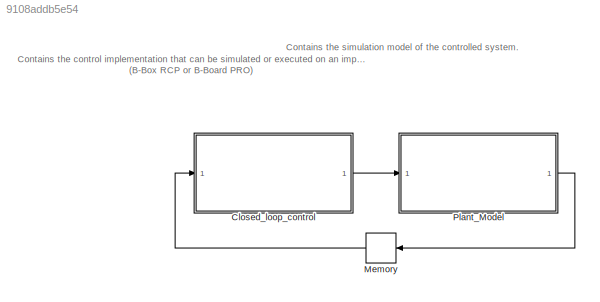
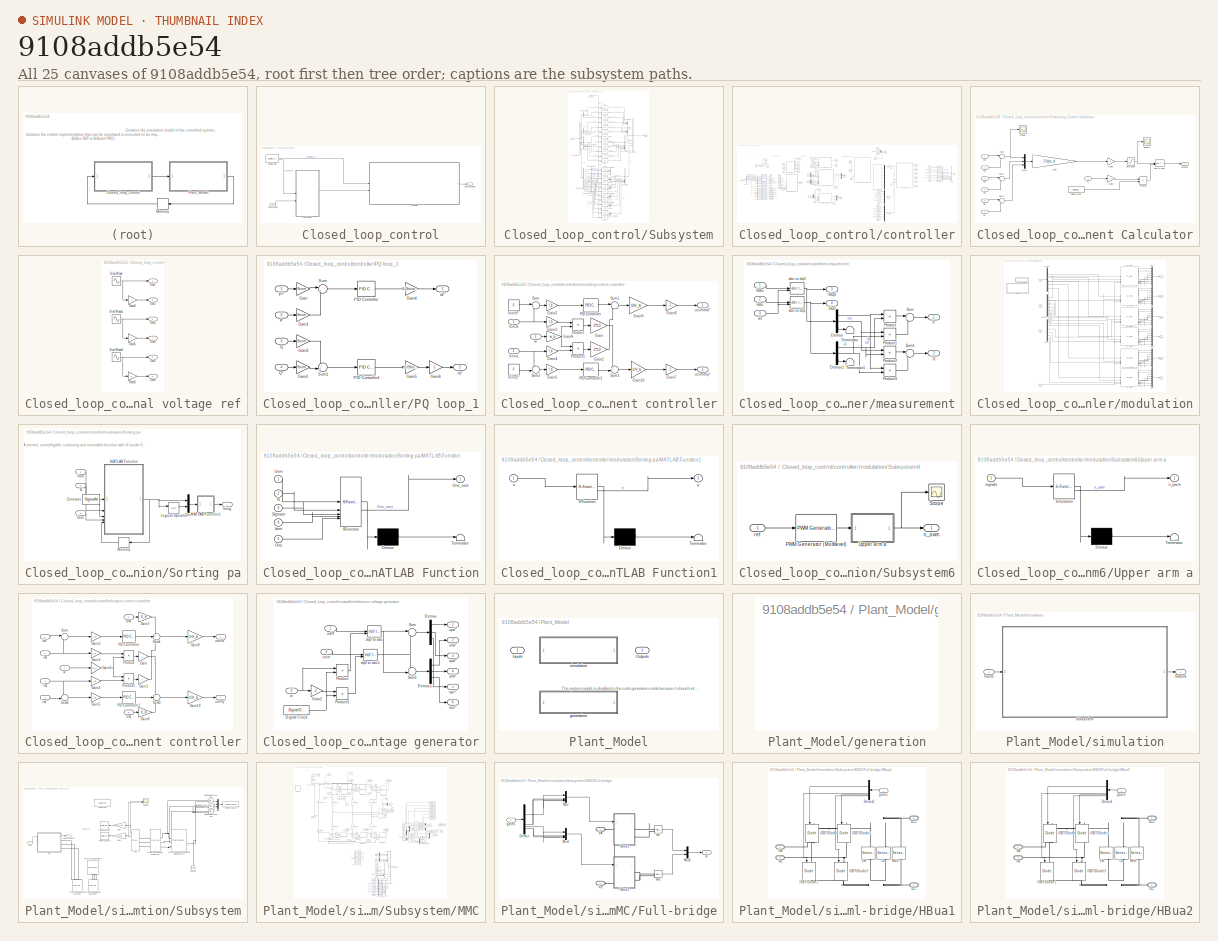
[diagram: thumbnail index - all 25 canvases of the model, root first then tree order]
MODEL slx_9108addb5e54
KIND model
CONFIG AbsTol = auto
CONFIG EnableMultiTasking = on
CONFIG FixedStep = auto
CONFIG InitFcn = % --- DO NOT REMOVE THIS CODE (SDK2024.3) ---\n    % check SDK version\n    required_lib_version = 3900.3;\n    required_lib_ver_str = '2024.3';\n    lib_path = [getenv('IX_SIMULINK_ACG_BB_3') '\simulink\blocks\BoomBox.slx'];\n    if exist(lib_path, 'file')\n        lib_version = str2double(Simulink.MDLInfo(lib_path).ModelVersion); % fullpath to avoid getting shadowing files\n        if lib_version < req...<+1809ch>
CONFIG MaxStep = auto
CONFIG MinStep = auto
CONFIG PostLoadFcn = % --- DO NOT REMOVE THIS CODE (SDK2024.3) ---\n    % change the execution mode of simulink depending on the radio button:\n    if(strcmp('Automated Code Generation',get_param(Find_imperix_blocks(bdroot,'Configuration'),'SLMODE')))\n        assignin('base', 'SIMULINK_MODE', 1);\n    else\n        assignin('base', 'SIMULINK_MODE', 0);\n    end\n\n    Model_PostLoadFcn(bdroot);\n% --- PLACE YOUR CODE BELOW TH...<+16ch>
CONFIG PreLoadFcn = % --- DO NOT REMOVE THIS CODE (SDK2024.3) ---\n    % create Simulink variants\n    if not(exist('variant_simulation', 'var'))\n        variant_simulation = Simulink.Variant('SIMULINK_MODE==0');\n    end\n    if not(exist('variant_generation', 'var'))\n        variant_generation = Simulink.Variant('SIMULINK_MODE==1');\n    end\n\n    % check SDK version\n    required_lib_version = 3900.3;\n    required_lib_ve...<+2549ch>
CONFIG RelTol = 1e-3
CONFIG SampleTimeConstraint = Unconstrained
CONFIG SolverName = VariableStepAuto
CONFIG StartTime = 0.0
CONFIG StopTime = 5
WORKSPACE source: mxarray member
WORKSPACE CTRLPERIOD = [4e-06 2e-06]
WORKSPACE TSAMPLE = 2e-06
WORKSPACE global_CLK_number = 0
WORKSPACE global_INT_number = 1
WORKSPACE global_SVM_instance_id = 0
WORKSPACE global_comp_time = 0.2
WORKSPACE global_cycle_delay = 8e-07
WORKSPACE imperix_block_list: object (value not decoded)
BLOCK [SubSystem] Closed_loop_control
  Priority = -10000
BLOCK [Reference] Closed_loop_control/Configuration  REF=BoomBox/Configuration
  Description = Please leave the Priority (below parameter) to maximum negative to ensure that this block is always executed first.
  Priority = -99999
  SourceBlock = BoomBox/Configuration
  SourceProductName = Imperix Control
  SourceType = Configuration
BLOCK [Inport] Closed_loop_control/Control_inputs
BLOCK [Outport] Closed_loop_control/Control_outputs
BLOCK [SubSystem] Closed_loop_control/Subsystem
BLOCK [Reference] Closed_loop_control/Subsystem/ADC  REF=BoomBox/ADC
  SourceBlock = BoomBox/ADC
  SourceProductName = Imperix Control
  SourceType = ADC
BLOCK [Reference] Closed_loop_control/Subsystem/ADC1  REF=BoomBox/ADC
  SourceBlock = BoomBox/ADC
  SourceProductName = Imperix Control
  SourceType = ADC
BLOCK [Reference] Closed_loop_control/Subsystem/ADC10  REF=BoomBox/ADC
  SourceBlock = BoomBox/ADC
  SourceProductName = Imperix Control
  SourceType = ADC
BLOCK [Reference] Closed_loop_control/Subsystem/ADC11  REF=BoomBox/ADC
  SourceBlock = BoomBox/ADC
  SourceProductName = Imperix Control
  SourceType = ADC
BLOCK [Reference] Closed_loop_control/Subsystem/ADC12  REF=BoomBox/ADC
  SourceBlock = BoomBox/ADC
  SourceProductName = Imperix Control
  SourceType = ADC
BLOCK [Reference] Closed_loop_control/Subsystem/ADC13  REF=BoomBox/ADC
  SourceBlock = BoomBox/ADC
  SourceProductName = Imperix Control
  SourceType = ADC
BLOCK [Reference] Closed_loop_control/Subsystem/ADC14  REF=BoomBox/ADC
  SourceBlock = BoomBox/ADC
  SourceProductName = Imperix Control
  SourceType = ADC
BLOCK [Reference] Closed_loop_control/Subsystem/ADC15  REF=BoomBox/ADC
  SourceBlock = BoomBox/ADC
  SourceProductName = Imperix Control
  SourceType = ADC
BLOCK [Reference] Closed_loop_control/Subsystem/ADC16  REF=BoomBox/ADC
  SourceBlock = BoomBox/ADC
  SourceProductName = Imperix Control
  SourceType = ADC
BLOCK [Reference] Closed_loop_control/Subsystem/ADC17  REF=BoomBox/ADC
  SourceBlock = BoomBox/ADC
  SourceProductName = Imperix Control
  SourceType = ADC
BLOCK [Reference] Closed_loop_control/Subsystem/ADC18  REF=BoomBox/ADC
  SourceBlock = BoomBox/ADC
  SourceProductName = Imperix Control
  SourceType = ADC
BLOCK [Reference] Closed_loop_control/Subsystem/ADC19  REF=BoomBox/ADC
  SourceBlock = BoomBox/ADC
  SourceProductName = Imperix Control
  SourceType = ADC
BLOCK [Reference] Closed_loop_control/Subsystem/ADC2  REF=BoomBox/ADC
  SourceBlock = BoomBox/ADC
  SourceProductName = Imperix Control
  SourceType = ADC
BLOCK [Reference] Closed_loop_control/Subsystem/ADC20  REF=BoomBox/ADC
  SourceBlock = BoomBox/ADC
  SourceProductName = Imperix Control
  SourceType = ADC
BLOCK [Reference] Closed_loop_control/Subsystem/ADC21  REF=BoomBox/ADC
  SourceBlock = BoomBox/ADC
  SourceProductName = Imperix Control
  SourceType = ADC
BLOCK [Reference] Closed_loop_control/Subsystem/ADC22  REF=BoomBox/ADC
  SourceBlock = BoomBox/ADC
  SourceProductName = Imperix Control
  SourceType = ADC
BLOCK [Reference] Closed_loop_control/Subsystem/ADC23  REF=BoomBox/ADC
  SourceBlock = BoomBox/ADC
  SourceProductName = Imperix Control
  SourceType = ADC
BLOCK [Reference] Closed_loop_control/Subsystem/ADC3  REF=BoomBox/ADC
  SourceBlock = BoomBox/ADC
  SourceProductName = Imperix Control
  SourceType = ADC
BLOCK [Reference] Closed_loop_control/Subsystem/ADC4  REF=BoomBox/ADC
  SourceBlock = BoomBox/ADC
  SourceProductName = Imperix Control
  SourceType = ADC
BLOCK [Reference] Closed_loop_control/Subsystem/ADC5  REF=BoomBox/ADC
  SourceBlock = BoomBox/ADC
  SourceProductName = Imperix Control
  SourceType = ADC
BLOCK [Reference] Closed_loop_control/Subsystem/ADC6  REF=BoomBox/ADC
  SourceBlock = BoomBox/ADC
  SourceProductName = Imperix Control
  SourceType = ADC
BLOCK [Reference] Closed_loop_control/Subsystem/ADC7  REF=BoomBox/ADC
  SourceBlock = BoomBox/ADC
  SourceProductName = Imperix Control
  SourceType = ADC
BLOCK [Reference] Closed_loop_control/Subsystem/ADC8  REF=BoomBox/ADC
  SourceBlock = BoomBox/ADC
  SourceProductName = Imperix Control
  SourceType = ADC
BLOCK [Reference] Closed_loop_control/Subsystem/ADC9  REF=BoomBox/ADC
  SourceBlock = BoomBox/ADC
  SourceProductName = Imperix Control
  SourceType = ADC
BLOCK [Inport] Closed_loop_control/Subsystem/ADC_CLK
BLOCK [BusCreator] Closed_loop_control/Subsystem/Bus Creator
  DisplayOption = bar
  InheritFromInputs = on
  Inputs = 4
BLOCK [BusCreator] Closed_loop_control/Subsystem/Bus Creator1
  DisplayOption = bar
  InheritFromInputs = on
  Inputs = 6
BLOCK [BusCreator] Closed_loop_control/Subsystem/Bus Creator10
  DisplayOption = bar
  InheritFromInputs = on
  Inputs = 2
BLOCK [BusCreator] Closed_loop_control/Subsystem/Bus Creator2
  DisplayOption = bar
  InheritFromInputs = on
  Inputs = 6
BLOCK [BusCreator] Closed_loop_control/Subsystem/Bus Creator3
  DisplayOption = bar
  InheritFromInputs = on
  Inputs = 3
BLOCK [BusCreator] Closed_loop_control/Subsystem/Bus Creator4
  DisplayOption = bar
  InheritFromInputs = on
  Inputs = 3
BLOCK [BusCreator] Closed_loop_control/Subsystem/Bus Creator5
  DisplayOption = bar
  InheritFromInputs = on
  Inputs = 2
BLOCK [BusCreator] Closed_loop_control/Subsystem/Bus Creator6
  DisplayOption = bar
  InheritFromInputs = on
  Inputs = 2
BLOCK [BusCreator] Closed_loop_control/Subsystem/Bus Creator7
  DisplayOption = bar
  InheritFromInputs = on
  Inputs = 2
BLOCK [BusCreator] Closed_loop_control/Subsystem/Bus Creator8
  DisplayOption = bar
  InheritFromInputs = on
  Inputs = 2
BLOCK [BusCreator] Closed_loop_control/Subsystem/Bus Creator9
  DisplayOption = bar
  InheritFromInputs = on
  Inputs = 2
BLOCK [BusSelector] Closed_loop_control/Subsystem/Bus Selector
  OutputSignals = Vabc,Iabc,Iarm,Usm
BLOCK [BusSelector] Closed_loop_control/Subsystem/Bus Selector1
  OutputSignals = Ipa,Ina,Ipb,Inb,Ipc,Inc
BLOCK [BusSelector] Closed_loop_control/Subsystem/Bus Selector10
  OutputSignals = Usmcn1,Usmcn2
BLOCK [BusSelector] Closed_loop_control/Subsystem/Bus Selector2
  OutputSignals = Usmap,Usman,Usmbp,Usmbn,Usmcp,Usmcn
BLOCK [BusSelector] Closed_loop_control/Subsystem/Bus Selector3
  OutputSignals = Va,Vb,Vc
BLOCK [BusSelector] Closed_loop_control/Subsystem/Bus Selector4
  OutputSignals = Ia,Ib,Ic
BLOCK [BusSelector] Closed_loop_control/Subsystem/Bus Selector5
  OutputSignals = Usmap1,Usmap2
BLOCK [BusSelector] Closed_loop_control/Subsystem/Bus Selector6
  OutputSignals = Usman1,Usman2
BLOCK [BusSelector] Closed_loop_control/Subsystem/Bus Selector7
  OutputSignals = Usmbp1,Usmbp2
BLOCK [BusSelector] Closed_loop_control/Subsystem/Bus Selector8
  OutputSignals = Usmbn1,Usmbn2
BLOCK [BusSelector] Closed_loop_control/Subsystem/Bus Selector9
  OutputSignals = Usmcp1,Usmcp2
BLOCK [Inport] Closed_loop_control/Subsystem/In2
  Port = 2
BLOCK [Outport] Closed_loop_control/Subsystem/Out1
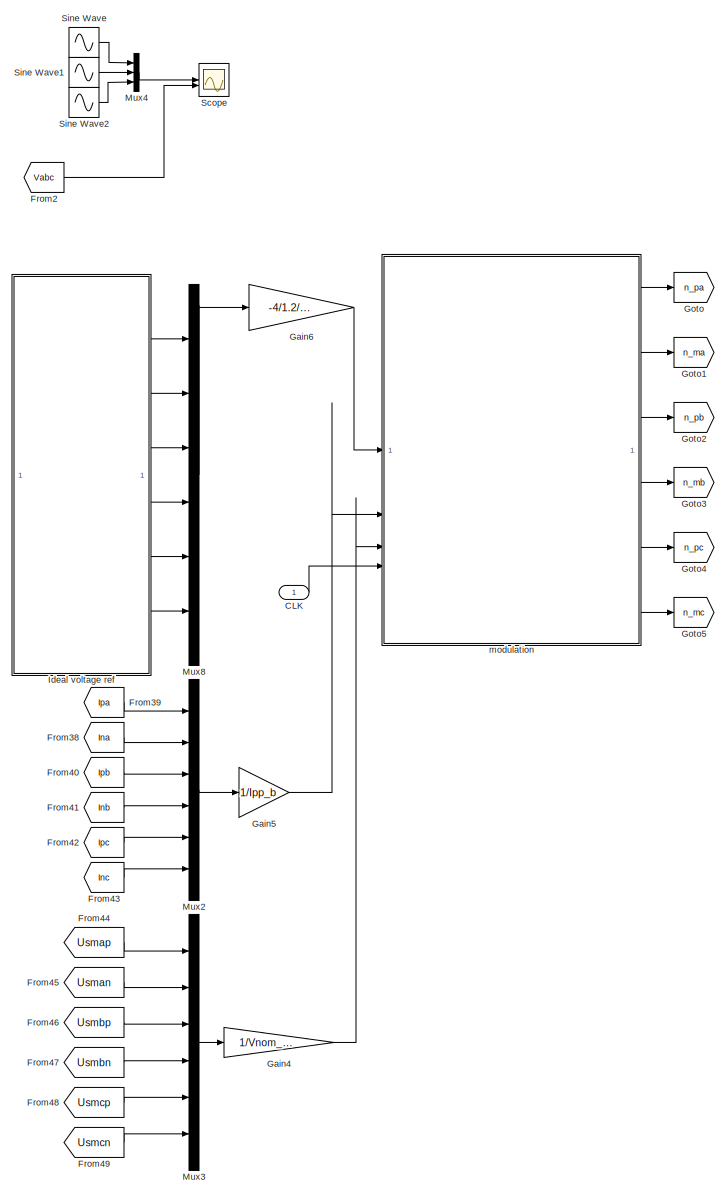
[diagram: Closed_loop_control/controller - part 1/4, right side, full height]
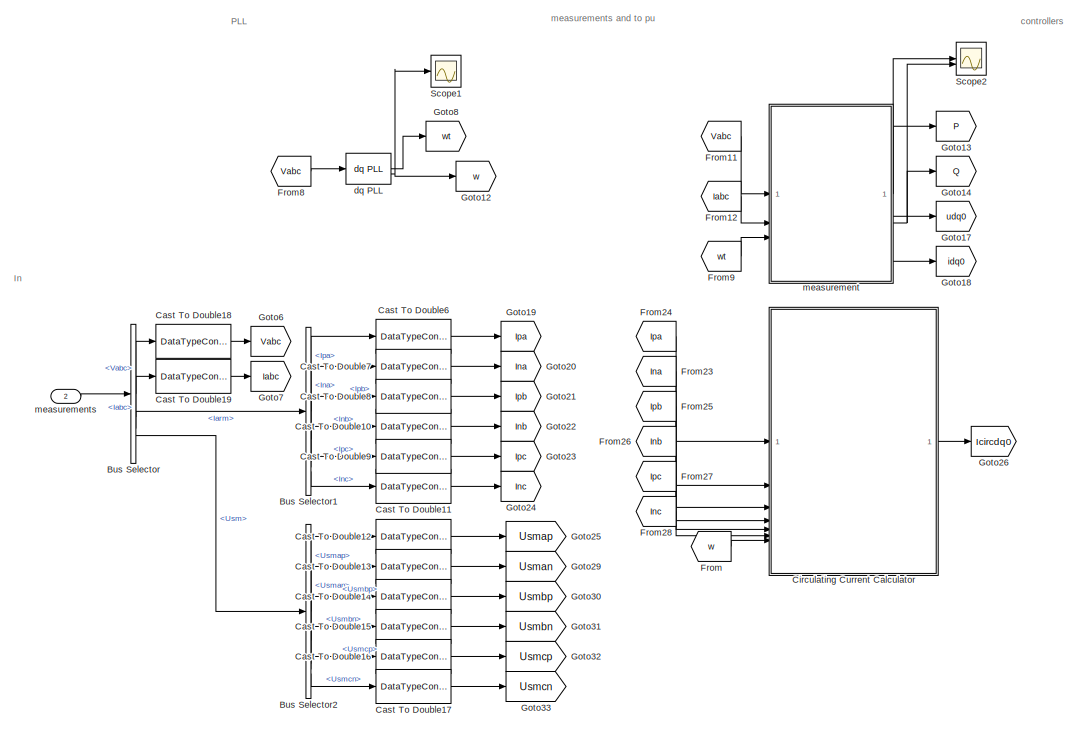
[diagram: Closed_loop_control/controller - part 2/4, middle left region]
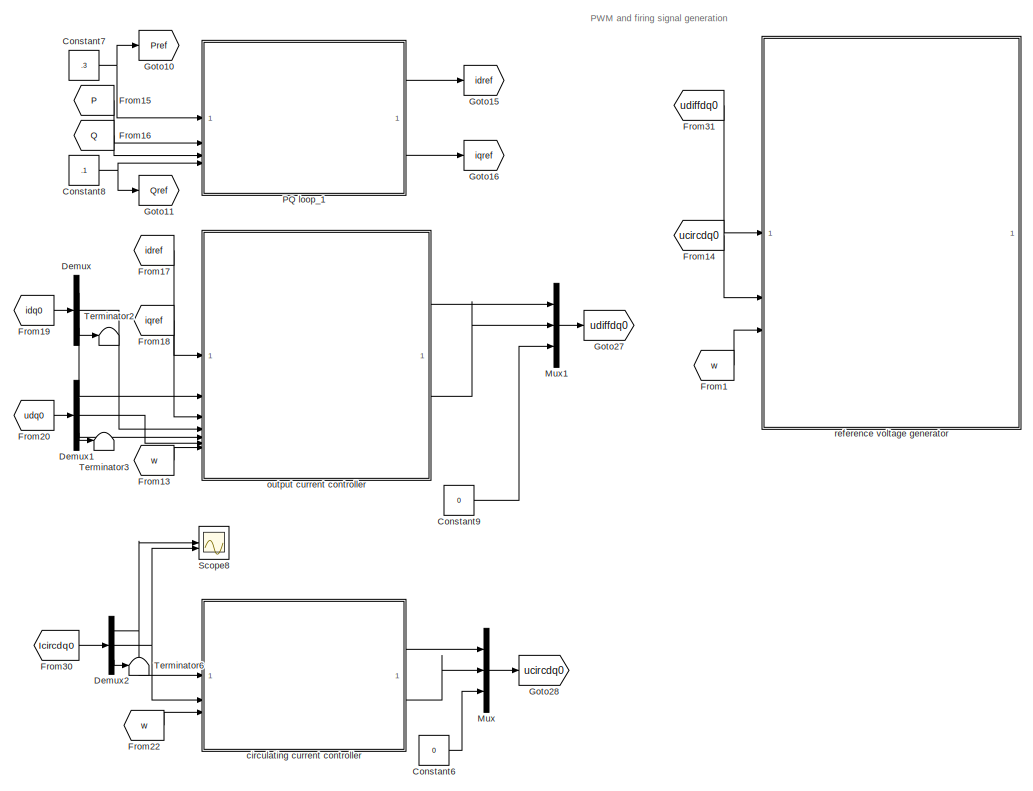
[diagram: Closed_loop_control/controller - part 3/4, central region]
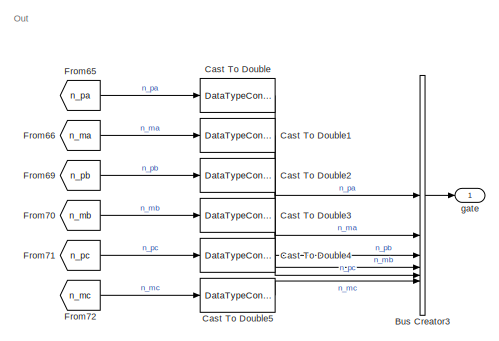
[diagram: Closed_loop_control/controller - part 4/4, middle right region]
BLOCK [SubSystem] Closed_loop_control/controller
BLOCK [BusCreator] Closed_loop_control/controller/Bus Creator3
  DisplayOption = bar
  InheritFromInputs = on
  Inputs = 6
BLOCK [BusSelector] Closed_loop_control/controller/Bus Selector
  OutputSignals = Vabc,Iabc,Iarm,Usm
BLOCK [BusSelector] Closed_loop_control/controller/Bus Selector1
  OutputSignals = Ipa,Ina,Ipb,Inb,Ipc,Inc
BLOCK [BusSelector] Closed_loop_control/controller/Bus Selector2
  OutputSignals = Usmap,Usman,Usmbp,Usmbn,Usmcp,Usmcn
BLOCK [Inport] Closed_loop_control/controller/CLK
BLOCK [DataTypeConversion] Closed_loop_control/controller/Cast To Double
  OutDataTypeStr = double
  RndMeth = Floor
  SaturateOnIntegerOverflow = off
BLOCK [DataTypeConversion] Closed_loop_control/controller/Cast To Double1
  OutDataTypeStr = double
  RndMeth = Floor
  SaturateOnIntegerOverflow = off
BLOCK [DataTypeConversion] Closed_loop_control/controller/Cast To Double10
  OutDataTypeStr = double
  RndMeth = Floor
  SaturateOnIntegerOverflow = off
BLOCK [DataTypeConversion] Closed_loop_control/controller/Cast To Double11
  OutDataTypeStr = double
  RndMeth = Floor
  SaturateOnIntegerOverflow = off
BLOCK [DataTypeConversion] Closed_loop_control/controller/Cast To Double12
  OutDataTypeStr = double
  RndMeth = Floor
  SaturateOnIntegerOverflow = off
BLOCK [DataTypeConversion] Closed_loop_control/controller/Cast To Double13
  OutDataTypeStr = double
  RndMeth = Floor
  SaturateOnIntegerOverflow = off
BLOCK [DataTypeConversion] Closed_loop_control/controller/Cast To Double14
  OutDataTypeStr = double
  RndMeth = Floor
  SaturateOnIntegerOverflow = off
BLOCK [DataTypeConversion] Closed_loop_control/controller/Cast To Double15
  OutDataTypeStr = double
  RndMeth = Floor
  SaturateOnIntegerOverflow = off
BLOCK [DataTypeConversion] Closed_loop_control/controller/Cast To Double16
  OutDataTypeStr = double
  RndMeth = Floor
  SaturateOnIntegerOverflow = off
BLOCK [DataTypeConversion] Closed_loop_control/controller/Cast To Double17
  OutDataTypeStr = double
  RndMeth = Floor
  SaturateOnIntegerOverflow = off
BLOCK [DataTypeConversion] Closed_loop_control/controller/Cast To Double18
  OutDataTypeStr = double
  RndMeth = Floor
  SaturateOnIntegerOverflow = off
BLOCK [DataTypeConversion] Closed_loop_control/controller/Cast To Double19
  OutDataTypeStr = double
  RndMeth = Floor
  SaturateOnIntegerOverflow = off
BLOCK [DataTypeConversion] Closed_loop_control/controller/Cast To Double2
  OutDataTypeStr = double
  RndMeth = Floor
  SaturateOnIntegerOverflow = off
BLOCK [DataTypeConversion] Closed_loop_control/controller/Cast To Double3
  OutDataTypeStr = double
  RndMeth = Floor
  SaturateOnIntegerOverflow = off
BLOCK [DataTypeConversion] Closed_loop_control/controller/Cast To Double4
  OutDataTypeStr = double
  RndMeth = Floor
  SaturateOnIntegerOverflow = off
BLOCK [DataTypeConversion] Closed_loop_control/controller/Cast To Double5
  OutDataTypeStr = double
  RndMeth = Floor
  SaturateOnIntegerOverflow = off
BLOCK [DataTypeConversion] Closed_loop_control/controller/Cast To Double6
  OutDataTypeStr = double
  RndMeth = Floor
  SaturateOnIntegerOverflow = off
BLOCK [DataTypeConversion] Closed_loop_control/controller/Cast To Double7
  OutDataTypeStr = double
  RndMeth = Floor
  SaturateOnIntegerOverflow = off
BLOCK [DataTypeConversion] Closed_loop_control/controller/Cast To Double8
  OutDataTypeStr = double
  RndMeth = Floor
  SaturateOnIntegerOverflow = off
BLOCK [DataTypeConversion] Closed_loop_control/controller/Cast To Double9
  OutDataTypeStr = double
  RndMeth = Floor
  SaturateOnIntegerOverflow = off
BLOCK [SubSystem] Closed_loop_control/controller/Circulating Current Calculator
BLOCK [DigitalClock] Closed_loop_control/controller/Circulating Current Calculator/Digital Clock
  SampleTime = Ts_Power
BLOCK [Gain] Closed_loop_control/controller/Circulating Current Calculator/Gain
  Gain = 1/Ipp_b
BLOCK [Gain] Closed_loop_control/controller/Circulating Current Calculator/Gain1
  Gain = .5
BLOCK [Gain] Closed_loop_control/controller/Circulating Current Calculator/Gain2
  Gain = -2
BLOCK [Mux] Closed_loop_control/controller/Circulating Current Calculator/Mux1
  DisplayOption = bar
  Inputs = 3
BLOCK [Product] Closed_loop_control/controller/Circulating Current Calculator/Product
BLOCK [Saturate] Closed_loop_control/controller/Circulating Current Calculator/Saturation
  LowerLimit = -1.2
  UpperLimit = 1.2
BLOCK [Scope] Closed_loop_control/controller/Circulating Current Calculator/Scope
  Floating = off
  NumInputPorts = 1
  ScopeSpecificationString = Simulink.scopes.TimeScopeBlockCfg('CurrentConfiguration', extmgr.ConfigurationSet(extmgr.Configuration('Core','General UI',true),extmgr.Configuration('Core','Source UI',true),extmgr.Configuration('Sources','WiredSimulink',true,'DataLoggingVariableName','ScopeData9'),extmgr.Configuration('Visuals','Time Domain',true,'SerializedDisplays',{struct('MinYLimReal','-186.41809','MaxYLimReal','749.99029','...<+1536ch>
BLOCK [Scope] Closed_loop_control/controller/Circulating Current Calculator/Scope1
  Floating = off
  NumInputPorts = 1
  ScopeSpecificationString = Simulink.scopes.TimeScopeBlockCfg('CurrentConfiguration', extmgr.ConfigurationSet(extmgr.Configuration('Core','General UI',true),extmgr.Configuration('Core','Source UI',true),extmgr.Configuration('Sources','WiredSimulink',true,'DataLoggingVariableName','ScopeData2'),extmgr.Configuration('Visuals','Time Domain',true,'SerializedDisplays',{struct('MinYLimReal','-1.5','MaxYLimReal','1.5','YLabelReal',...<+1537ch>
BLOCK [Sum] Closed_loop_control/controller/Circulating Current Calculator/Sum
  Inputs = |++
BLOCK [Sum] Closed_loop_control/controller/Circulating Current Calculator/Sum1
  Inputs = |++
BLOCK [Sum] Closed_loop_control/controller/Circulating Current Calculator/Sum2
  Inputs = |++
BLOCK [Reference] Closed_loop_control/controller/Circulating Current Calculator/abc to dq0  REF=BoomBox/Transformations/abc to dq0
  SourceBlock = BoomBox/Transformations/abc to dq0
  SourceProductName = Imperix Control
  SourceType = abc to dq0 Transformation
BLOCK [Outport] Closed_loop_control/controller/Circulating Current Calculator/icircdq0
BLOCK [Inport] Closed_loop_control/controller/Circulating Current Calculator/ina
  Port = 2
BLOCK [Inport] Closed_loop_control/controller/Circulating Current Calculator/inb
  Port = 4
BLOCK [Inport] Closed_loop_control/controller/Circulating Current Calculator/inc
  Port = 6
BLOCK [Inport] Closed_loop_control/controller/Circulating Current Calculator/ipa
BLOCK [Inport] Closed_loop_control/controller/Circulating Current Calculator/ipb
  Port = 3
BLOCK [Inport] Closed_loop_control/controller/Circulating Current Calculator/ipc
  Port = 5
BLOCK [Inport] Closed_loop_control/controller/Circulating Current Calculator/w
  Port = 7
BLOCK [Constant] Closed_loop_control/controller/Constant6
  Value = 0
BLOCK [Constant] Closed_loop_control/controller/Constant7
  Value = .3
BLOCK [Constant] Closed_loop_control/controller/Constant8
  Value = .1
BLOCK [Constant] Closed_loop_control/controller/Constant9
  Value = 0
BLOCK [Demux] Closed_loop_control/controller/Demux
  Outputs = 3
BLOCK [Demux] Closed_loop_control/controller/Demux1
  Outputs = 3
BLOCK [Demux] Closed_loop_control/controller/Demux2
  Outputs = 3
BLOCK [From] Closed_loop_control/controller/From
  GotoTag = w
BLOCK [From] Closed_loop_control/controller/From1
  GotoTag = w
BLOCK [From] Closed_loop_control/controller/From11
  GotoTag = Vabc
BLOCK [From] Closed_loop_control/controller/From12
  GotoTag = Iabc
BLOCK [From] Closed_loop_control/controller/From13
  GotoTag = w
BLOCK [From] Closed_loop_control/controller/From14
  GotoTag = ucircdq0
BLOCK [From] Closed_loop_control/controller/From15
  GotoTag = P
BLOCK [From] Closed_loop_control/controller/From16
  GotoTag = Q
BLOCK [From] Closed_loop_control/controller/From17
  GotoTag = idref
BLOCK [From] Closed_loop_control/controller/From18
  GotoTag = iqref
BLOCK [From] Closed_loop_control/controller/From19
  GotoTag = idq0
BLOCK [From] Closed_loop_control/controller/From2
  GotoTag = Vabc
BLOCK [From] Closed_loop_control/controller/From20
  GotoTag = udq0
BLOCK [From] Closed_loop_control/controller/From22
  GotoTag = w
BLOCK [From] Closed_loop_control/controller/From23
  GotoTag = Ina
  NameLocation = top
BLOCK [From] Closed_loop_control/controller/From24
  GotoTag = Ipa
  NameLocation = top
BLOCK [From] Closed_loop_control/controller/From25
  GotoTag = Ipb
BLOCK [From] Closed_loop_control/controller/From26
  GotoTag = Inb
BLOCK [From] Closed_loop_control/controller/From27
  GotoTag = Ipc
BLOCK [From] Closed_loop_control/controller/From28
  GotoTag = Inc
BLOCK [From] Closed_loop_control/controller/From30
  GotoTag = Icircdq0
BLOCK [From] Closed_loop_control/controller/From31
  GotoTag = udiffdq0
BLOCK [From] Closed_loop_control/controller/From38
  GotoTag = Ina
  NameLocation = top
BLOCK [From] Closed_loop_control/controller/From39
  GotoTag = Ipa
  NameLocation = top
BLOCK [From] Closed_loop_control/controller/From40
  GotoTag = Ipb
BLOCK [From] Closed_loop_control/controller/From41
  GotoTag = Inb
BLOCK [From] Closed_loop_control/controller/From42
  GotoTag = Ipc
BLOCK [From] Closed_loop_control/controller/From43
  GotoTag = Inc
BLOCK [From] Closed_loop_control/controller/From44
  GotoTag = Usmap
BLOCK [From] Closed_loop_control/controller/From45
  GotoTag = Usman
BLOCK [From] Closed_loop_control/controller/From46
  GotoTag = Usmbp
BLOCK [From] Closed_loop_control/controller/From47
  GotoTag = Usmbn
BLOCK [From] Closed_loop_control/controller/From48
  GotoTag = Usmcp
BLOCK [From] Closed_loop_control/controller/From49
  GotoTag = Usmcn
BLOCK [From] Closed_loop_control/controller/From65
  GotoTag = n_pa
BLOCK [From] Closed_loop_control/controller/From66
  GotoTag = n_ma
BLOCK [From] Closed_loop_control/controller/From69
  GotoTag = n_pb
BLOCK [From] Closed_loop_control/controller/From70
  GotoTag = n_mb
BLOCK [From] Closed_loop_control/controller/From71
  GotoTag = n_pc
BLOCK [From] Closed_loop_control/controller/From72
  GotoTag = n_mc
BLOCK [From] Closed_loop_control/controller/From8
  GotoTag = Vabc
BLOCK [From] Closed_loop_control/controller/From9
  GotoTag = wt
BLOCK [Gain] Closed_loop_control/controller/Gain4
  Gain = 1/Vnom_PM
BLOCK [Gain] Closed_loop_control/controller/Gain5
  Gain = 1/Ipp_b
BLOCK [Gain] Closed_loop_control/controller/Gain6
  Gain = -4/1.2/sqrt(3/2)
BLOCK [Goto] Closed_loop_control/controller/Goto
  GotoTag = n_pa
BLOCK [Goto] Closed_loop_control/controller/Goto1
  GotoTag = n_ma
BLOCK [Goto] Closed_loop_control/controller/Goto10
  GotoTag = Pref
BLOCK [Goto] Closed_loop_control/controller/Goto11
  GotoTag = Qref
BLOCK [Goto] Closed_loop_control/controller/Goto12
  GotoTag = w
BLOCK [Goto] Closed_loop_control/controller/Goto13
  GotoTag = P
BLOCK [Goto] Closed_loop_control/controller/Goto14
  GotoTag = Q
BLOCK [Goto] Closed_loop_control/controller/Goto15
  GotoTag = idref
BLOCK [Goto] Closed_loop_control/controller/Goto16
  GotoTag = iqref
BLOCK [Goto] Closed_loop_control/controller/Goto17
  GotoTag = udq0
BLOCK [Goto] Closed_loop_control/controller/Goto18
  GotoTag = idq0
BLOCK [Goto] Closed_loop_control/controller/Goto19
  GotoTag = Ipa
BLOCK [Goto] Closed_loop_control/controller/Goto2
  GotoTag = n_pb
BLOCK [Goto] Closed_loop_control/controller/Goto20
  GotoTag = Ina
BLOCK [Goto] Closed_loop_control/controller/Goto21
  GotoTag = Ipb
BLOCK [Goto] Closed_loop_control/controller/Goto22
  GotoTag = Inb
BLOCK [Goto] Closed_loop_control/controller/Goto23
  GotoTag = Ipc
BLOCK [Goto] Closed_loop_control/controller/Goto24
  GotoTag = Inc
BLOCK [Goto] Closed_loop_control/controller/Goto25
  GotoTag = Usmap
BLOCK [Goto] Closed_loop_control/controller/Goto26
  GotoTag = Icircdq0
BLOCK [Goto] Closed_loop_control/controller/Goto27
  GotoTag = udiffdq0
BLOCK [Goto] Closed_loop_control/controller/Goto28
  GotoTag = ucircdq0
BLOCK [Goto] Closed_loop_control/controller/Goto29
  GotoTag = Usman
BLOCK [Goto] Closed_loop_control/controller/Goto3
  GotoTag = n_mb
BLOCK [Goto] Closed_loop_control/controller/Goto30
  GotoTag = Usmbp
BLOCK [Goto] Closed_loop_control/controller/Goto31
  GotoTag = Usmbn
BLOCK [Goto] Closed_loop_control/controller/Goto32
  GotoTag = Usmcp
BLOCK [Goto] Closed_loop_control/controller/Goto33
  GotoTag = Usmcn
BLOCK [Goto] Closed_loop_control/controller/Goto4
  GotoTag = n_pc
BLOCK [Goto] Closed_loop_control/controller/Goto5
  GotoTag = n_mc
BLOCK [Goto] Closed_loop_control/controller/Goto6
  GotoTag = Vabc
BLOCK [Goto] Closed_loop_control/controller/Goto7
  GotoTag = Iabc
BLOCK [Goto] Closed_loop_control/controller/Goto8
  GotoTag = wt
BLOCK [SubSystem] Closed_loop_control/controller/Ideal voltage ref
BLOCK [Gain] Closed_loop_control/controller/Ideal voltage ref/Gain4
  Gain = -1
BLOCK [Gain] Closed_loop_control/controller/Ideal voltage ref/Gain5
  Gain = -1
BLOCK [Gain] Closed_loop_control/controller/Ideal voltage ref/Gain6
  Gain = -1
BLOCK [Outport] Closed_loop_control/controller/Ideal voltage ref/Out1
BLOCK [Outport] Closed_loop_control/controller/Ideal voltage ref/Out2
  Port = 2
BLOCK [Outport] Closed_loop_control/controller/Ideal voltage ref/Out3
  Port = 3
BLOCK [Outport] Closed_loop_control/controller/Ideal voltage ref/Out4
  Port = 4
BLOCK [Outport] Closed_loop_control/controller/Ideal voltage ref/Out5
  Port = 5
BLOCK [Outport] Closed_loop_control/controller/Ideal voltage ref/Out6
  Port = 6
BLOCK [Sin] Closed_loop_control/controller/Ideal voltage ref/Sine Wave
  Frequency = 50*2*pi
  SampleTime = Ts_Power
BLOCK [Sin] Closed_loop_control/controller/Ideal voltage ref/Sine Wave1
  Amplitude = 1%Vnom_AC*sqrt(2/3)/Vnom_PM/Nb_PM
  Frequency = 50*2*pi
  Phase = 4*pi/3
  SampleTime = Ts_Power
BLOCK [Sin] Closed_loop_control/controller/Ideal voltage ref/Sine Wave2
  Frequency = 50*2*pi
  Phase = 2*pi/3
  SampleTime = Ts_Power
BLOCK [Mux] Closed_loop_control/controller/Mux
  DisplayOption = bar
  Inputs = 3
BLOCK [Mux] Closed_loop_control/controller/Mux1
  DisplayOption = bar
  Inputs = 3
BLOCK [Mux] Closed_loop_control/controller/Mux2
  DisplayOption = bar
  Inputs = 6
BLOCK [Mux] Closed_loop_control/controller/Mux3
  DisplayOption = bar
  Inputs = 6
BLOCK [Mux] Closed_loop_control/controller/Mux4
  DisplayOption = bar
  Inputs = 3
BLOCK [Mux] Closed_loop_control/controller/Mux8
  DisplayOption = bar
  Inputs = 6
BLOCK [SubSystem] Closed_loop_control/controller/PQ loop_1
BLOCK [Gain] Closed_loop_control/controller/PQ loop_1/Gain
  Commented = through
  Gain = Snom
BLOCK [Gain] Closed_loop_control/controller/PQ loop_1/Gain1
  Commented = through
  Gain = Snom
BLOCK [Gain] Closed_loop_control/controller/PQ loop_1/Gain2
  Commented = through
  Gain = Snom
BLOCK [Gain] Closed_loop_control/controller/PQ loop_1/Gain3
  Commented = through
  Gain = Snom
BLOCK [Gain] Closed_loop_control/controller/PQ loop_1/Gain4
  Commented = through
  Gain = 1/(Snom/Vnom_AC/sqrt(3))
BLOCK [Gain] Closed_loop_control/controller/PQ loop_1/Gain5
  Commented = through
  Gain = -1/(Snom/Vnom_AC/sqrt(3))
BLOCK [Gain] Closed_loop_control/controller/PQ loop_1/Gain6
  Gain = -1
BLOCK [Inport] Closed_loop_control/controller/PQ loop_1/P
  Port = 2
BLOCK [Inport] Closed_loop_control/controller/PQ loop_1/P*
BLOCK [Reference] Closed_loop_control/controller/PQ loop_1/PID Controller  REF=slpidlib/PID Controller
  SourceBlock = slpidlib/PID Controller
  SourceType = PID 1dof
BLOCK [Reference] Closed_loop_control/controller/PQ loop_1/PID Controller1  REF=slpidlib/PID Controller
  SourceBlock = slpidlib/PID Controller
  SourceType = PID 1dof
BLOCK [Inport] Closed_loop_control/controller/PQ loop_1/Q
  Port = 3
BLOCK [Inport] Closed_loop_control/controller/PQ loop_1/Q*
  Port = 4
BLOCK [Sum] Closed_loop_control/controller/PQ loop_1/Sum
  Inputs = |+-
BLOCK [Sum] Closed_loop_control/controller/PQ loop_1/Sum1
  Inputs = -+|
BLOCK [Outport] Closed_loop_control/controller/PQ loop_1/id*
BLOCK [Outport] Closed_loop_control/controller/PQ loop_1/iq*
  Port = 2
BLOCK [Scope] Closed_loop_control/controller/Scope
  Floating = off
  NumInputPorts = 2
  ScopeSpecificationString = Simulink.scopes.TimeScopeBlockCfg('CurrentConfiguration', extmgr.ConfigurationSet(extmgr.Configuration('Core','General UI',true),extmgr.Configuration('Core','Source UI',true),extmgr.Configuration('Sources','WiredSimulink',true,'DataLoggingVariableName','ScopeData2'),extmgr.Configuration('Visuals','Time Domain',true,'SerializedDisplays',{struct('MinYLimReal','-1.25','MaxYLimReal','1.25','YLabelReal...<+2328ch>
BLOCK [Scope] Closed_loop_control/controller/Scope1
  Floating = off
  NumInputPorts = 1
  ScopeSpecificationString = Simulink.scopes.TimeScopeBlockCfg('CurrentConfiguration', extmgr.ConfigurationSet(extmgr.Configuration('Core','General UI',true),extmgr.Configuration('Core','Source UI',true),extmgr.Configuration('Sources','WiredSimulink',true,'DataLoggingVariableName','ScopeData1'),extmgr.Configuration('Visuals','Time Domain',true,'SerializedDisplays',{struct('MinYLimReal','262.93557','MaxYLimReal','360.54262','Y...<+1541ch>
BLOCK [Scope] Closed_loop_control/controller/Scope2
  Floating = off
  NumInputPorts = 2
  ScopeSpecificationString = Simulink.scopes.TimeScopeBlockCfg('CurrentConfiguration', extmgr.ConfigurationSet(extmgr.Configuration('Core','General UI',true),extmgr.Configuration('Core','Source UI',true),extmgr.Configuration('Sources','WiredSimulink',true,'DataLoggingVariableName','ScopeData1'),extmgr.Configuration('Visuals','Time Domain',true,'SerializedDisplays',{struct('MinYLimReal','-10.00000','MaxYLimReal','10.00000','YL...<+1544ch>
BLOCK [Scope] Closed_loop_control/controller/Scope8
  Floating = off
  NumInputPorts = 2
  ScopeSpecificationString = Simulink.scopes.TimeScopeBlockCfg('CurrentConfiguration', extmgr.ConfigurationSet(extmgr.Configuration('Core','General UI',true),extmgr.Configuration('Core','Source UI',true),extmgr.Configuration('Sources','WiredSimulink',true,'DataLoggingVariableName','ScopeData2'),extmgr.Configuration('Visuals','Time Domain',true,'SerializedDisplays',{struct('MinYLimReal','-0.02059','MaxYLimReal','0.03497','YLab...<+1538ch>
BLOCK [Sin] Closed_loop_control/controller/Sine Wave
  Frequency = 50*2*pi
  SampleTime = Ts_Power
BLOCK [Sin] Closed_loop_control/controller/Sine Wave1
  Amplitude = 1%Vnom_AC*sqrt(2/3)/Vnom_PM/Nb_PM
  Frequency = 50*2*pi
  Phase = 4*pi/3
  SampleTime = Ts_Power
BLOCK [Sin] Closed_loop_control/controller/Sine Wave2
  Frequency = 50*2*pi
  Phase = 2*pi/3
  SampleTime = Ts_Power
BLOCK [Terminator] Closed_loop_control/controller/Terminator2
BLOCK [Terminator] Closed_loop_control/controller/Terminator3
BLOCK [Terminator] Closed_loop_control/controller/Terminator6
BLOCK [SubSystem] Closed_loop_control/controller/circulating current controller
BLOCK [Gain] Closed_loop_control/controller/circulating current controller/Gain
  Gain = 2*L0
BLOCK [Gain] Closed_loop_control/controller/circulating current controller/Gain1
  Gain = 2*L0
BLOCK [Gain] Closed_loop_control/controller/circulating current controller/Gain10
  Gain = 1/V_b
BLOCK [Gain] Closed_loop_control/controller/circulating current controller/Gain2
  Gain = I_b
BLOCK [Gain] Closed_loop_control/controller/circulating current controller/Gain3
  Gain = I_b
BLOCK [Gain] Closed_loop_control/controller/circulating current controller/Gain4
  Gain = I_b
BLOCK [Gain] Closed_loop_control/controller/circulating current controller/Gain5
  Gain = I_b
BLOCK [Gain] Closed_loop_control/controller/circulating current controller/Gain6
  Gain = w_b
BLOCK [Gain] Closed_loop_control/controller/circulating current controller/Gain7
  Gain = -1
BLOCK [Gain] Closed_loop_control/controller/circulating current controller/Gain8
  Gain = -1
BLOCK [Gain] Closed_loop_control/controller/circulating current controller/Gain9
  Gain = 1/V_b
BLOCK [Inport] Closed_loop_control/controller/circulating current controller/Icircd
BLOCK [Constant] Closed_loop_control/controller/circulating current controller/Icircd*
  Value = 0
BLOCK [Inport] Closed_loop_control/controller/circulating current controller/Icircq
  Port = 2
BLOCK [Constant] Closed_loop_control/controller/circulating current controller/Icircq*
  Value = 0
BLOCK [Reference] Closed_loop_control/controller/circulating current controller/PID Controller  REF=slpidlib/PID Controller
  SourceBlock = slpidlib/PID Controller
  SourceType = PID 1dof
BLOCK [Reference] Closed_loop_control/controller/circulating current controller/PID Controller1  REF=slpidlib/PID Controller
  SourceBlock = slpidlib/PID Controller
  SourceType = PID 1dof
BLOCK [Product] Closed_loop_control/controller/circulating current controller/Product
BLOCK [Product] Closed_loop_control/controller/circulating current controller/Product1
BLOCK [Sum] Closed_loop_control/controller/circulating current controller/Sum
  Inputs = |+-
BLOCK [Sum] Closed_loop_control/controller/circulating current controller/Sum1
  Inputs = |--
BLOCK [Sum] Closed_loop_control/controller/circulating current controller/Sum2
  Inputs = -+|
BLOCK [Sum] Closed_loop_control/controller/circulating current controller/Sum3
  Inputs = +-|
BLOCK [Outport] Closed_loop_control/controller/circulating current controller/ucommd*
BLOCK [Outport] Closed_loop_control/controller/circulating current controller/ucommq*
  Port = 2
BLOCK [Inport] Closed_loop_control/controller/circulating current controller/w
  Port = 3
BLOCK [Reference] Closed_loop_control/controller/dq PLL  REF=BoomBox/PLLs/dq PLL
  SourceBlock = BoomBox/PLLs/dq PLL
  SourceProductName = Imperix Control
  SourceType = DQ-type PLL
BLOCK [Outport] Closed_loop_control/controller/gate
BLOCK [SubSystem] Closed_loop_control/controller/measurement
BLOCK [Demux] Closed_loop_control/controller/measurement/Demux
  Outputs = 3
BLOCK [Demux] Closed_loop_control/controller/measurement/Demux1
  Outputs = 3
BLOCK [Inport] Closed_loop_control/controller/measurement/Iabc
  NameLocation = left
  Port = 2
BLOCK [Outport] Closed_loop_control/controller/measurement/Idq0
  NameLocation = right
  Port = 4
BLOCK [Outport] Closed_loop_control/controller/measurement/P
  NameLocation = right
BLOCK [Product] Closed_loop_control/controller/measurement/Product
BLOCK [Product] Closed_loop_control/controller/measurement/Product1
BLOCK [Product] Closed_loop_control/controller/measurement/Product2
BLOCK [Product] Closed_loop_control/controller/measurement/Product3
BLOCK [Outport] Closed_loop_control/controller/measurement/Q
  NameLocation = right
  Port = 2
BLOCK [Sum] Closed_loop_control/controller/measurement/Sum
  Inputs = |++
BLOCK [Sum] Closed_loop_control/controller/measurement/Sum1
  Inputs = |+-
BLOCK [Terminator] Closed_loop_control/controller/measurement/Terminator
BLOCK [Terminator] Closed_loop_control/controller/measurement/Terminator1
BLOCK [Inport] Closed_loop_control/controller/measurement/Vabc
  NameLocation = left
BLOCK [Outport] Closed_loop_control/controller/measurement/Vdq0
  NameLocation = right
  Port = 3
BLOCK [Reference] Closed_loop_control/controller/measurement/abc to dq0  REF=BoomBox/Transformations/abc to dq0
  SourceBlock = BoomBox/Transformations/abc to dq0
  SourceProductName = Imperix Control
  SourceType = abc to dq0 Transformation
BLOCK [Reference] Closed_loop_control/controller/measurement/abc to dq1  REF=BoomBox/Transformations/abc to dq0
  SourceBlock = BoomBox/Transformations/abc to dq0
  SourceProductName = Imperix Control
  SourceType = abc to dq0 Transformation
BLOCK [Inport] Closed_loop_control/controller/measurement/wt
  NameLocation = left
  Port = 3
BLOCK [Inport] Closed_loop_control/controller/measurements
  Port = 2
BLOCK [SubSystem] Closed_loop_control/controller/modulation
BLOCK [Inport] Closed_loop_control/controller/modulation/CLK
  Port = 4
BLOCK [Demux] Closed_loop_control/controller/modulation/Demux
  Outputs = 6
BLOCK [Demux] Closed_loop_control/controller/modulation/Demux1
  Outputs = 6
BLOCK [Demux] Closed_loop_control/controller/modulation/Demux2
  Outputs = 6
BLOCK [Inport] Closed_loop_control/controller/modulation/Iarm
  Port = 2
BLOCK [Mux] Closed_loop_control/controller/modulation/Mux3
  DisplayOption = bar
  Inputs = 8
BLOCK [Mux] Closed_loop_control/controller/modulation/Mux4
  DisplayOption = bar
  Inputs = 8
BLOCK [Mux] Closed_loop_control/controller/modulation/Mux5
  DisplayOption = bar
  Inputs = 8
BLOCK [Mux] Closed_loop_control/controller/modulation/Mux6
  DisplayOption = bar
  Inputs = 8
BLOCK [Mux] Closed_loop_control/controller/modulation/Mux7
  DisplayOption = bar
  Inputs = 8
BLOCK [Mux] Closed_loop_control/controller/modulation/Mux8
  DisplayOption = bar
  Inputs = 8
BLOCK [Outport] Closed_loop_control/controller/modulation/Pna
  Port = 2
BLOCK [Outport] Closed_loop_control/controller/modulation/Pnb
  Port = 4
BLOCK [Outport] Closed_loop_control/controller/modulation/Pnc
  Port = 6
BLOCK [Outport] Closed_loop_control/controller/modulation/Ppa
BLOCK [Outport] Closed_loop_control/controller/modulation/Ppb
  Port = 3
BLOCK [Outport] Closed_loop_control/controller/modulation/Ppc
  Port = 5
BLOCK [Reference] Closed_loop_control/controller/modulation/SS_PWM  REF=BoomBox/SS_PWM
  SourceBlock = BoomBox/SS_PWM
  SourceProductName = Imperix Control
  SourceType = Sort and Select PWM
BLOCK [Reference] Closed_loop_control/controller/modulation/SS_PWM1  REF=BoomBox/SS_PWM
  SourceBlock = BoomBox/SS_PWM
  SourceProductName = Imperix Control
  SourceType = Sort and Select PWM
BLOCK [Reference] Closed_loop_control/controller/modulation/SS_PWM2  REF=BoomBox/SS_PWM
  SourceBlock = BoomBox/SS_PWM
  SourceProductName = Imperix Control
  SourceType = Sort and Select PWM
BLOCK [Reference] Closed_loop_control/controller/modulation/SS_PWM3  REF=BoomBox/SS_PWM
  SourceBlock = BoomBox/SS_PWM
  SourceProductName = Imperix Control
  SourceType = Sort and Select PWM
BLOCK [Reference] Closed_loop_control/controller/modulation/SS_PWM4  REF=BoomBox/SS_PWM
  SourceBlock = BoomBox/SS_PWM
  SourceProductName = Imperix Control
  SourceType = Sort and Select PWM
BLOCK [Reference] Closed_loop_control/controller/modulation/SS_PWM5  REF=BoomBox/SS_PWM
  SourceBlock = BoomBox/SS_PWM
  SourceProductName = Imperix Control
  SourceType = Sort and Select PWM
BLOCK [SubSystem] Closed_loop_control/controller/modulation/Sorting pa
  Commented = on
BLOCK [Constant] Closed_loop_control/controller/modulation/Sorting pa/Constant
  Value = SigmaM
BLOCK [Inport] Closed_loop_control/controller/modulation/Sorting pa/Iarm
  Port = 3
BLOCK [Logic] Closed_loop_control/controller/modulation/Sorting pa/Logical Operator
  AllPortsSameDT = off
  Operator = NOT
  OutDataTypeStr = float('double')
BLOCK [SubSystem] Closed_loop_control/controller/modulation/Sorting pa/MATLAB Function
  ErrorFcn = Stateflow.Translate.translate
  PermitHierarchicalResolution = ExplicitOnly
  SFBlockType = MATLAB Function
  TreatAsAtomicUnit = on
BLOCK [Demux] Closed_loop_control/controller/modulation/Sorting pa/MATLAB Function/ Demux 
  Outputs = 1
BLOCK [S-Function] Closed_loop_control/controller/modulation/Sorting pa/MATLAB Function/ SFunction 
  EnableBusSupport = on
  FunctionName = sf_sfun
  PortCounts = [5 2]
  SFcnIsStateOwnerBlock = off
  SFunctionDeploymentMode = off
  Tag = Stateflow S-Function 7
BLOCK [Terminator] Closed_loop_control/controller/modulation/Sorting pa/MATLAB Function/ Terminator 
BLOCK [Inport] Closed_loop_control/controller/modulation/Sorting pa/MATLAB Function/Iarm
  Port = 4
BLOCK [Inport] Closed_loop_control/controller/modulation/Sorting pa/MATLAB Function/N
  Port = 2
BLOCK [Inport] Closed_loop_control/controller/modulation/Sorting pa/MATLAB Function/Ons
  Port = 5
BLOCK [Outport] Closed_loop_control/controller/modulation/Sorting pa/MATLAB Function/Ons_next
BLOCK [Inport] Closed_loop_control/controller/modulation/Sorting pa/MATLAB Function/Sigmam
  Port = 3
BLOCK [Inport] Closed_loop_control/controller/modulation/Sorting pa/MATLAB Function/Usm
BLOCK [SubSystem] Closed_loop_control/controller/modulation/Sorting pa/MATLAB Function1
  ErrorFcn = Stateflow.Translate.translate
  PermitHierarchicalResolution = ExplicitOnly
  SFBlockType = MATLAB Function
  TreatAsAtomicUnit = on
BLOCK [Demux] Closed_loop_control/controller/modulation/Sorting pa/MATLAB Function1/ Demux 
  Outputs = 1
BLOCK [S-Function] Closed_loop_control/controller/modulation/Sorting pa/MATLAB Function1/ SFunction 
  EnableBusSupport = on
  FunctionName = sf_sfun
  PortCounts = [1 2]
  SFcnIsStateOwnerBlock = off
  SFunctionDeploymentMode = off
  Tag = Stateflow S-Function 8
BLOCK [Terminator] Closed_loop_control/controller/modulation/Sorting pa/MATLAB Function1/ Terminator 
BLOCK [Inport] Closed_loop_control/controller/modulation/Sorting pa/MATLAB Function1/u
BLOCK [Outport] Closed_loop_control/controller/modulation/Sorting pa/MATLAB Function1/y
BLOCK [Memory] Closed_loop_control/controller/modulation/Sorting pa/Memory
  InheritSampleTime = on
  InitialCondition = logical(zeros(Nb_PM, 1))
  NameLocation = top
BLOCK [Mux] Closed_loop_control/controller/modulation/Sorting pa/Mux
  DisplayOption = bar
  Inputs = 2
BLOCK [Inport] Closed_loop_control/controller/modulation/Sorting pa/N
  Port = 2
BLOCK [Inport] Closed_loop_control/controller/modulation/Sorting pa/Usm
BLOCK [Outport] Closed_loop_control/controller/modulation/Sorting pa/firing
BLOCK [SubSystem] Closed_loop_control/controller/modulation/Subsystem6
  Commented = on
BLOCK [Reference] Closed_loop_control/controller/modulation/Subsystem6/PWM Generator (Multilevel)  REF=eePwmGeneratorMultilevel/PWM Generator
(Multilevel)
  SourceBlock = eePwmGeneratorMultilevel/PWM Generator\n(Multilevel)
  SourceType = PWM Generator (Multilevel)
BLOCK [Scope] Closed_loop_control/controller/modulation/Subsystem6/Scope
  Floating = off
  NumInputPorts = 1
  ScopeSpecificationString = Simulink.scopes.TimeScopeBlockCfg('CurrentConfiguration', extmgr.ConfigurationSet(extmgr.Configuration('Core','General UI',true),extmgr.Configuration('Core','Source UI',true),extmgr.Configuration('Sources','WiredSimulink',true,'DataLoggingVariableName','ScopeData1'),extmgr.Configuration('Visuals','Time Domain',true,'SerializedDisplays',{struct('MinYLimReal','-2.5','MaxYLimReal','22.5','YLabelReal'...<+1539ch>
BLOCK [SubSystem] Closed_loop_control/controller/modulation/Subsystem6/Upper arm a
  ErrorFcn = Stateflow.Translate.translate
  PermitHierarchicalResolution = ExplicitOnly
  SFBlockType = MATLAB Function
  TreatAsAtomicUnit = on
BLOCK [Demux] Closed_loop_control/controller/modulation/Subsystem6/Upper arm a/ Demux 
  Outputs = 1
BLOCK [S-Function] Closed_loop_control/controller/modulation/Subsystem6/Upper arm a/ SFunction 
  EnableBusSupport = on
  FunctionName = sf_sfun
  PortCounts = [1 2]
  SFcnIsStateOwnerBlock = off
  SFunctionDeploymentMode = off
  Tag = Stateflow S-Function 11
BLOCK [Terminator] Closed_loop_control/controller/modulation/Subsystem6/Upper arm a/ Terminator 
BLOCK [Outport] Closed_loop_control/controller/modulation/Subsystem6/Upper arm a/n_pwm
BLOCK [Inport] Closed_loop_control/controller/modulation/Subsystem6/Upper arm a/signals
BLOCK [Outport] Closed_loop_control/controller/modulation/Subsystem6/n_pwm
BLOCK [Inport] Closed_loop_control/controller/modulation/Subsystem6/ref
BLOCK [Inport] Closed_loop_control/controller/modulation/U*
BLOCK [Inport] Closed_loop_control/controller/modulation/Usm
  Port = 3
BLOCK [SubSystem] Closed_loop_control/controller/output current controller
BLOCK [Gain] Closed_loop_control/controller/output current controller/Gain
  Gain = L
BLOCK [Gain] Closed_loop_control/controller/output current controller/Gain1
  Gain = L
BLOCK [Gain] Closed_loop_control/controller/output current controller/Gain10
  Gain = 1/V_b
BLOCK [Gain] Closed_loop_control/controller/output current controller/Gain2
  Gain = I_b
BLOCK [Gain] Closed_loop_control/controller/output current controller/Gain3
  Gain = I_b
BLOCK [Gain] Closed_loop_control/controller/output current controller/Gain4
  Gain = I_b
BLOCK [Gain] Closed_loop_control/controller/output current controller/Gain5
  Gain = I_b
BLOCK [Gain] Closed_loop_control/controller/output current controller/Gain6
  Gain = w_b
BLOCK [Gain] Closed_loop_control/controller/output current controller/Gain7
  Gain = V_b
BLOCK [Gain] Closed_loop_control/controller/output current controller/Gain8
  Gain = V_b
BLOCK [Gain] Closed_loop_control/controller/output current controller/Gain9
  Gain = 1/V_b
BLOCK [Reference] Closed_loop_control/controller/output current controller/PID Controller  REF=slpidlib/PID Controller
  SourceBlock = slpidlib/PID Controller
  SourceType = PID 1dof
BLOCK [Reference] Closed_loop_control/controller/output current controller/PID Controller1  REF=slpidlib/PID Controller
  SourceBlock = slpidlib/PID Controller
  SourceType = PID 1dof
BLOCK [Product] Closed_loop_control/controller/output current controller/Product
BLOCK [Product] Closed_loop_control/controller/output current controller/Product1
BLOCK [Sum] Closed_loop_control/controller/output current controller/Sum
  Inputs = |+-
BLOCK [Sum] Closed_loop_control/controller/output current controller/Sum1
  Inputs = ++-
BLOCK [Sum] Closed_loop_control/controller/output current controller/Sum2
  Inputs = -+|
BLOCK [Sum] Closed_loop_control/controller/output current controller/Sum3
  Inputs = +++
BLOCK [Inport] Closed_loop_control/controller/output current controller/ivd
  Port = 2
BLOCK [Inport] Closed_loop_control/controller/output current controller/ivd*
BLOCK [Inport] Closed_loop_control/controller/output current controller/ivq
  Port = 4
BLOCK [Inport] Closed_loop_control/controller/output current controller/ivq*
  Port = 3
BLOCK [Outport] Closed_loop_control/controller/output current controller/udiffd*
BLOCK [Outport] Closed_loop_control/controller/output current controller/udiffq*
  Port = 2
BLOCK [Inport] Closed_loop_control/controller/output current controller/uvd
  Port = 5
BLOCK [Inport] Closed_loop_control/controller/output current controller/uvq
  Port = 6
BLOCK [Inport] Closed_loop_control/controller/output current controller/w
  Port = 7
BLOCK [SubSystem] Closed_loop_control/controller/reference voltage generator
BLOCK [Demux] Closed_loop_control/controller/reference voltage generator/Demux
  Outputs = 3
BLOCK [Demux] Closed_loop_control/controller/reference voltage generator/Demux1
  Outputs = 3
BLOCK [DigitalClock] Closed_loop_control/controller/reference voltage generator/Digital Clock
  SampleTime = Ts_Power
BLOCK [Gain] Closed_loop_control/controller/reference voltage generator/Gain2
  Gain = -2
BLOCK [Product] Closed_loop_control/controller/reference voltage generator/Product
BLOCK [Product] Closed_loop_control/controller/reference voltage generator/Product1
BLOCK [Sum] Closed_loop_control/controller/reference voltage generator/Sum
  Inputs = |++
BLOCK [Sum] Closed_loop_control/controller/reference voltage generator/Sum1
  Inputs = +-|
BLOCK [Reference] Closed_loop_control/controller/reference voltage generator/dq0 to abc  REF=BoomBox/Transformations/dq0 to abc
  SourceBlock = BoomBox/Transformations/dq0 to abc
  SourceProductName = Imperix Control
  SourceType = dq0 to abc Transformation
BLOCK [Reference] Closed_loop_control/controller/reference voltage generator/dq0 to abc1  REF=BoomBox/Transformations/dq0 to abc
  SourceBlock = BoomBox/Transformations/dq0 to abc
  SourceProductName = Imperix Control
  SourceType = dq0 to abc Transformation
BLOCK [Inport] Closed_loop_control/controller/reference voltage generator/ucirc
  Port = 2
BLOCK [Inport] Closed_loop_control/controller/reference voltage generator/udiff
BLOCK [Outport] Closed_loop_control/controller/reference voltage generator/una*
  Port = 2
BLOCK [Outport] Closed_loop_control/controller/reference voltage generator/unb*
  Port = 4
BLOCK [Outport] Closed_loop_control/controller/reference voltage generator/unc*
  Port = 6
BLOCK [Outport] Closed_loop_control/controller/reference voltage generator/upa*
BLOCK [Outport] Closed_loop_control/controller/reference voltage generator/upb*
  Port = 3
BLOCK [Outport] Closed_loop_control/controller/reference voltage generator/upc*
  Port = 5
BLOCK [Inport] Closed_loop_control/controller/reference voltage generator/w
  Port = 3
BLOCK [Memory] Memory
  NameLocation = top
BLOCK [SubSystem] Plant_Model
  Variant = on
BLOCK [Inport] Plant_Model/Inputs
BLOCK [Outport] Plant_Model/Outputs
BLOCK [SubSystem] Plant_Model/generation
  Permissions = NoReadOrWrite
  TreatAsAtomicUnit = on
  VariantControl = variant_generation
BLOCK [SubSystem] Plant_Model/simulation
  TreatAsAtomicUnit = on
  VariantControl = variant_simulation
BLOCK [Inport] Plant_Model/simulation/Inputs
BLOCK [Outport] Plant_Model/simulation/Outputs
BLOCK [SubSystem] Plant_Model/simulation/Subsystem
BLOCK [Gain] Plant_Model/simulation/Subsystem/Gain
  Gain = [1 -1 0]
  Multiplication = Matrix(K*u)
  NameLocation = top
BLOCK [Gain] Plant_Model/simulation/Subsystem/Gain1
  Gain = [1 0 0]
  Multiplication = Matrix(K*u)
  NameLocation = top
BLOCK [Reference] Plant_Model/simulation/Subsystem/Ground  REF=spsGroundLib/Ground
  NameLocation = right
  SourceBlock = spsGroundLib/Ground
  SourceType = Ground
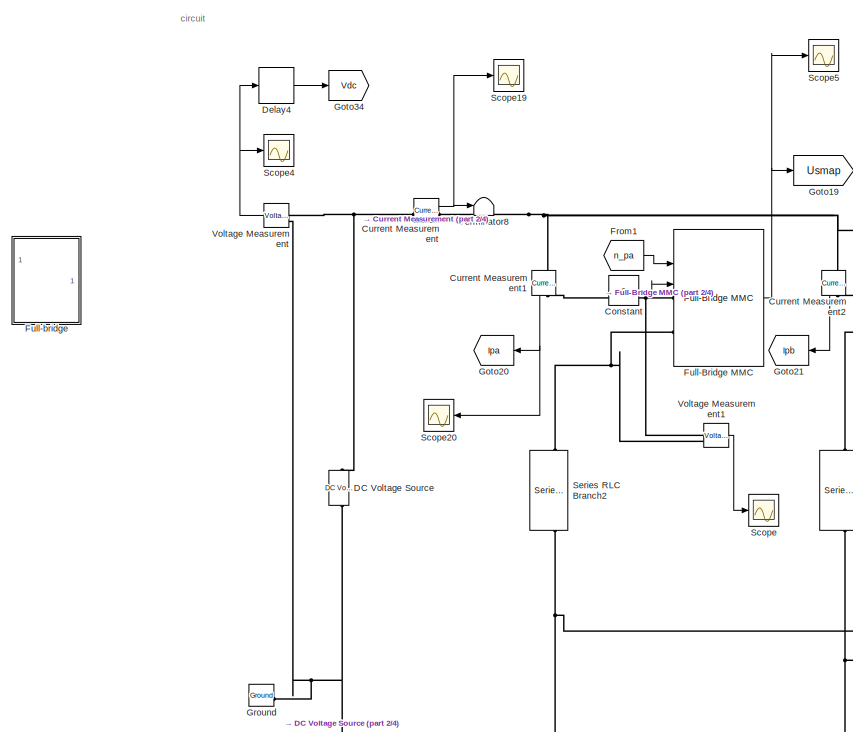
[diagram: Plant_Model/simulation/Subsystem/MMC - part 1/4, top left region]
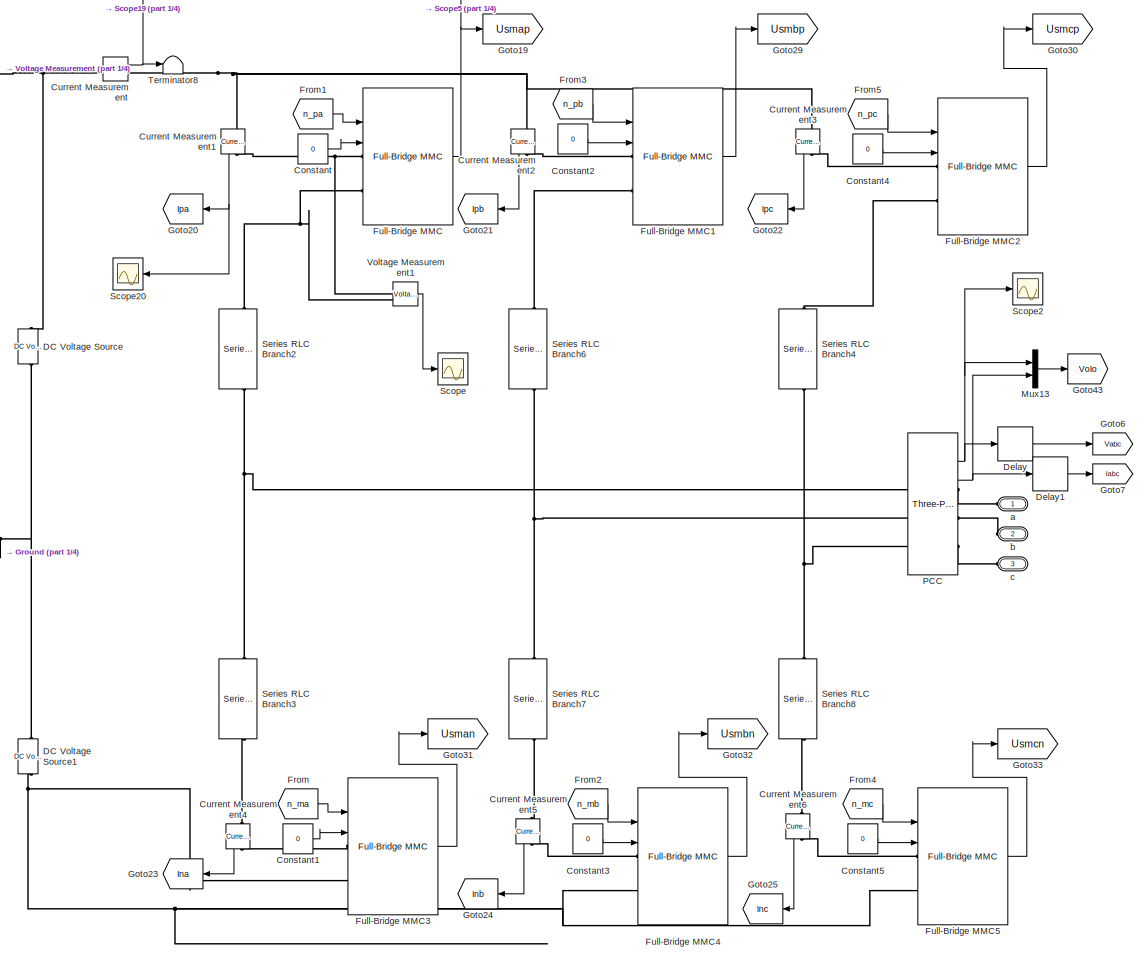
[diagram: Plant_Model/simulation/Subsystem/MMC - part 2/4, central region]
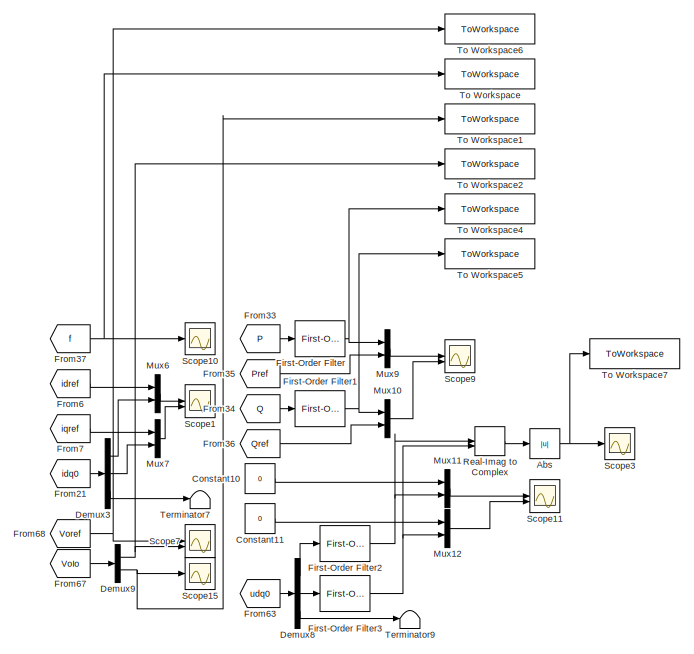
[diagram: Plant_Model/simulation/Subsystem/MMC - part 3/4, middle right region]
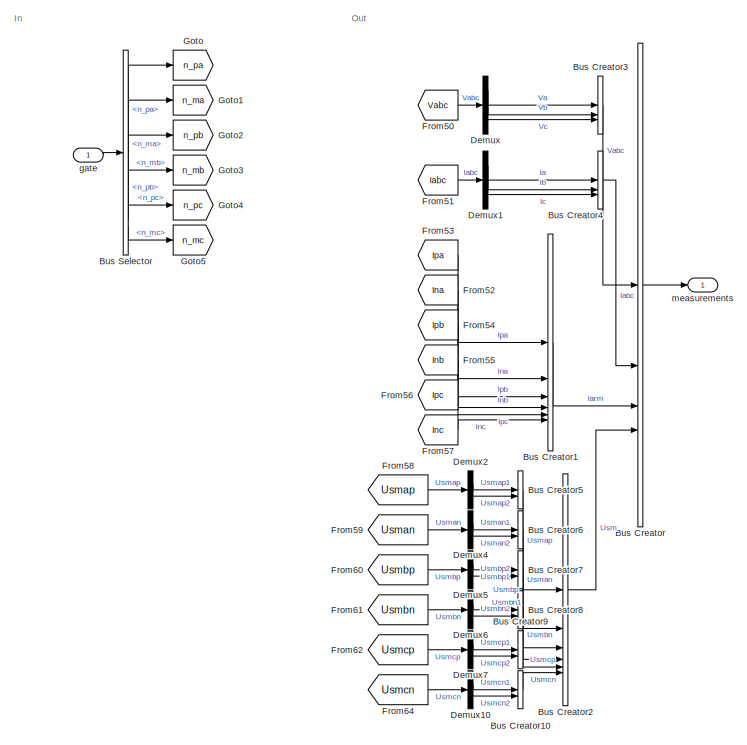
[diagram: Plant_Model/simulation/Subsystem/MMC - part 4/4, bottom center region]
BLOCK [SubSystem] Plant_Model/simulation/Subsystem/MMC
  PortSchema = {"entries":[{"content":{"sides":[{"content":{"connectorIds":["Out1","LConn1","LConn2","LConn3"]},"type":"ConnectorPlacement.EquallySpacedRectSide","uuid":"95173622-6978-47a0-a626-cd93d651a31a"},{"content":{"connectorIds":["In1"],"side":"RIGHT"},"type":"ConnectorPlacement.EquallySpacedRectSide","uuid":"d6ecb1b6-dc25-434f-acc4-1345d2bf2400"},{"content":{"side":"TOP"},"type":"ConnectorPlacement.Equal...<+249ch>
BLOCK [Abs] Plant_Model/simulation/Subsystem/MMC/Abs
  Commented = on
  SaturateOnIntegerOverflow = off
BLOCK [BusCreator] Plant_Model/simulation/Subsystem/MMC/Bus Creator
  DisplayOption = bar
  InheritFromInputs = on
  Inputs = 4
BLOCK [BusCreator] Plant_Model/simulation/Subsystem/MMC/Bus Creator1
  DisplayOption = bar
  InheritFromInputs = on
  Inputs = 6
BLOCK [BusCreator] Plant_Model/simulation/Subsystem/MMC/Bus Creator10
  DisplayOption = bar
  InheritFromInputs = on
  Inputs = 2
BLOCK [BusCreator] Plant_Model/simulation/Subsystem/MMC/Bus Creator2
  DisplayOption = bar
  InheritFromInputs = on
  Inputs = 6
BLOCK [BusCreator] Plant_Model/simulation/Subsystem/MMC/Bus Creator3
  DisplayOption = bar
  InheritFromInputs = on
  Inputs = 3
BLOCK [BusCreator] Plant_Model/simulation/Subsystem/MMC/Bus Creator4
  DisplayOption = bar
  InheritFromInputs = on
  Inputs = 3
BLOCK [BusCreator] Plant_Model/simulation/Subsystem/MMC/Bus Creator5
  DisplayOption = bar
  InheritFromInputs = on
  Inputs = 2
BLOCK [BusCreator] Plant_Model/simulation/Subsystem/MMC/Bus Creator6
  DisplayOption = bar
  InheritFromInputs = on
  Inputs = 2
BLOCK [BusCreator] Plant_Model/simulation/Subsystem/MMC/Bus Creator7
  DisplayOption = bar
  InheritFromInputs = on
  Inputs = 2
BLOCK [BusCreator] Plant_Model/simulation/Subsystem/MMC/Bus Creator8
  DisplayOption = bar
  InheritFromInputs = on
  Inputs = 2
BLOCK [BusCreator] Plant_Model/simulation/Subsystem/MMC/Bus Creator9
  DisplayOption = bar
  InheritFromInputs = on
  Inputs = 2
BLOCK [BusSelector] Plant_Model/simulation/Subsystem/MMC/Bus Selector
  OutputSignals = n_pa,n_ma,n_pb,n_mb,n_pc,n_mc
BLOCK [Constant] Plant_Model/simulation/Subsystem/MMC/Constant
  Value = 0
BLOCK [Constant] Plant_Model/simulation/Subsystem/MMC/Constant1
  Value = 0
BLOCK [Constant] Plant_Model/simulation/Subsystem/MMC/Constant10
  Commented = on
  Value = 0
BLOCK [Constant] Plant_Model/simulation/Subsystem/MMC/Constant11
  Commented = on
  Value = 0
BLOCK [Constant] Plant_Model/simulation/Subsystem/MMC/Constant2
  Value = 0
BLOCK [Constant] Plant_Model/simulation/Subsystem/MMC/Constant3
  Value = 0
BLOCK [Constant] Plant_Model/simulation/Subsystem/MMC/Constant4
  Value = 0
BLOCK [Constant] Plant_Model/simulation/Subsystem/MMC/Constant5
  Value = 0
BLOCK [Reference] Plant_Model/simulation/Subsystem/MMC/Current Measurement  REF=spsCurrentMeasurementLib/Current Measurement
  SourceBlock = spsCurrentMeasurementLib/Current Measurement
  SourceType = Current Measurement
  UserDataPersistent = on
BLOCK [Reference] Plant_Model/simulation/Subsystem/MMC/Current Measurement1  REF=spsCurrentMeasurementLib/Current Measurement
  NameLocation = left
  SourceBlock = spsCurrentMeasurementLib/Current Measurement
  SourceType = Current Measurement
  UserDataPersistent = on
BLOCK [Reference] Plant_Model/simulation/Subsystem/MMC/Current Measurement2  REF=spsCurrentMeasurementLib/Current Measurement
  NameLocation = left
  SourceBlock = spsCurrentMeasurementLib/Current Measurement
  SourceType = Current Measurement
  UserDataPersistent = on
BLOCK [Reference] Plant_Model/simulation/Subsystem/MMC/Current Measurement3  REF=spsCurrentMeasurementLib/Current Measurement
  NameLocation = left
  SourceBlock = spsCurrentMeasurementLib/Current Measurement
  SourceType = Current Measurement
  UserDataPersistent = on
BLOCK [Reference] Plant_Model/simulation/Subsystem/MMC/Current Measurement4  REF=spsCurrentMeasurementLib/Current Measurement
  NameLocation = left
  SourceBlock = spsCurrentMeasurementLib/Current Measurement
  SourceType = Current Measurement
  UserDataPersistent = on
BLOCK [Reference] Plant_Model/simulation/Subsystem/MMC/Current Measurement5  REF=spsCurrentMeasurementLib/Current Measurement
  NameLocation = left
  SourceBlock = spsCurrentMeasurementLib/Current Measurement
  SourceType = Current Measurement
  UserDataPersistent = on
BLOCK [Reference] Plant_Model/simulation/Subsystem/MMC/Current Measurement6  REF=spsCurrentMeasurementLib/Current Measurement
  NameLocation = left
  SourceBlock = spsCurrentMeasurementLib/Current Measurement
  SourceType = Current Measurement
  UserDataPersistent = on
BLOCK [Reference] Plant_Model/simulation/Subsystem/MMC/DC Voltage Source  REF=spsDCVoltageSourceLib/DC Voltage Source
  SourceBlock = spsDCVoltageSourceLib/DC Voltage Source
  SourceType = DC Voltage Source
BLOCK [Reference] Plant_Model/simulation/Subsystem/MMC/DC Voltage Source1  REF=spsDCVoltageSourceLib/DC Voltage Source
  SourceBlock = spsDCVoltageSourceLib/DC Voltage Source
  SourceType = DC Voltage Source
BLOCK [Delay] Plant_Model/simulation/Subsystem/MMC/Delay
  DelayLength = 1
  InputPortMap = u0
  SampleTime = Ts_Power
BLOCK [Delay] Plant_Model/simulation/Subsystem/MMC/Delay1
  DelayLength = 1
  InputPortMap = u0
  SampleTime = Ts_Power
BLOCK [Delay] Plant_Model/simulation/Subsystem/MMC/Delay4
  DelayLength = 1
  InputPortMap = u0
  InputProcessing = Columns as channels (frame based)
BLOCK [Demux] Plant_Model/simulation/Subsystem/MMC/Demux
  Outputs = 3
BLOCK [Demux] Plant_Model/simulation/Subsystem/MMC/Demux1
  Outputs = 3
BLOCK [Demux] Plant_Model/simulation/Subsystem/MMC/Demux10
  Outputs = 2
BLOCK [Demux] Plant_Model/simulation/Subsystem/MMC/Demux2
  Outputs = 2
BLOCK [Demux] Plant_Model/simulation/Subsystem/MMC/Demux3
  Commented = on
  Outputs = 3
BLOCK [Demux] Plant_Model/simulation/Subsystem/MMC/Demux4
  Outputs = 2
BLOCK [Demux] Plant_Model/simulation/Subsystem/MMC/Demux5
  Outputs = 2
BLOCK [Demux] Plant_Model/simulation/Subsystem/MMC/Demux6
  Outputs = 2
BLOCK [Demux] Plant_Model/simulation/Subsystem/MMC/Demux7
  Outputs = 2
BLOCK [Demux] Plant_Model/simulation/Subsystem/MMC/Demux8
  Commented = on
  Outputs = 3
BLOCK [Demux] Plant_Model/simulation/Subsystem/MMC/Demux9
  Commented = on
  Outputs = 2
BLOCK [Reference] Plant_Model/simulation/Subsystem/MMC/First-Order Filter  REF=spsFirstOrderFilterLib/First-Order
Filter
  Commented = on
  SourceBlock = spsFirstOrderFilterLib/First-Order\nFilter
  SourceType = First-Order Filter
BLOCK [Reference] Plant_Model/simulation/Subsystem/MMC/First-Order Filter1  REF=spsFirstOrderFilterLib/First-Order
Filter
  Commented = on
  SourceBlock = spsFirstOrderFilterLib/First-Order\nFilter
  SourceType = First-Order Filter
BLOCK [Reference] Plant_Model/simulation/Subsystem/MMC/First-Order Filter2  REF=spsFirstOrderFilterLib/First-Order
Filter
  Commented = on
  SourceBlock = spsFirstOrderFilterLib/First-Order\nFilter
  SourceType = First-Order Filter
BLOCK [Reference] Plant_Model/simulation/Subsystem/MMC/First-Order Filter3  REF=spsFirstOrderFilterLib/First-Order
Filter
  Commented = on
  SourceBlock = spsFirstOrderFilterLib/First-Order\nFilter
  SourceType = First-Order Filter
BLOCK [From] Plant_Model/simulation/Subsystem/MMC/From
  GotoTag = n_ma
BLOCK [From] Plant_Model/simulation/Subsystem/MMC/From1
  GotoTag = n_pa
BLOCK [From] Plant_Model/simulation/Subsystem/MMC/From2
  GotoTag = n_mb
BLOCK [From] Plant_Model/simulation/Subsystem/MMC/From21
  Commented = on
  GotoTag = idq0
BLOCK [From] Plant_Model/simulation/Subsystem/MMC/From3
  GotoTag = n_pb
BLOCK [From] Plant_Model/simulation/Subsystem/MMC/From33
  Commented = on
  GotoTag = P
BLOCK [From] Plant_Model/simulation/Subsystem/MMC/From34
  Commented = on
  GotoTag = Q
BLOCK [From] Plant_Model/simulation/Subsystem/MMC/From35
  Commented = on
  GotoTag = Pref
BLOCK [From] Plant_Model/simulation/Subsystem/MMC/From36
  Commented = on
  GotoTag = Qref
BLOCK [From] Plant_Model/simulation/Subsystem/MMC/From37
  Commented = on
  GotoTag = f
BLOCK [From] Plant_Model/simulation/Subsystem/MMC/From4
  GotoTag = n_mc
BLOCK [From] Plant_Model/simulation/Subsystem/MMC/From5
  GotoTag = n_pc
BLOCK [From] Plant_Model/simulation/Subsystem/MMC/From50
  GotoTag = Vabc
BLOCK [From] Plant_Model/simulation/Subsystem/MMC/From51
  GotoTag = Iabc
BLOCK [From] Plant_Model/simulation/Subsystem/MMC/From52
  GotoTag = Ina
  NameLocation = top
BLOCK [From] Plant_Model/simulation/Subsystem/MMC/From53
  GotoTag = Ipa
  NameLocation = top
BLOCK [From] Plant_Model/simulation/Subsystem/MMC/From54
  GotoTag = Ipb
BLOCK [From] Plant_Model/simulation/Subsystem/MMC/From55
  GotoTag = Inb
BLOCK [From] Plant_Model/simulation/Subsystem/MMC/From56
  GotoTag = Ipc
BLOCK [From] Plant_Model/simulation/Subsystem/MMC/From57
  GotoTag = Inc
BLOCK [From] Plant_Model/simulation/Subsystem/MMC/From58
  GotoTag = Usmap
BLOCK [From] Plant_Model/simulation/Subsystem/MMC/From59
  GotoTag = Usman
BLOCK [From] Plant_Model/simulation/Subsystem/MMC/From6
  Commented = on
  GotoTag = idref
BLOCK [From] Plant_Model/simulation/Subsystem/MMC/From60
  GotoTag = Usmbp
BLOCK [From] Plant_Model/simulation/Subsystem/MMC/From61
  GotoTag = Usmbn
BLOCK [From] Plant_Model/simulation/Subsystem/MMC/From62
  GotoTag = Usmcp
BLOCK [From] Plant_Model/simulation/Subsystem/MMC/From63
  Commented = on
  GotoTag = udq0
BLOCK [From] Plant_Model/simulation/Subsystem/MMC/From64
  GotoTag = Usmcn
BLOCK [From] Plant_Model/simulation/Subsystem/MMC/From67
  Commented = on
  GotoTag = VoIo
BLOCK [From] Plant_Model/simulation/Subsystem/MMC/From68
  Commented = on
  GotoTag = Voref
BLOCK [From] Plant_Model/simulation/Subsystem/MMC/From7
  Commented = on
  GotoTag = iqref
BLOCK [Reference] Plant_Model/simulation/Subsystem/MMC/Full-Bridge MMC  REF=spsFullBridgeMMCLib/Full-Bridge MMC
  LibrarySourceBlock = sps_lib/Power Electronics/Full-Bridge MMC
  SourceBlock = spsFullBridgeMMCLib/Full-Bridge MMC
  SourceType = Full-Bridge MMC
BLOCK [Reference] Plant_Model/simulation/Subsystem/MMC/Full-Bridge MMC1  REF=spsFullBridgeMMCLib/Full-Bridge MMC
  LibrarySourceBlock = sps_lib/Power Electronics/Full-Bridge MMC
  SourceBlock = spsFullBridgeMMCLib/Full-Bridge MMC
  SourceType = Full-Bridge MMC
BLOCK [Reference] Plant_Model/simulation/Subsystem/MMC/Full-Bridge MMC2  REF=spsFullBridgeMMCLib/Full-Bridge MMC
  LibrarySourceBlock = sps_lib/Power Electronics/Full-Bridge MMC
  SourceBlock = spsFullBridgeMMCLib/Full-Bridge MMC
  SourceType = Full-Bridge MMC
BLOCK [Reference] Plant_Model/simulation/Subsystem/MMC/Full-Bridge MMC3  REF=spsFullBridgeMMCLib/Full-Bridge MMC
  LibrarySourceBlock = sps_lib/Power Electronics/Full-Bridge MMC
  SourceBlock = spsFullBridgeMMCLib/Full-Bridge MMC
  SourceType = Full-Bridge MMC
BLOCK [Reference] Plant_Model/simulation/Subsystem/MMC/Full-Bridge MMC4  REF=spsFullBridgeMMCLib/Full-Bridge MMC
  LibrarySourceBlock = sps_lib/Power Electronics/Full-Bridge MMC
  SourceBlock = spsFullBridgeMMCLib/Full-Bridge MMC
  SourceType = Full-Bridge MMC
BLOCK [Reference] Plant_Model/simulation/Subsystem/MMC/Full-Bridge MMC5  REF=spsFullBridgeMMCLib/Full-Bridge MMC
  LibrarySourceBlock = sps_lib/Power Electronics/Full-Bridge MMC
  SourceBlock = spsFullBridgeMMCLib/Full-Bridge MMC
  SourceType = Full-Bridge MMC
BLOCK [SubSystem] Plant_Model/simulation/Subsystem/MMC/Full-bridge
  Commented = on
BLOCK [Demux] Plant_Model/simulation/Subsystem/MMC/Full-bridge/Demux
BLOCK [SubSystem] Plant_Model/simulation/Subsystem/MMC/Full-bridge/HBua1
BLOCK [Reference] Plant_Model/simulation/Subsystem/MMC/Full-bridge/HBua1/Ch  REF=spsSeriesRLCBranchLib/Series RLC Branch
  NameLocation = left
  SourceBlock = spsSeriesRLCBranchLib/Series RLC Branch
  SourceType = Series RLC Branch
BLOCK [Reference] Plant_Model/simulation/Subsystem/MMC/Full-bridge/HBua1/Cm  REF=spsSeriesRLCBranchLib/Series RLC Branch
  NameLocation = left
  SourceBlock = spsSeriesRLCBranchLib/Series RLC Branch
  SourceType = Series RLC Branch
BLOCK [PMIOPort] Plant_Model/simulation/Subsystem/MMC/Full-bridge/HBua1/DC+
  Port = 3
  Side = Right
BLOCK [PMIOPort] Plant_Model/simulation/Subsystem/MMC/Full-bridge/HBua1/DC-
  Port = 4
  Side = Right
BLOCK [Demux] Plant_Model/simulation/Subsystem/MMC/Full-bridge/HBua1/Demux1
BLOCK [Reference] Plant_Model/simulation/Subsystem/MMC/Full-bridge/HBua1/IGBT//Diode  REF=spsIGBTDiodeLib/IGBT//Diode
  NameLocation = right
  SourceBlock = spsIGBTDiodeLib/IGBT//Diode
  SourceType = IGBT/Diode
BLOCK [Reference] Plant_Model/simulation/Subsystem/MMC/Full-bridge/HBua1/IGBT//Diode1  REF=spsIGBTDiodeLib/IGBT//Diode
  NameLocation = right
  SourceBlock = spsIGBTDiodeLib/IGBT//Diode
  SourceType = IGBT/Diode
BLOCK [Reference] Plant_Model/simulation/Subsystem/MMC/Full-bridge/HBua1/IGBT//Diode2  REF=spsIGBTDiodeLib/IGBT//Diode
  NameLocation = right
  SourceBlock = spsIGBTDiodeLib/IGBT//Diode
  SourceType = IGBT/Diode
BLOCK [Reference] Plant_Model/simulation/Subsystem/MMC/Full-bridge/HBua1/IGBT//Diode3  REF=spsIGBTDiodeLib/IGBT//Diode
  NameLocation = right
  SourceBlock = spsIGBTDiodeLib/IGBT//Diode
  SourceType = IGBT/Diode
BLOCK [Reference] Plant_Model/simulation/Subsystem/MMC/Full-bridge/HBua1/Rdis  REF=spsSeriesRLCBranchLib/Series RLC Branch
  NameLocation = right
  SourceBlock = spsSeriesRLCBranchLib/Series RLC Branch
  SourceType = Series RLC Branch
BLOCK [PMIOPort] Plant_Model/simulation/Subsystem/MMC/Full-bridge/HBua1/VA
  Side = Left
BLOCK [PMIOPort] Plant_Model/simulation/Subsystem/MMC/Full-bridge/HBua1/VB
  Port = 2
  Side = Left
BLOCK [Inport] Plant_Model/simulation/Subsystem/MMC/Full-bridge/HBua1/gates
BLOCK [SubSystem] Plant_Model/simulation/Subsystem/MMC/Full-bridge/HBua2
BLOCK [Reference] Plant_Model/simulation/Subsystem/MMC/Full-bridge/HBua2/Ch  REF=spsSeriesRLCBranchLib/Series RLC Branch
  NameLocation = left
  SourceBlock = spsSeriesRLCBranchLib/Series RLC Branch
  SourceType = Series RLC Branch
BLOCK [Reference] Plant_Model/simulation/Subsystem/MMC/Full-bridge/HBua2/Cm  REF=spsSeriesRLCBranchLib/Series RLC Branch
  NameLocation = left
  SourceBlock = spsSeriesRLCBranchLib/Series RLC Branch
  SourceType = Series RLC Branch
BLOCK [PMIOPort] Plant_Model/simulation/Subsystem/MMC/Full-bridge/HBua2/DC+
  Port = 3
  Side = Right
BLOCK [PMIOPort] Plant_Model/simulation/Subsystem/MMC/Full-bridge/HBua2/DC-
  Port = 4
  Side = Right
BLOCK [Demux] Plant_Model/simulation/Subsystem/MMC/Full-bridge/HBua2/Demux1
BLOCK [Reference] Plant_Model/simulation/Subsystem/MMC/Full-bridge/HBua2/IGBT//Diode  REF=spsIGBTDiodeLib/IGBT//Diode
  NameLocation = right
  SourceBlock = spsIGBTDiodeLib/IGBT//Diode
  SourceType = IGBT/Diode
BLOCK [Reference] Plant_Model/simulation/Subsystem/MMC/Full-bridge/HBua2/IGBT//Diode1  REF=spsIGBTDiodeLib/IGBT//Diode
  NameLocation = right
  SourceBlock = spsIGBTDiodeLib/IGBT//Diode
  SourceType = IGBT/Diode
BLOCK [Reference] Plant_Model/simulation/Subsystem/MMC/Full-bridge/HBua2/IGBT//Diode2  REF=spsIGBTDiodeLib/IGBT//Diode
  NameLocation = right
  SourceBlock = spsIGBTDiodeLib/IGBT//Diode
  SourceType = IGBT/Diode
BLOCK [Reference] Plant_Model/simulation/Subsystem/MMC/Full-bridge/HBua2/IGBT//Diode3  REF=spsIGBTDiodeLib/IGBT//Diode
  NameLocation = right
  SourceBlock = spsIGBTDiodeLib/IGBT//Diode
  SourceType = IGBT/Diode
BLOCK [Reference] Plant_Model/simulation/Subsystem/MMC/Full-bridge/HBua2/Rdis  REF=spsSeriesRLCBranchLib/Series RLC Branch
  NameLocation = right
  SourceBlock = spsSeriesRLCBranchLib/Series RLC Branch
  SourceType = Series RLC Branch
BLOCK [PMIOPort] Plant_Model/simulation/Subsystem/MMC/Full-bridge/HBua2/VA
  Side = Left
BLOCK [PMIOPort] Plant_Model/simulation/Subsystem/MMC/Full-bridge/HBua2/VB
  Port = 2
  Side = Left
BLOCK [Inport] Plant_Model/simulation/Subsystem/MMC/Full-bridge/HBua2/gates
BLOCK [Mux] Plant_Model/simulation/Subsystem/MMC/Full-bridge/Mux
  DisplayOption = bar
BLOCK [Mux] Plant_Model/simulation/Subsystem/MMC/Full-bridge/Mux1
  DisplayOption = bar
BLOCK [Mux] Plant_Model/simulation/Subsystem/MMC/Full-bridge/Mux2
  DisplayOption = bar
  Inputs = 2
BLOCK [PMIOPort] Plant_Model/simulation/Subsystem/MMC/Full-bridge/VA
  Side = Left
BLOCK [PMIOPort] Plant_Model/simulation/Subsystem/MMC/Full-bridge/VB
  Port = 2
  Side = Left
BLOCK [Inport] Plant_Model/simulation/Subsystem/MMC/Full-bridge/gates
BLOCK [Outport] Plant_Model/simulation/Subsystem/MMC/Full-bridge/m
BLOCK [Reference] Plant_Model/simulation/Subsystem/MMC/Full-bridge/vm  REF=spsVoltageMeasurementLib/Voltage Measurement
  SourceBlock = spsVoltageMeasurementLib/Voltage Measurement
  SourceType = Voltage Measurement
  UserDataPersistent = on
BLOCK [Reference] Plant_Model/simulation/Subsystem/MMC/Full-bridge/vm1  REF=spsVoltageMeasurementLib/Voltage Measurement
  SourceBlock = spsVoltageMeasurementLib/Voltage Measurement
  SourceType = Voltage Measurement
  UserDataPersistent = on
BLOCK [Goto] Plant_Model/simulation/Subsystem/MMC/Goto
  GotoTag = n_pa
BLOCK [Goto] Plant_Model/simulation/Subsystem/MMC/Goto1
  GotoTag = n_ma
BLOCK [Goto] Plant_Model/simulation/Subsystem/MMC/Goto19
  GotoTag = Usmap
BLOCK [Goto] Plant_Model/simulation/Subsystem/MMC/Goto2
  GotoTag = n_pb
BLOCK [Goto] Plant_Model/simulation/Subsystem/MMC/Goto20
  GotoTag = Ipa
  NameLocation = top
BLOCK [Goto] Plant_Model/simulation/Subsystem/MMC/Goto21
  GotoTag = Ipb
  NameLocation = top
BLOCK [Goto] Plant_Model/simulation/Subsystem/MMC/Goto22
  GotoTag = Ipc
  NameLocation = top
BLOCK [Goto] Plant_Model/simulation/Subsystem/MMC/Goto23
  GotoTag = Ina
  NameLocation = top
BLOCK [Goto] Plant_Model/simulation/Subsystem/MMC/Goto24
  GotoTag = Inb
  NameLocation = top
BLOCK [Goto] Plant_Model/simulation/Subsystem/MMC/Goto25
  GotoTag = Inc
  NameLocation = top
BLOCK [Goto] Plant_Model/simulation/Subsystem/MMC/Goto29
  GotoTag = Usmbp
BLOCK [Goto] Plant_Model/simulation/Subsystem/MMC/Goto3
  GotoTag = n_mb
BLOCK [Goto] Plant_Model/simulation/Subsystem/MMC/Goto30
  GotoTag = Usmcp
BLOCK [Goto] Plant_Model/simulation/Subsystem/MMC/Goto31
  GotoTag = Usman
BLOCK [Goto] Plant_Model/simulation/Subsystem/MMC/Goto32
  GotoTag = Usmbn
BLOCK [Goto] Plant_Model/simulation/Subsystem/MMC/Goto33
  GotoTag = Usmcn
BLOCK [Goto] Plant_Model/simulation/Subsystem/MMC/Goto34
  GotoTag = Vdc
BLOCK [Goto] Plant_Model/simulation/Subsystem/MMC/Goto4
  GotoTag = n_pc
BLOCK [Goto] Plant_Model/simulation/Subsystem/MMC/Goto43
  GotoTag = VoIo
BLOCK [Goto] Plant_Model/simulation/Subsystem/MMC/Goto5
  GotoTag = n_mc
BLOCK [Goto] Plant_Model/simulation/Subsystem/MMC/Goto6
  GotoTag = Vabc
BLOCK [Goto] Plant_Model/simulation/Subsystem/MMC/Goto7
  GotoTag = Iabc
BLOCK [Reference] Plant_Model/simulation/Subsystem/MMC/Ground  REF=spsGroundLib/Ground
  SourceBlock = spsGroundLib/Ground
  SourceType = Ground
BLOCK [Mux] Plant_Model/simulation/Subsystem/MMC/Mux10
  Commented = on
  DisplayOption = bar
  Inputs = 2
BLOCK [Mux] Plant_Model/simulation/Subsystem/MMC/Mux11
  Commented = on
  DisplayOption = bar
  Inputs = 2
BLOCK [Mux] Plant_Model/simulation/Subsystem/MMC/Mux12
  Commented = on
  DisplayOption = bar
  Inputs = 2
BLOCK [Mux] Plant_Model/simulation/Subsystem/MMC/Mux13
  DisplayOption = bar
  Inputs = 2
BLOCK [Mux] Plant_Model/simulation/Subsystem/MMC/Mux6
  Commented = on
  DisplayOption = bar
  Inputs = 2
BLOCK [Mux] Plant_Model/simulation/Subsystem/MMC/Mux7
  Commented = on
  DisplayOption = bar
  Inputs = 2
BLOCK [Mux] Plant_Model/simulation/Subsystem/MMC/Mux9
  Commented = on
  DisplayOption = bar
  Inputs = 2
BLOCK [Reference] Plant_Model/simulation/Subsystem/MMC/PCC  REF=spsThreePhaseVIMeasurementLib/Three-Phase
V-I Measurement
  SourceBlock = spsThreePhaseVIMeasurementLib/Three-Phase\nV-I Measurement
  SourceType = Three-Phase VI Measurement
BLOCK [RealImagToComplex] Plant_Model/simulation/Subsystem/MMC/Real-Imag to Complex
  Commented = on
BLOCK [Scope] Plant_Model/simulation/Subsystem/MMC/Scope
  Floating = off
  NumInputPorts = 1
  ScopeSpecificationString = Simulink.scopes.TimeScopeBlockCfg('CurrentConfiguration', extmgr.ConfigurationSet(extmgr.Configuration('Core','General UI',true),extmgr.Configuration('Core','Source UI',true),extmgr.Configuration('Sources','WiredSimulink',true,'DataLoggingVariableName','ScopeData1'),extmgr.Configuration('Visuals','Time Domain',true,'SerializedDisplays',{struct('MinYLimReal','-1333.87739','MaxYLimReal','1383.29563'...<+1551ch>
BLOCK [Scope] Plant_Model/simulation/Subsystem/MMC/Scope1
  Commented = on
  Floating = off
  NumInputPorts = 2
  ScopeSpecificationString = Simulink.scopes.TimeScopeBlockCfg('CurrentConfiguration', extmgr.ConfigurationSet(extmgr.Configuration('Core','General UI',true),extmgr.Configuration('Core','Source UI',true),extmgr.Configuration('Sources','WiredSimulink',true,'DataLoggingVariableName','ScopeData1'),extmgr.Configuration('Visuals','Time Domain',true,'SerializedDisplays',{struct('MinYLimReal','-7.91754','MaxYLimReal','31.6182','YLab...<+2771ch>
BLOCK [Scope] Plant_Model/simulation/Subsystem/MMC/Scope10
  Commented = on
  Floating = off
  NumInputPorts = 1
  ScopeSpecificationString = Simulink.scopes.TimeScopeBlockCfg('CurrentConfiguration', extmgr.ConfigurationSet(extmgr.Configuration('Core','General UI',true),extmgr.Configuration('Core','Source UI',true),extmgr.Configuration('Sources','WiredSimulink',true,'DataLoggingVariableName','ScopeData2'),extmgr.Configuration('Visuals','Time Domain',true,'SerializedDisplays',{struct('MinYLimReal','49.39282','MaxYLimReal','50.06746','YLa...<+1527ch>
BLOCK [Scope] Plant_Model/simulation/Subsystem/MMC/Scope11
  Commented = on
  Floating = off
  NumInputPorts = 2
  ScopeSpecificationString = Simulink.scopes.TimeScopeBlockCfg('CurrentConfiguration', extmgr.ConfigurationSet(extmgr.Configuration('Core','General UI',true),extmgr.Configuration('Core','Source UI',true),extmgr.Configuration('Sources','WiredSimulink',true,'DataLoggingVariableName','ScopeData3'),extmgr.Configuration('Visuals','Time Domain',true,'SerializedDisplays',{struct('MinYLimReal','-0.12554','MaxYLimReal','1.12985','YLab...<+2265ch>
BLOCK [Scope] Plant_Model/simulation/Subsystem/MMC/Scope15
  Commented = on
  Floating = off
  NumInputPorts = 1
  ScopeSpecificationString = Simulink.scopes.TimeScopeBlockCfg('CurrentConfiguration', extmgr.ConfigurationSet(extmgr.Configuration('Core','General UI',true),extmgr.Configuration('Core','Source UI',true),extmgr.Configuration('Sources','WiredSimulink',true,'DataLoggingVariableName','ScopeData4'),extmgr.Configuration('Visuals','Time Domain',true,'SerializedDisplays',{struct('MinYLimReal','-8.36896','MaxYLimReal','8.2925','YLabe...<+1519ch>
BLOCK [Scope] Plant_Model/simulation/Subsystem/MMC/Scope19
  Floating = off
  NumInputPorts = 1
  ScopeSpecificationString = Simulink.scopes.TimeScopeBlockCfg('CurrentConfiguration', extmgr.ConfigurationSet(extmgr.Configuration('Core','General UI',true),extmgr.Configuration('Core','Source UI',true),extmgr.Configuration('Sources','WiredSimulink',true,'DataLoggingVariableName','ScopeData6'),extmgr.Configuration('Visuals','Time Domain',true,'SerializedDisplays',{struct('MinYLimReal','-124.85877','MaxYLimReal','1123.77546',...<+1556ch>
BLOCK [Scope] Plant_Model/simulation/Subsystem/MMC/Scope2
  Floating = off
  NumInputPorts = 1
  ScopeSpecificationString = Simulink.scopes.TimeScopeBlockCfg('CurrentConfiguration', extmgr.ConfigurationSet(extmgr.Configuration('Core','General UI',true),extmgr.Configuration('Core','Source UI',true),extmgr.Configuration('Sources','WiredSimulink',true,'DataLoggingVariableName','ScopeData1'),extmgr.Configuration('Visuals','Time Domain',true,'SerializedDisplays',{struct('MinYLimReal','-0.45926','MaxYLimReal','0.45926','YLab...<+1561ch>
BLOCK [Scope] Plant_Model/simulation/Subsystem/MMC/Scope20
  Floating = off
  NameLocation = top
  NumInputPorts = 1
  ScopeSpecificationString = Simulink.scopes.TimeScopeBlockCfg('CurrentConfiguration', extmgr.ConfigurationSet(extmgr.Configuration('Core','General UI',true),extmgr.Configuration('Core','Source UI',true),extmgr.Configuration('Sources','WiredSimulink',true,'DataLoggingVariableName','ScopeData8'),extmgr.Configuration('Visuals','Time Domain',true,'SerializedDisplays',{struct('MinYLimReal','-939.8138','MaxYLimReal','1109.03096','...<+1555ch>
BLOCK [Scope] Plant_Model/simulation/Subsystem/MMC/Scope3
  Commented = on
  Floating = off
  NumInputPorts = 1
  ScopeSpecificationString = Simulink.scopes.TimeScopeBlockCfg('CurrentConfiguration', extmgr.ConfigurationSet(extmgr.Configuration('Core','General UI',true),extmgr.Configuration('Core','Source UI',true),extmgr.Configuration('Sources','WiredSimulink',true,'DataLoggingVariableName','ScopeData5'),extmgr.Configuration('Visuals','Time Domain',true,'SerializedDisplays',{struct('MinYLimReal','0.69871','MaxYLimReal','1.03344','YLabe...<+1519ch>
BLOCK [Scope] Plant_Model/simulation/Subsystem/MMC/Scope4
  Floating = off
  NumInputPorts = 1
  ScopeSpecificationString = Simulink.scopes.TimeScopeBlockCfg('CurrentConfiguration', extmgr.ConfigurationSet(extmgr.Configuration('Core','General UI',true),extmgr.Configuration('Core','Source UI',true),extmgr.Configuration('Sources','WiredSimulink',true,'DataLoggingVariableName','ScopeData1'),extmgr.Configuration('Visuals','Time Domain',true,'SerializedDisplays',{struct('MinYLimReal','39271.03455','MaxYLimReal','67908.87329...<+1568ch>
BLOCK [Scope] Plant_Model/simulation/Subsystem/MMC/Scope5
  Floating = off
  NumInputPorts = 1
  ScopeSpecificationString = Simulink.scopes.TimeScopeBlockCfg('CurrentConfiguration', extmgr.ConfigurationSet(extmgr.Configuration('Core','General UI',true),extmgr.Configuration('Core','Source UI',true),extmgr.Configuration('Sources','WiredSimulink',true,'DataLoggingVariableName','ScopeData3'),extmgr.Configuration('Visuals','Time Domain',true,'SerializedDisplays',{struct('MinYLimReal','239.99727','MaxYLimReal','240.00339','Y...<+1570ch>
BLOCK [Scope] Plant_Model/simulation/Subsystem/MMC/Scope7
  Commented = on
  Floating = off
  NumInputPorts = 2
  ScopeSpecificationString = Simulink.scopes.TimeScopeBlockCfg('CurrentConfiguration', extmgr.ConfigurationSet(extmgr.Configuration('Core','General UI',true),extmgr.Configuration('Core','Source UI',true),extmgr.Configuration('Sources','WiredSimulink',true,'DataLoggingVariableName','ScopeData6'),extmgr.Configuration('Visuals','Time Domain',true,'SerializedDisplays',{struct('MinYLimReal','-1.00000','MaxYLimReal','1.00000','YLab...<+2236ch>
BLOCK [Scope] Plant_Model/simulation/Subsystem/MMC/Scope9
  Commented = on
  Floating = off
  NumInputPorts = 2
  ScopeSpecificationString = Simulink.scopes.TimeScopeBlockCfg('CurrentConfiguration', extmgr.ConfigurationSet(extmgr.Configuration('Core','General UI',true),extmgr.Configuration('Core','Source UI',true),extmgr.Configuration('Sources','WiredSimulink',true,'DataLoggingVariableName','ScopeData7'),extmgr.Configuration('Visuals','Time Domain',true,'SerializedDisplays',{struct('MinYLimReal','-3.3299','MaxYLimReal','3.28581','YLabe...<+2220ch>
BLOCK [Reference] Plant_Model/simulation/Subsystem/MMC/Series RLC Branch2  REF=spsSeriesRLCBranchLib/Series RLC Branch
  NameLocation = left
  SourceBlock = spsSeriesRLCBranchLib/Series RLC Branch
  SourceType = Series RLC Branch
BLOCK [Reference] Plant_Model/simulation/Subsystem/MMC/Series RLC Branch3  REF=spsSeriesRLCBranchLib/Series RLC Branch
  NameLocation = left
  SourceBlock = spsSeriesRLCBranchLib/Series RLC Branch
  SourceType = Series RLC Branch
BLOCK [Reference] Plant_Model/simulation/Subsystem/MMC/Series RLC Branch4  REF=spsSeriesRLCBranchLib/Series RLC Branch
  NameLocation = left
  SourceBlock = spsSeriesRLCBranchLib/Series RLC Branch
  SourceType = Series RLC Branch
BLOCK [Reference] Plant_Model/simulation/Subsystem/MMC/Series RLC Branch6  REF=spsSeriesRLCBranchLib/Series RLC Branch
  NameLocation = left
  SourceBlock = spsSeriesRLCBranchLib/Series RLC Branch
  SourceType = Series RLC Branch
BLOCK [Reference] Plant_Model/simulation/Subsystem/MMC/Series RLC Branch7  REF=spsSeriesRLCBranchLib/Series RLC Branch
  NameLocation = left
  SourceBlock = spsSeriesRLCBranchLib/Series RLC Branch
  SourceType = Series RLC Branch
BLOCK [Reference] Plant_Model/simulation/Subsystem/MMC/Series RLC Branch8  REF=spsSeriesRLCBranchLib/Series RLC Branch
  NameLocation = left
  SourceBlock = spsSeriesRLCBranchLib/Series RLC Branch
  SourceType = Series RLC Branch
BLOCK [Terminator] Plant_Model/simulation/Subsystem/MMC/Terminator7
  Commented = on
BLOCK [Terminator] Plant_Model/simulation/Subsystem/MMC/Terminator8
BLOCK [Terminator] Plant_Model/simulation/Subsystem/MMC/Terminator9
  Commented = on
BLOCK [ToWorkspace] Plant_Model/simulation/Subsystem/MMC/To Workspace
  Commented = on
  FixptAsFi = on
  MaxDataPoints = inf
  SampleTime = -1
  SaveFormat = Structure With Time
  VariableName = freq
BLOCK [ToWorkspace] Plant_Model/simulation/Subsystem/MMC/To Workspace1
  Commented = on
  FixptAsFi = on
  MaxDataPoints = inf
  SampleTime = -1
  SaveFormat = Structure With Time
  VariableName = Io
BLOCK [ToWorkspace] Plant_Model/simulation/Subsystem/MMC/To Workspace2
  Commented = on
  FixptAsFi = on
  MaxDataPoints = inf
  SampleTime = -1
  SaveFormat = Structure With Time
  VariableName = Vo
BLOCK [ToWorkspace] Plant_Model/simulation/Subsystem/MMC/To Workspace4
  Commented = on
  FixptAsFi = on
  MaxDataPoints = inf
  SampleTime = -1
  SaveFormat = Structure With Time
  VariableName = P
BLOCK [ToWorkspace] Plant_Model/simulation/Subsystem/MMC/To Workspace5
  Commented = on
  FixptAsFi = on
  MaxDataPoints = inf
  SampleTime = -1
  SaveFormat = Structure With Time
  VariableName = Q
BLOCK [ToWorkspace] Plant_Model/simulation/Subsystem/MMC/To Workspace6
  Commented = on
  FixptAsFi = on
  MaxDataPoints = inf
  SampleTime = -1
  SaveFormat = Structure With Time
  VariableName = Voref
BLOCK [ToWorkspace] Plant_Model/simulation/Subsystem/MMC/To Workspace7
  Commented = on
  FixptAsFi = on
  MaxDataPoints = inf
  SampleTime = -1
  SaveFormat = Structure With Time
  VariableName = Vabs
BLOCK [Reference] Plant_Model/simulation/Subsystem/MMC/Voltage Measurement  REF=spsVoltageMeasurementLib/Voltage Measurement
  SourceBlock = spsVoltageMeasurementLib/Voltage Measurement
  SourceType = Voltage Measurement
  UserDataPersistent = on
BLOCK [Reference] Plant_Model/simulation/Subsystem/MMC/Voltage Measurement1  REF=spsVoltageMeasurementLib/Voltage Measurement
  LibrarySourceBlock = sps_lib/Sensors and Measurements/Voltage Measurement
  SourceBlock = spsVoltageMeasurementLib/Voltage Measurement
  SourceType = Voltage Measurement
  UserDataPersistent = on
BLOCK [PMIOPort] Plant_Model/simulation/Subsystem/MMC/a
  NameLocation = top
  Side = Left
BLOCK [PMIOPort] Plant_Model/simulation/Subsystem/MMC/b
  NameLocation = top
  Port = 2
  Side = Left
BLOCK [PMIOPort] Plant_Model/simulation/Subsystem/MMC/c
  NameLocation = top
  Port = 3
  Side = Left
BLOCK [Inport] Plant_Model/simulation/Subsystem/MMC/gate
BLOCK [Outport] Plant_Model/simulation/Subsystem/MMC/measurements
BLOCK [Mux] Plant_Model/simulation/Subsystem/Mux
  DisplayOption = bar
  Inputs = 3
BLOCK [Reference] Plant_Model/simulation/Subsystem/PCC  REF=spsThreePhaseVIMeasurementLib/Three-Phase
V-I Measurement
  SourceBlock = spsThreePhaseVIMeasurementLib/Three-Phase\nV-I Measurement
  SourceType = Three-Phase VI Measurement
BLOCK [Scope] Plant_Model/simulation/Subsystem/Scope
  Floating = off
  NumInputPorts = 2
  ScopeSpecificationString = Simulink.scopes.TimeScopeBlockCfg('CurrentConfiguration', extmgr.ConfigurationSet(extmgr.Configuration('Core','General UI',true),extmgr.Configuration('Core','Source UI',true),extmgr.Configuration('Sources','WiredSimulink',true,'DataLoggingVariableName','ScopeData1'),extmgr.Configuration('Visuals','Time Domain',true,'SerializedDisplays',{struct('MinYLimReal','-351.95566','MaxYLimReal','352.75101','...<+2369ch>
BLOCK [Reference] Plant_Model/simulation/Subsystem/Three-Phase Breaker  REF=spsThreePhaseBreakerLib/Three-Phase Breaker
  Commented = on
  NameLocation = left
  SourceBlock = spsThreePhaseBreakerLib/Three-Phase Breaker
  SourceType = Three-Phase Breaker
BLOCK [Reference] Plant_Model/simulation/Subsystem/Three-Phase Programmable Voltage Source  REF=spsThreePhaseProgrammableVoltageSourceLib/Three-Phase
Programmable
Voltage Source
  SourceBlock = spsThreePhaseProgrammableVoltageSourceLib/Three-Phase\nProgrammable\nVoltage Source
  SourceType = Three-Phase Programmable Voltage Source
BLOCK [Reference] Plant_Model/simulation/Subsystem/Three-Phase Series RLC Branch  REF=spsThreePhaseSeriesRLCBranchLib/Three-Phase
Series RLC Branch
  AttributesFormatString = \n
  SourceBlock = spsThreePhaseSeriesRLCBranchLib/Three-Phase\nSeries RLC Branch
  SourceType = Three-Phase Series RLC Branch
BLOCK [Reference] Plant_Model/simulation/Subsystem/Three-Phase Series RLC Load  REF=spsThreePhaseSeriesRLCLoadLib/Three-Phase
Series RLC Load
  AttributesFormatString = \n
  SourceBlock = spsThreePhaseSeriesRLCLoadLib/Three-Phase\nSeries RLC Load
  SourceType = Three-Phase Series RLC Load
BLOCK [Reference] Plant_Model/simulation/Subsystem/Three-Phase Series RLC Load1  REF=spsThreePhaseSeriesRLCLoadLib/Three-Phase
Series RLC Load
  AttributesFormatString = \n
  Commented = on
  SourceBlock = spsThreePhaseSeriesRLCLoadLib/Three-Phase\nSeries RLC Load
  SourceType = Three-Phase Series RLC Load
BLOCK [ToWorkspace] Plant_Model/simulation/Subsystem/To Workspace
  MaxDataPoints = inf
  NameLocation = top
  SampleTime = -1
  Save2DSignal = 2-D array (concatenate along first dimension)
  SaveFormat = Structure With Time
  VariableName = Vab
BLOCK [ToWorkspace] Plant_Model/simulation/Subsystem/To Workspace1
  MaxDataPoints = inf
  NameLocation = top
  SampleTime = -1
  Save2DSignal = 2-D array (concatenate along first dimension)
  SaveFormat = Structure With Time
  VariableName = Iab
BLOCK [ToWorkspace] Plant_Model/simulation/Subsystem/To Workspace2
  FixptAsFi = on
  MaxDataPoints = inf
  SampleTime = -1
  SaveFormat = Structure With Time
  VariableName = Vac
BLOCK [Reference] Plant_Model/simulation/Subsystem/Voltage Measurement  REF=spsVoltageMeasurementLib/Voltage Measurement
  SourceBlock = spsVoltageMeasurementLib/Voltage Measurement
  SourceType = Voltage Measurement
  UserDataPersistent = on
BLOCK [Reference] Plant_Model/simulation/Subsystem/Voltage Measurement1  REF=spsVoltageMeasurementLib/Voltage Measurement
  SourceBlock = spsVoltageMeasurementLib/Voltage Measurement
  SourceType = Voltage Measurement
  UserDataPersistent = on
BLOCK [Reference] Plant_Model/simulation/Subsystem/Voltage Measurement2  REF=spsVoltageMeasurementLib/Voltage Measurement
  SourceBlock = spsVoltageMeasurementLib/Voltage Measurement
  SourceType = Voltage Measurement
  UserDataPersistent = on
BLOCK [Inport] Plant_Model/simulation/Subsystem/gate
BLOCK [Outport] Plant_Model/simulation/Subsystem/measurements
  NameLocation = right
BLOCK [Reference] Plant_Model/simulation/Subsystem/powergui1  REF=spspowerguiLib/powergui
  Priority = 1
  SourceBlock = spspowerguiLib/powergui
  SourceType = PSB option menu block
ANNOTATION (root): Contains the control implementation that can be simulated or executed on an imperix target (B-Box RCP or B-Board PRO)
ANNOTATION (root): Contains the simulation model of the controlled system.
ANNOTATION Closed_loop_control/Subsystem: BB0
ANNOTATION Closed_loop_control/Subsystem: BB1
ANNOTATION Closed_loop_control/controller: In
ANNOTATION Closed_loop_control/controller: Out
ANNOTATION Closed_loop_control/controller: PLL
ANNOTATION Closed_loop_control/controller: PWM and firing signal generation
ANNOTATION Closed_loop_control/controller: controllers
ANNOTATION Closed_loop_control/controller: measurements and to pu
ANNOTATION Closed_loop_control/controller/modulation/Sorting pa: A secrect, unintelligible, confusing and insrutable function with \if inside \for inside \if inside \if inside \if
ANNOTATION Plant_Model: The system model is disabled in the code generation mode because it should not generate any code to be downloaded in the B-Box.
ANNOTATION Plant_Model/simulation/Subsystem: powerFFT
ANNOTATION Plant_Model/simulation/Subsystem/MMC: In
ANNOTATION Plant_Model/simulation/Subsystem/MMC: Out
ANNOTATION Plant_Model/simulation/Subsystem/MMC: circuit
LINE Closed_loop_control/Configuration:1 -> Closed_loop_control/controller:1
LINE Closed_loop_control/Configuration:2 -> Closed_loop_control/Subsystem:1
LINE Closed_loop_control/Control_inputs:1 -> Closed_loop_control/Subsystem:2
LINE Closed_loop_control/Subsystem/ADC10:1 -> Closed_loop_control/Subsystem/Bus Creator6:1
LINE Closed_loop_control/Subsystem/ADC11:1 -> Closed_loop_control/Subsystem/Bus Creator6:2
LINE Closed_loop_control/Subsystem/ADC12:1 -> Closed_loop_control/Subsystem/Bus Creator7:1
LINE Closed_loop_control/Subsystem/ADC13:1 -> Closed_loop_control/Subsystem/Bus Creator7:2
LINE Closed_loop_control/Subsystem/ADC14:1 -> Closed_loop_control/Subsystem/Bus Creator3:3
LINE Closed_loop_control/Subsystem/ADC15:1 -> Closed_loop_control/Subsystem/Bus Creator4:1
LINE Closed_loop_control/Subsystem/ADC16:1 -> Closed_loop_control/Subsystem/Bus Creator4:2
LINE Closed_loop_control/Subsystem/ADC17:1 -> Closed_loop_control/Subsystem/Bus Creator4:3
LINE Closed_loop_control/Subsystem/ADC18:1 -> Closed_loop_control/Subsystem/Bus Creator8:1
LINE Closed_loop_control/Subsystem/ADC19:1 -> Closed_loop_control/Subsystem/Bus Creator8:2
LINE Closed_loop_control/Subsystem/ADC1:1 -> Closed_loop_control/Subsystem/Bus Creator3:2
LINE Closed_loop_control/Subsystem/ADC20:1 -> Closed_loop_control/Subsystem/Bus Creator9:1
LINE Closed_loop_control/Subsystem/ADC21:1 -> Closed_loop_control/Subsystem/Bus Creator9:2
LINE Closed_loop_control/Subsystem/ADC22:1 -> Closed_loop_control/Subsystem/Bus Creator10:1
LINE Closed_loop_control/Subsystem/ADC23:1 -> Closed_loop_control/Subsystem/Bus Creator10:2
LINE Closed_loop_control/Subsystem/ADC2:1 -> Closed_loop_control/Subsystem/Bus Creator1:1
LINE Closed_loop_control/Subsystem/ADC3:1 -> Closed_loop_control/Subsystem/Bus Creator1:2
LINE Closed_loop_control/Subsystem/ADC4:1 -> Closed_loop_control/Subsystem/Bus Creator1:3
LINE Closed_loop_control/Subsystem/ADC5:1 -> Closed_loop_control/Subsystem/Bus Creator1:4
LINE Closed_loop_control/Subsystem/ADC6:1 -> Closed_loop_control/Subsystem/Bus Creator1:5
LINE Closed_loop_control/Subsystem/ADC7:1 -> Closed_loop_control/Subsystem/Bus Creator1:6
LINE Closed_loop_control/Subsystem/ADC8:1 -> Closed_loop_control/Subsystem/Bus Creator5:1
LINE Closed_loop_control/Subsystem/ADC9:1 -> Closed_loop_control/Subsystem/Bus Creator5:2
LINE Closed_loop_control/Subsystem/ADC:1 -> Closed_loop_control/Subsystem/Bus Creator3:1
NET Closed_loop_control/Subsystem/ADC_CLK:1 -> Closed_loop_control/Subsystem/ADC10:2, Closed_loop_control/Subsystem/ADC11:2, Closed_loop_control/Subsystem/ADC12:2, Closed_loop_control/Subsystem/ADC13:2, Closed_loop_control/Subsystem/ADC14:2, Closed_loop_control/Subsystem/ADC15:2, Closed_loop_control/Subsystem/ADC16:2, Closed_loop_control/Subsystem/ADC17:2, Closed_loop_control/Subsystem/ADC18:2, Closed_loop_control/Subsystem/ADC19:2, Closed_loop_control/Subsystem/ADC1:2, Closed_loop_control/Subsystem/ADC20:2, Closed_loop_control/Subsystem/ADC21:2, Closed_loop_control/Subsystem/ADC22:2, Closed_loop_control/Subsystem/ADC23:2, Closed_loop_control/Subsystem/ADC2:2, Closed_loop_control/Subsystem/ADC3:2, Closed_loop_control/Subsystem/ADC4:2, Closed_loop_control/Subsystem/ADC5:2, Closed_loop_control/Subsystem/ADC6:2, Closed_loop_control/Subsystem/ADC7:2, Closed_loop_control/Subsystem/ADC8:2, Closed_loop_control/Subsystem/ADC9:2, Closed_loop_control/Subsystem/ADC:2
LINE Closed_loop_control/Subsystem/Bus Creator10:1 -> Closed_loop_control/Subsystem/Bus Creator2:6
LINE Closed_loop_control/Subsystem/Bus Creator1:1 -> Closed_loop_control/Subsystem/Bus Creator:3
LINE Closed_loop_control/Subsystem/Bus Creator2:1 -> Closed_loop_control/Subsystem/Bus Creator:4
LINE Closed_loop_control/Subsystem/Bus Creator3:1 -> Closed_loop_control/Subsystem/Bus Creator:1
LINE Closed_loop_control/Subsystem/Bus Creator4:1 -> Closed_loop_control/Subsystem/Bus Creator:2
LINE Closed_loop_control/Subsystem/Bus Creator5:1 -> Closed_loop_control/Subsystem/Bus Creator2:1
LINE Closed_loop_control/Subsystem/Bus Creator6:1 -> Closed_loop_control/Subsystem/Bus Creator2:2
LINE Closed_loop_control/Subsystem/Bus Creator7:1 -> Closed_loop_control/Subsystem/Bus Creator2:3
LINE Closed_loop_control/Subsystem/Bus Creator8:1 -> Closed_loop_control/Subsystem/Bus Creator2:4
LINE Closed_loop_control/Subsystem/Bus Creator9:1 -> Closed_loop_control/Subsystem/Bus Creator2:5
LINE Closed_loop_control/Subsystem/Bus Creator:1 -> Closed_loop_control/Subsystem/Out1:1
LINE Closed_loop_control/Subsystem/Bus Selector10:1 -> Closed_loop_control/Subsystem/ADC22:1
LINE Closed_loop_control/Subsystem/Bus Selector10:2 -> Closed_loop_control/Subsystem/ADC23:1
LINE Closed_loop_control/Subsystem/Bus Selector1:1 -> Closed_loop_control/Subsystem/ADC2:1
LINE Closed_loop_control/Subsystem/Bus Selector1:2 -> Closed_loop_control/Subsystem/ADC3:1
LINE Closed_loop_control/Subsystem/Bus Selector1:3 -> Closed_loop_control/Subsystem/ADC4:1
LINE Closed_loop_control/Subsystem/Bus Selector1:4 -> Closed_loop_control/Subsystem/ADC5:1
LINE Closed_loop_control/Subsystem/Bus Selector1:5 -> Closed_loop_control/Subsystem/ADC6:1
LINE Closed_loop_control/Subsystem/Bus Selector1:6 -> Closed_loop_control/Subsystem/ADC7:1
LINE Closed_loop_control/Subsystem/Bus Selector2:1 -> Closed_loop_control/Subsystem/Bus Selector5:1
LINE Closed_loop_control/Subsystem/Bus Selector2:2 -> Closed_loop_control/Subsystem/Bus Selector6:1
LINE Closed_loop_control/Subsystem/Bus Selector2:3 -> Closed_loop_control/Subsystem/Bus Selector7:1
LINE Closed_loop_control/Subsystem/Bus Selector2:4 -> Closed_loop_control/Subsystem/Bus Selector8:1
LINE Closed_loop_control/Subsystem/Bus Selector2:5 -> Closed_loop_control/Subsystem/Bus Selector9:1
LINE Closed_loop_control/Subsystem/Bus Selector2:6 -> Closed_loop_control/Subsystem/Bus Selector10:1
LINE Closed_loop_control/Subsystem/Bus Selector3:1 -> Closed_loop_control/Subsystem/ADC:1
LINE Closed_loop_control/Subsystem/Bus Selector3:2 -> Closed_loop_control/Subsystem/ADC1:1
LINE Closed_loop_control/Subsystem/Bus Selector3:3 -> Closed_loop_control/Subsystem/ADC14:1
LINE Closed_loop_control/Subsystem/Bus Selector4:1 -> Closed_loop_control/Subsystem/ADC15:1
LINE Closed_loop_control/Subsystem/Bus Selector4:2 -> Closed_loop_control/Subsystem/ADC16:1
LINE Closed_loop_control/Subsystem/Bus Selector4:3 -> Closed_loop_control/Subsystem/ADC17:1
LINE Closed_loop_control/Subsystem/Bus Selector5:1 -> Closed_loop_control/Subsystem/ADC8:1
LINE Closed_loop_control/Subsystem/Bus Selector5:2 -> Closed_loop_control/Subsystem/ADC9:1
LINE Closed_loop_control/Subsystem/Bus Selector6:1 -> Closed_loop_control/Subsystem/ADC10:1
LINE Closed_loop_control/Subsystem/Bus Selector6:2 -> Closed_loop_control/Subsystem/ADC11:1
LINE Closed_loop_control/Subsystem/Bus Selector7:1 -> Closed_loop_control/Subsystem/ADC12:1
LINE Closed_loop_control/Subsystem/Bus Selector7:2 -> Closed_loop_control/Subsystem/ADC13:1
LINE Closed_loop_control/Subsystem/Bus Selector8:1 -> Closed_loop_control/Subsystem/ADC18:1
LINE Closed_loop_control/Subsystem/Bus Selector8:2 -> Closed_loop_control/Subsystem/ADC19:1
LINE Closed_loop_control/Subsystem/Bus Selector9:1 -> Closed_loop_control/Subsystem/ADC20:1
LINE Closed_loop_control/Subsystem/Bus Selector9:2 -> Closed_loop_control/Subsystem/ADC21:1
LINE Closed_loop_control/Subsystem/Bus Selector:1 -> Closed_loop_control/Subsystem/Bus Selector3:1
LINE Closed_loop_control/Subsystem/Bus Selector:2 -> Closed_loop_control/Subsystem/Bus Selector4:1
LINE Closed_loop_control/Subsystem/Bus Selector:3 -> Closed_loop_control/Subsystem/Bus Selector1:1
LINE Closed_loop_control/Subsystem/Bus Selector:4 -> Closed_loop_control/Subsystem/Bus Selector2:1
LINE Closed_loop_control/Subsystem/In2:1 -> Closed_loop_control/Subsystem/Bus Selector:1
LINE Closed_loop_control/Subsystem:1 -> Closed_loop_control/controller:2
LINE Closed_loop_control/controller/Bus Creator3:1 -> Closed_loop_control/controller/gate:1
LINE Closed_loop_control/controller/Bus Selector1:1 -> Closed_loop_control/controller/Cast To Double6:1
LINE Closed_loop_control/controller/Bus Selector1:2 -> Closed_loop_control/controller/Cast To Double7:1
LINE Closed_loop_control/controller/Bus Selector1:3 -> Closed_loop_control/controller/Cast To Double8:1
LINE Closed_loop_control/controller/Bus Selector1:4 -> Closed_loop_control/controller/Cast To Double10:1
LINE Closed_loop_control/controller/Bus Selector1:5 -> Closed_loop_control/controller/Cast To Double9:1
LINE Closed_loop_control/controller/Bus Selector1:6 -> Closed_loop_control/controller/Cast To Double11:1
LINE Closed_loop_control/controller/Bus Selector2:1 -> Closed_loop_control/controller/Cast To Double12:1
LINE Closed_loop_control/controller/Bus Selector2:2 -> Closed_loop_control/controller/Cast To Double13:1
LINE Closed_loop_control/controller/Bus Selector2:3 -> Closed_loop_control/controller/Cast To Double14:1
LINE Closed_loop_control/controller/Bus Selector2:4 -> Closed_loop_control/controller/Cast To Double15:1
LINE Closed_loop_control/controller/Bus Selector2:5 -> Closed_loop_control/controller/Cast To Double16:1
LINE Closed_loop_control/controller/Bus Selector2:6 -> Closed_loop_control/controller/Cast To Double17:1
LINE Closed_loop_control/controller/Bus Selector:1 -> Closed_loop_control/controller/Cast To Double18:1
LINE Closed_loop_control/controller/Bus Selector:2 -> Closed_loop_control/controller/Cast To Double19:1
LINE Closed_loop_control/controller/Bus Selector:3 -> Closed_loop_control/controller/Bus Selector1:1
LINE Closed_loop_control/controller/Bus Selector:4 -> Closed_loop_control/controller/Bus Selector2:1
LINE Closed_loop_control/controller/CLK:1 -> Closed_loop_control/controller/modulation:4
LINE Closed_loop_control/controller/Cast To Double10:1 -> Closed_loop_control/controller/Goto22:1
LINE Closed_loop_control/controller/Cast To Double11:1 -> Closed_loop_control/controller/Goto24:1
LINE Closed_loop_control/controller/Cast To Double12:1 -> Closed_loop_control/controller/Goto25:1
LINE Closed_loop_control/controller/Cast To Double13:1 -> Closed_loop_control/controller/Goto29:1
LINE Closed_loop_control/controller/Cast To Double14:1 -> Closed_loop_control/controller/Goto30:1
LINE Closed_loop_control/controller/Cast To Double15:1 -> Closed_loop_control/controller/Goto31:1
LINE Closed_loop_control/controller/Cast To Double16:1 -> Closed_loop_control/controller/Goto32:1
LINE Closed_loop_control/controller/Cast To Double17:1 -> Closed_loop_control/controller/Goto33:1
LINE Closed_loop_control/controller/Cast To Double18:1 -> Closed_loop_control/controller/Goto6:1
LINE Closed_loop_control/controller/Cast To Double19:1 -> Closed_loop_control/controller/Goto7:1
LINE Closed_loop_control/controller/Cast To Double1:1 -> Closed_loop_control/controller/Bus Creator3:2
LINE Closed_loop_control/controller/Cast To Double2:1 -> Closed_loop_control/controller/Bus Creator3:3
LINE Closed_loop_control/controller/Cast To Double3:1 -> Closed_loop_control/controller/Bus Creator3:4
LINE Closed_loop_control/controller/Cast To Double4:1 -> Closed_loop_control/controller/Bus Creator3:5
LINE Closed_loop_control/controller/Cast To Double5:1 -> Closed_loop_control/controller/Bus Creator3:6
LINE Closed_loop_control/controller/Cast To Double6:1 -> Closed_loop_control/controller/Goto19:1
LINE Closed_loop_control/controller/Cast To Double7:1 -> Closed_loop_control/controller/Goto20:1
LINE Closed_loop_control/controller/Cast To Double8:1 -> Closed_loop_control/controller/Goto21:1
LINE Closed_loop_control/controller/Cast To Double9:1 -> Closed_loop_control/controller/Goto23:1
LINE Closed_loop_control/controller/Cast To Double:1 -> Closed_loop_control/controller/Bus Creator3:1
LINE Closed_loop_control/controller/Circulating Current Calculator/Digital Clock:1 -> Closed_loop_control/controller/Circulating Current Calculator/Product:2
LINE Closed_loop_control/controller/Circulating Current Calculator/Gain1:1 -> Closed_loop_control/controller/Circulating Current Calculator/Saturation:1
LINE Closed_loop_control/controller/Circulating Current Calculator/Gain2:1 -> Closed_loop_control/controller/Circulating Current Calculator/Product:1
LINE Closed_loop_control/controller/Circulating Current Calculator/Gain:1 -> Closed_loop_control/controller/Circulating Current Calculator/Gain1:1
LINE Closed_loop_control/controller/Circulating Current Calculator/Mux1:1 -> Closed_loop_control/controller/Circulating Current Calculator/Gain:1
LINE Closed_loop_control/controller/Circulating Current Calculator/Product:1 -> Closed_loop_control/controller/Circulating Current Calculator/abc to dq0:2
NET Closed_loop_control/controller/Circulating Current Calculator/Saturation:1 -> Closed_loop_control/controller/Circulating Current Calculator/Scope1:1, Closed_loop_control/controller/Circulating Current Calculator/abc to dq0:1
LINE Closed_loop_control/controller/Circulating Current Calculator/Sum1:1 -> Closed_loop_control/controller/Circulating Current Calculator/Mux1:2
LINE Closed_loop_control/controller/Circulating Current Calculator/Sum2:1 -> Closed_loop_control/controller/Circulating Current Calculator/Mux1:3
NET Closed_loop_control/controller/Circulating Current Calculator/Sum:1 -> Closed_loop_control/controller/Circulating Current Calculator/Mux1:1, Closed_loop_control/controller/Circulating Current Calculator/Scope:1
LINE Closed_loop_control/controller/Circulating Current Calculator/abc to dq0:1 -> Closed_loop_control/controller/Circulating Current Calculator/icircdq0:1
LINE Closed_loop_control/controller/Circulating Current Calculator/ina:1 -> Closed_loop_control/controller/Circulating Current Calculator/Sum:2
LINE Closed_loop_control/controller/Circulating Current Calculator/inb:1 -> Closed_loop_control/controller/Circulating Current Calculator/Sum1:2
LINE Closed_loop_control/controller/Circulating Current Calculator/inc:1 -> Closed_loop_control/controller/Circulating Current Calculator/Sum2:2
LINE Closed_loop_control/controller/Circulating Current Calculator/ipa:1 -> Closed_loop_control/controller/Circulating Current Calculator/Sum:1
LINE Closed_loop_control/controller/Circulating Current Calculator/ipb:1 -> Closed_loop_control/controller/Circulating Current Calculator/Sum1:1
LINE Closed_loop_control/controller/Circulating Current Calculator/ipc:1 -> Closed_loop_control/controller/Circulating Current Calculator/Sum2:1
LINE Closed_loop_control/controller/Circulating Current Calculator/w:1 -> Closed_loop_control/controller/Circulating Current Calculator/Gain2:1
LINE Closed_loop_control/controller/Circulating Current Calculator:1 -> Closed_loop_control/controller/Goto26:1
LINE Closed_loop_control/controller/Constant6:1 -> Closed_loop_control/controller/Mux:3
NET Closed_loop_control/controller/Constant7:1 -> Closed_loop_control/controller/Goto10:1, Closed_loop_control/controller/PQ loop_1:1
NET Closed_loop_control/controller/Constant8:1 -> Closed_loop_control/controller/Goto11:1, Closed_loop_control/controller/PQ loop_1:4
LINE Closed_loop_control/controller/Constant9:1 -> Closed_loop_control/controller/Mux1:3
LINE Closed_loop_control/controller/Demux1:1 -> Closed_loop_control/controller/output current controller:5
LINE Closed_loop_control/controller/Demux1:2 -> Closed_loop_control/controller/output current controller:6
LINE Closed_loop_control/controller/Demux1:3 -> Closed_loop_control/controller/Terminator3:1
NET Closed_loop_control/controller/Demux2:1 -> Closed_loop_control/controller/Scope8:1, Closed_loop_control/controller/circulating current controller:1
NET Closed_loop_control/controller/Demux2:2 -> Closed_loop_control/controller/Scope8:2, Closed_loop_control/controller/circulating current controller:2
LINE Closed_loop_control/controller/Demux2:3 -> Closed_loop_control/controller/Terminator6:1
LINE Closed_loop_control/controller/Demux:1 -> Closed_loop_control/controller/output current controller:2
LINE Closed_loop_control/controller/Demux:2 -> Closed_loop_control/controller/output current controller:4
LINE Closed_loop_control/controller/Demux:3 -> Closed_loop_control/controller/Terminator2:1
LINE Closed_loop_control/controller/From11:1 -> Closed_loop_control/controller/measurement:1
LINE Closed_loop_control/controller/From12:1 -> Closed_loop_control/controller/measurement:2
LINE Closed_loop_control/controller/From13:1 -> Closed_loop_control/controller/output current controller:7
LINE Closed_loop_control/controller/From14:1 -> Closed_loop_control/controller/reference voltage generator:2
LINE Closed_loop_control/controller/From15:1 -> Closed_loop_control/controller/PQ loop_1:2
LINE Closed_loop_control/controller/From16:1 -> Closed_loop_control/controller/PQ loop_1:3
LINE Closed_loop_control/controller/From17:1 -> Closed_loop_control/controller/output current controller:1
LINE Closed_loop_control/controller/From18:1 -> Closed_loop_control/controller/output current controller:3
LINE Closed_loop_control/controller/From19:1 -> Closed_loop_control/controller/Demux:1
LINE Closed_loop_control/controller/From1:1 -> Closed_loop_control/controller/reference voltage generator:3
LINE Closed_loop_control/controller/From20:1 -> Closed_loop_control/controller/Demux1:1
LINE Closed_loop_control/controller/From22:1 -> Closed_loop_control/controller/circulating current controller:3
LINE Closed_loop_control/controller/From23:1 -> Closed_loop_control/controller/Circulating Current Calculator:2
LINE Closed_loop_control/controller/From24:1 -> Closed_loop_control/controller/Circulating Current Calculator:1
LINE Closed_loop_control/controller/From25:1 -> Closed_loop_control/controller/Circulating Current Calculator:3
LINE Closed_loop_control/controller/From26:1 -> Closed_loop_control/controller/Circulating Current Calculator:4
LINE Closed_loop_control/controller/From27:1 -> Closed_loop_control/controller/Circulating Current Calculator:5
LINE Closed_loop_control/controller/From28:1 -> Closed_loop_control/controller/Circulating Current Calculator:6
LINE Closed_loop_control/controller/From2:1 -> Closed_loop_control/controller/Scope:2
LINE Closed_loop_control/controller/From30:1 -> Closed_loop_control/controller/Demux2:1
LINE Closed_loop_control/controller/From31:1 -> Closed_loop_control/controller/reference voltage generator:1
LINE Closed_loop_control/controller/From38:1 -> Closed_loop_control/controller/Mux2:2
LINE Closed_loop_control/controller/From39:1 -> Closed_loop_control/controller/Mux2:1
LINE Closed_loop_control/controller/From40:1 -> Closed_loop_control/controller/Mux2:3
LINE Closed_loop_control/controller/From41:1 -> Closed_loop_control/controller/Mux2:4
LINE Closed_loop_control/controller/From42:1 -> Closed_loop_control/controller/Mux2:5
LINE Closed_loop_control/controller/From43:1 -> Closed_loop_control/controller/Mux2:6
LINE Closed_loop_control/controller/From44:1 -> Closed_loop_control/controller/Mux3:1
LINE Closed_loop_control/controller/From45:1 -> Closed_loop_control/controller/Mux3:2
LINE Closed_loop_control/controller/From46:1 -> Closed_loop_control/controller/Mux3:3
LINE Closed_loop_control/controller/From47:1 -> Closed_loop_control/controller/Mux3:4
LINE Closed_loop_control/controller/From48:1 -> Closed_loop_control/controller/Mux3:5
LINE Closed_loop_control/controller/From49:1 -> Closed_loop_control/controller/Mux3:6
LINE Closed_loop_control/controller/From65:1 -> Closed_loop_control/controller/Cast To Double:1
LINE Closed_loop_control/controller/From66:1 -> Closed_loop_control/controller/Cast To Double1:1
LINE Closed_loop_control/controller/From69:1 -> Closed_loop_control/controller/Cast To Double2:1
LINE Closed_loop_control/controller/From70:1 -> Closed_loop_control/controller/Cast To Double3:1
LINE Closed_loop_control/controller/From71:1 -> Closed_loop_control/controller/Cast To Double4:1
LINE Closed_loop_control/controller/From72:1 -> Closed_loop_control/controller/Cast To Double5:1
LINE Closed_loop_control/controller/From8:1 -> Closed_loop_control/controller/dq PLL:1
LINE Closed_loop_control/controller/From9:1 -> Closed_loop_control/controller/measurement:3
LINE Closed_loop_control/controller/From:1 -> Closed_loop_control/controller/Circulating Current Calculator:7
LINE Closed_loop_control/controller/Gain4:1 -> Closed_loop_control/controller/modulation:3
LINE Closed_loop_control/controller/Gain5:1 -> Closed_loop_control/controller/modulation:2
LINE Closed_loop_control/controller/Gain6:1 -> Closed_loop_control/controller/modulation:1
LINE Closed_loop_control/controller/Ideal voltage ref/Gain4:1 -> Closed_loop_control/controller/Ideal voltage ref/Out2:1
LINE Closed_loop_control/controller/Ideal voltage ref/Gain5:1 -> Closed_loop_control/controller/Ideal voltage ref/Out4:1
LINE Closed_loop_control/controller/Ideal voltage ref/Gain6:1 -> Closed_loop_control/controller/Ideal voltage ref/Out6:1
NET Closed_loop_control/controller/Ideal voltage ref/Sine Wave1:1 -> Closed_loop_control/controller/Ideal voltage ref/Gain5:1, Closed_loop_control/controller/Ideal voltage ref/Out3:1
NET Closed_loop_control/controller/Ideal voltage ref/Sine Wave2:1 -> Closed_loop_control/controller/Ideal voltage ref/Gain6:1, Closed_loop_control/controller/Ideal voltage ref/Out5:1
NET Closed_loop_control/controller/Ideal voltage ref/Sine Wave:1 -> Closed_loop_control/controller/Ideal voltage ref/Gain4:1, Closed_loop_control/controller/Ideal voltage ref/Out1:1
LINE Closed_loop_control/controller/Ideal voltage ref:1 -> Closed_loop_control/controller/Mux8:1
LINE Closed_loop_control/controller/Ideal voltage ref:2 -> Closed_loop_control/controller/Mux8:2
LINE Closed_loop_control/controller/Ideal voltage ref:3 -> Closed_loop_control/controller/Mux8:3
LINE Closed_loop_control/controller/Ideal voltage ref:4 -> Closed_loop_control/controller/Mux8:4
LINE Closed_loop_control/controller/Ideal voltage ref:5 -> Closed_loop_control/controller/Mux8:5
LINE Closed_loop_control/controller/Ideal voltage ref:6 -> Closed_loop_control/controller/Mux8:6
LINE Closed_loop_control/controller/Mux1:1 -> Closed_loop_control/controller/Goto27:1
LINE Closed_loop_control/controller/Mux2:1 -> Closed_loop_control/controller/Gain5:1
LINE Closed_loop_control/controller/Mux3:1 -> Closed_loop_control/controller/Gain4:1
LINE Closed_loop_control/controller/Mux4:1 -> Closed_loop_control/controller/Scope:1
LINE Closed_loop_control/controller/Mux8:1 -> Closed_loop_control/controller/Gain6:1
LINE Closed_loop_control/controller/Mux:1 -> Closed_loop_control/controller/Goto28:1
LINE Closed_loop_control/controller/PQ loop_1/Gain1:1 -> Closed_loop_control/controller/PQ loop_1/Sum:2
LINE Closed_loop_control/controller/PQ loop_1/Gain2:1 -> Closed_loop_control/controller/PQ loop_1/Sum1:1
LINE Closed_loop_control/controller/PQ loop_1/Gain3:1 -> Closed_loop_control/controller/PQ loop_1/Sum1:2
LINE Closed_loop_control/controller/PQ loop_1/Gain4:1 -> Closed_loop_control/controller/PQ loop_1/id*:1
LINE Closed_loop_control/controller/PQ loop_1/Gain5:1 -> Closed_loop_control/controller/PQ loop_1/Gain6:1
LINE Closed_loop_control/controller/PQ loop_1/Gain6:1 -> Closed_loop_control/controller/PQ loop_1/iq*:1
LINE Closed_loop_control/controller/PQ loop_1/Gain:1 -> Closed_loop_control/controller/PQ loop_1/Sum:1
LINE Closed_loop_control/controller/PQ loop_1/P*:1 -> Closed_loop_control/controller/PQ loop_1/Gain:1
LINE Closed_loop_control/controller/PQ loop_1/P:1 -> Closed_loop_control/controller/PQ loop_1/Gain1:1
LINE Closed_loop_control/controller/PQ loop_1/PID Controller1:1 -> Closed_loop_control/controller/PQ loop_1/Gain5:1
LINE Closed_loop_control/controller/PQ loop_1/PID Controller:1 -> Closed_loop_control/controller/PQ loop_1/Gain4:1
LINE Closed_loop_control/controller/PQ loop_1/Q*:1 -> Closed_loop_control/controller/PQ loop_1/Gain3:1
LINE Closed_loop_control/controller/PQ loop_1/Q:1 -> Closed_loop_control/controller/PQ loop_1/Gain2:1
LINE Closed_loop_control/controller/PQ loop_1/Sum1:1 -> Closed_loop_control/controller/PQ loop_1/PID Controller1:1
LINE Closed_loop_control/controller/PQ loop_1/Sum:1 -> Closed_loop_control/controller/PQ loop_1/PID Controller:1
LINE Closed_loop_control/controller/PQ loop_1:1 -> Closed_loop_control/controller/Goto15:1
LINE Closed_loop_control/controller/PQ loop_1:2 -> Closed_loop_control/controller/Goto16:1
LINE Closed_loop_control/controller/Sine Wave1:1 -> Closed_loop_control/controller/Mux4:2
LINE Closed_loop_control/controller/Sine Wave2:1 -> Closed_loop_control/controller/Mux4:3
LINE Closed_loop_control/controller/Sine Wave:1 -> Closed_loop_control/controller/Mux4:1
LINE Closed_loop_control/controller/circulating current controller/Gain10:1 -> Closed_loop_control/controller/circulating current controller/Gain7:1
LINE Closed_loop_control/controller/circulating current controller/Gain1:1 -> Closed_loop_control/controller/circulating current controller/Sum1:2
LINE Closed_loop_control/controller/circulating current controller/Gain2:1 -> Closed_loop_control/controller/circulating current controller/PID Controller:1
LINE Closed_loop_control/controller/circulating current controller/Gain3:1 -> Closed_loop_control/controller/circulating current controller/Product:1
LINE Closed_loop_control/controller/circulating current controller/Gain4:1 -> Closed_loop_control/controller/circulating current controller/Product1:2
LINE Closed_loop_control/controller/circulating current controller/Gain5:1 -> Closed_loop_control/controller/circulating current controller/PID Controller1:1
NET Closed_loop_control/controller/circulating current controller/Gain6:1 -> Closed_loop_control/controller/circulating current controller/Product1:1, Closed_loop_control/controller/circulating current controller/Product:2
LINE Closed_loop_control/controller/circulating current controller/Gain7:1 -> Closed_loop_control/controller/circulating current controller/ucommq*:1
LINE Closed_loop_control/controller/circulating current controller/Gain8:1 -> Closed_loop_control/controller/circulating current controller/ucommd*:1
LINE Closed_loop_control/controller/circulating current controller/Gain9:1 -> Closed_loop_control/controller/circulating current controller/Gain8:1
LINE Closed_loop_control/controller/circulating current controller/Gain:1 -> Closed_loop_control/controller/circulating current controller/Sum3:1
LINE Closed_loop_control/controller/circulating current controller/Icircd*:1 -> Closed_loop_control/controller/circulating current controller/Sum:1
NET Closed_loop_control/controller/circulating current controller/Icircd:1 -> Closed_loop_control/controller/circulating current controller/Gain3:1, Closed_loop_control/controller/circulating current controller/Sum:2
LINE Closed_loop_control/controller/circulating current controller/Icircq*:1 -> Closed_loop_control/controller/circulating current controller/Sum2:2
NET Closed_loop_control/controller/circulating current controller/Icircq:1 -> Closed_loop_control/controller/circulating current controller/Gain4:1, Closed_loop_control/controller/circulating current controller/Sum2:1
LINE Closed_loop_control/controller/circulating current controller/PID Controller1:1 -> Closed_loop_control/controller/circulating current controller/Sum3:2
LINE Closed_loop_control/controller/circulating current controller/PID Controller:1 -> Closed_loop_control/controller/circulating current controller/Sum1:1
LINE Closed_loop_control/controller/circulating current controller/Product1:1 -> Closed_loop_control/controller/circulating current controller/Gain1:1
LINE Closed_loop_control/controller/circulating current controller/Product:1 -> Closed_loop_control/controller/circulating current controller/Gain:1
LINE Closed_loop_control/controller/circulating current controller/Sum1:1 -> Closed_loop_control/controller/circulating current controller/Gain9:1
LINE Closed_loop_control/controller/circulating current controller/Sum2:1 -> Closed_loop_control/controller/circulating current controller/Gain5:1
LINE Closed_loop_control/controller/circulating current controller/Sum3:1 -> Closed_loop_control/controller/circulating current controller/Gain10:1
LINE Closed_loop_control/controller/circulating current controller/Sum:1 -> Closed_loop_control/controller/circulating current controller/Gain2:1
LINE Closed_loop_control/controller/circulating current controller/w:1 -> Closed_loop_control/controller/circulating current controller/Gain6:1
LINE Closed_loop_control/controller/circulating current controller:1 -> Closed_loop_control/controller/Mux:1
LINE Closed_loop_control/controller/circulating current controller:2 -> Closed_loop_control/controller/Mux:2
LINE Closed_loop_control/controller/dq PLL:1 -> Closed_loop_control/controller/Goto8:1
NET Closed_loop_control/controller/dq PLL:2 -> Closed_loop_control/controller/Goto12:1, Closed_loop_control/controller/Scope1:1
NET Closed_loop_control/controller/measurement/Demux1:1 -> Closed_loop_control/controller/measurement/Product2:2, Closed_loop_control/controller/measurement/Product:2
NET Closed_loop_control/controller/measurement/Demux1:2 -> Closed_loop_control/controller/measurement/Product1:2, Closed_loop_control/controller/measurement/Product3:2
LINE Closed_loop_control/controller/measurement/Demux1:3 -> Closed_loop_control/controller/measurement/Terminator1:1
NET Closed_loop_control/controller/measurement/Demux:1 -> Closed_loop_control/controller/measurement/Product3:1, Closed_loop_control/controller/measurement/Product:1
NET Closed_loop_control/controller/measurement/Demux:2 -> Closed_loop_control/controller/measurement/Product1:1, Closed_loop_control/controller/measurement/Product2:1
LINE Closed_loop_control/controller/measurement/Demux:3 -> Closed_loop_control/controller/measurement/Terminator:1
LINE Closed_loop_control/controller/measurement/Iabc:1 -> Closed_loop_control/controller/measurement/abc to dq1:1
LINE Closed_loop_control/controller/measurement/Product1:1 -> Closed_loop_control/controller/measurement/Sum:2
LINE Closed_loop_control/controller/measurement/Product2:1 -> Closed_loop_control/controller/measurement/Sum1:1
LINE Closed_loop_control/controller/measurement/Product3:1 -> Closed_loop_control/controller/measurement/Sum1:2
LINE Closed_loop_control/controller/measurement/Product:1 -> Closed_loop_control/controller/measurement/Sum:1
LINE Closed_loop_control/controller/measurement/Sum1:1 -> Closed_loop_control/controller/measurement/Q:1
LINE Closed_loop_control/controller/measurement/Sum:1 -> Closed_loop_control/controller/measurement/P:1
LINE Closed_loop_control/controller/measurement/Vabc:1 -> Closed_loop_control/controller/measurement/abc to dq0:1
NET Closed_loop_control/controller/measurement/abc to dq0:1 -> Closed_loop_control/controller/measurement/Demux:1, Closed_loop_control/controller/measurement/Vdq0:1
NET Closed_loop_control/controller/measurement/abc to dq1:1 -> Closed_loop_control/controller/measurement/Demux1:1, Closed_loop_control/controller/measurement/Idq0:1
NET Closed_loop_control/controller/measurement/wt:1 -> Closed_loop_control/controller/measurement/abc to dq0:2, Closed_loop_control/controller/measurement/abc to dq1:2
NET Closed_loop_control/controller/measurement:1 -> Closed_loop_control/controller/Goto13:1, Closed_loop_control/controller/Scope2:1
NET Closed_loop_control/controller/measurement:2 -> Closed_loop_control/controller/Goto14:1, Closed_loop_control/controller/Scope2:2
LINE Closed_loop_control/controller/measurement:3 -> Closed_loop_control/controller/Goto17:1
LINE Closed_loop_control/controller/measurement:4 -> Closed_loop_control/controller/Goto18:1
LINE Closed_loop_control/controller/measurements:1 -> Closed_loop_control/controller/Bus Selector:1
NET Closed_loop_control/controller/modulation/CLK:1 -> Closed_loop_control/controller/modulation/SS_PWM1:4, Closed_loop_control/controller/modulation/SS_PWM2:4, Closed_loop_control/controller/modulation/SS_PWM3:4, Closed_loop_control/controller/modulation/SS_PWM4:4, Closed_loop_control/controller/modulation/SS_PWM5:4, Closed_loop_control/controller/modulation/SS_PWM:4
LINE Closed_loop_control/controller/modulation/Demux1:1 -> Closed_loop_control/controller/modulation/SS_PWM:3
LINE Closed_loop_control/controller/modulation/Demux1:2 -> Closed_loop_control/controller/modulation/SS_PWM1:3
LINE Closed_loop_control/controller/modulation/Demux1:3 -> Closed_loop_control/controller/modulation/SS_PWM2:3
LINE Closed_loop_control/controller/modulation/Demux1:4 -> Closed_loop_control/controller/modulation/SS_PWM3:3
LINE Closed_loop_control/controller/modulation/Demux1:5 -> Closed_loop_control/controller/modulation/SS_PWM4:3
LINE Closed_loop_control/controller/modulation/Demux1:6 -> Closed_loop_control/controller/modulation/SS_PWM5:3
LINE Closed_loop_control/controller/modulation/Demux2:1 -> Closed_loop_control/controller/modulation/SS_PWM:2
LINE Closed_loop_control/controller/modulation/Demux2:2 -> Closed_loop_control/controller/modulation/SS_PWM1:2
LINE Closed_loop_control/controller/modulation/Demux2:3 -> Closed_loop_control/controller/modulation/SS_PWM2:2
LINE Closed_loop_control/controller/modulation/Demux2:4 -> Closed_loop_control/controller/modulation/SS_PWM3:2
LINE Closed_loop_control/controller/modulation/Demux2:5 -> Closed_loop_control/controller/modulation/SS_PWM4:2
LINE Closed_loop_control/controller/modulation/Demux2:6 -> Closed_loop_control/controller/modulation/SS_PWM5:2
LINE Closed_loop_control/controller/modulation/Demux:1 -> Closed_loop_control/controller/modulation/SS_PWM:1
LINE Closed_loop_control/controller/modulation/Demux:2 -> Closed_loop_control/controller/modulation/SS_PWM1:1
LINE Closed_loop_control/controller/modulation/Demux:3 -> Closed_loop_control/controller/modulation/SS_PWM2:1
LINE Closed_loop_control/controller/modulation/Demux:4 -> Closed_loop_control/controller/modulation/SS_PWM3:1
LINE Closed_loop_control/controller/modulation/Demux:5 -> Closed_loop_control/controller/modulation/SS_PWM4:1
LINE Closed_loop_control/controller/modulation/Demux:6 -> Closed_loop_control/controller/modulation/SS_PWM5:1
LINE Closed_loop_control/controller/modulation/Mux3:1 -> Closed_loop_control/controller/modulation/Pna:1
LINE Closed_loop_control/controller/modulation/Mux4:1 -> Closed_loop_control/controller/modulation/Ppa:1
LINE Closed_loop_control/controller/modulation/Mux5:1 -> Closed_loop_control/controller/modulation/Ppb:1
LINE Closed_loop_control/controller/modulation/Mux6:1 -> Closed_loop_control/controller/modulation/Pnb:1
LINE Closed_loop_control/controller/modulation/Mux7:1 -> Closed_loop_control/controller/modulation/Ppc:1
LINE Closed_loop_control/controller/modulation/Mux8:1 -> Closed_loop_control/controller/modulation/Pnc:1
LINE Closed_loop_control/controller/modulation/SS_PWM1:1 -> Closed_loop_control/controller/modulation/Mux3:1
LINE Closed_loop_control/controller/modulation/SS_PWM1:2 -> Closed_loop_control/controller/modulation/Mux3:2
LINE Closed_loop_control/controller/modulation/SS_PWM1:3 -> Closed_loop_control/controller/modulation/Mux3:5
LINE Closed_loop_control/controller/modulation/SS_PWM1:4 -> Closed_loop_control/controller/modulation/Mux3:6
LINE Closed_loop_control/controller/modulation/SS_PWM1:5 -> Closed_loop_control/controller/modulation/Mux3:3
LINE Closed_loop_control/controller/modulation/SS_PWM1:6 -> Closed_loop_control/controller/modulation/Mux3:4
LINE Closed_loop_control/controller/modulation/SS_PWM1:7 -> Closed_loop_control/controller/modulation/Mux3:7
LINE Closed_loop_control/controller/modulation/SS_PWM1:8 -> Closed_loop_control/controller/modulation/Mux3:8
LINE Closed_loop_control/controller/modulation/SS_PWM2:1 -> Closed_loop_control/controller/modulation/Mux5:1
LINE Closed_loop_control/controller/modulation/SS_PWM2:2 -> Closed_loop_control/controller/modulation/Mux5:2
LINE Closed_loop_control/controller/modulation/SS_PWM2:3 -> Closed_loop_control/controller/modulation/Mux5:5
LINE Closed_loop_control/controller/modulation/SS_PWM2:4 -> Closed_loop_control/controller/modulation/Mux5:6
LINE Closed_loop_control/controller/modulation/SS_PWM2:5 -> Closed_loop_control/controller/modulation/Mux5:3
LINE Closed_loop_control/controller/modulation/SS_PWM2:6 -> Closed_loop_control/controller/modulation/Mux5:4
LINE Closed_loop_control/controller/modulation/SS_PWM2:7 -> Closed_loop_control/controller/modulation/Mux5:7
LINE Closed_loop_control/controller/modulation/SS_PWM2:8 -> Closed_loop_control/controller/modulation/Mux5:8
LINE Closed_loop_control/controller/modulation/SS_PWM3:1 -> Closed_loop_control/controller/modulation/Mux6:1
LINE Closed_loop_control/controller/modulation/SS_PWM3:2 -> Closed_loop_control/controller/modulation/Mux6:2
LINE Closed_loop_control/controller/modulation/SS_PWM3:3 -> Closed_loop_control/controller/modulation/Mux6:5
LINE Closed_loop_control/controller/modulation/SS_PWM3:4 -> Closed_loop_control/controller/modulation/Mux6:6
LINE Closed_loop_control/controller/modulation/SS_PWM3:5 -> Closed_loop_control/controller/modulation/Mux6:3
LINE Closed_loop_control/controller/modulation/SS_PWM3:6 -> Closed_loop_control/controller/modulation/Mux6:4
LINE Closed_loop_control/controller/modulation/SS_PWM3:7 -> Closed_loop_control/controller/modulation/Mux6:7
LINE Closed_loop_control/controller/modulation/SS_PWM3:8 -> Closed_loop_control/controller/modulation/Mux6:8
LINE Closed_loop_control/controller/modulation/SS_PWM4:1 -> Closed_loop_control/controller/modulation/Mux7:1
LINE Closed_loop_control/controller/modulation/SS_PWM4:2 -> Closed_loop_control/controller/modulation/Mux7:2
LINE Closed_loop_control/controller/modulation/SS_PWM4:3 -> Closed_loop_control/controller/modulation/Mux7:5
LINE Closed_loop_control/controller/modulation/SS_PWM4:4 -> Closed_loop_control/controller/modulation/Mux7:6
LINE Closed_loop_control/controller/modulation/SS_PWM4:5 -> Closed_loop_control/controller/modulation/Mux7:3
LINE Closed_loop_control/controller/modulation/SS_PWM4:6 -> Closed_loop_control/controller/modulation/Mux7:4
LINE Closed_loop_control/controller/modulation/SS_PWM4:7 -> Closed_loop_control/controller/modulation/Mux7:7
LINE Closed_loop_control/controller/modulation/SS_PWM4:8 -> Closed_loop_control/controller/modulation/Mux7:8
LINE Closed_loop_control/controller/modulation/SS_PWM5:1 -> Closed_loop_control/controller/modulation/Mux8:1
LINE Closed_loop_control/controller/modulation/SS_PWM5:2 -> Closed_loop_control/controller/modulation/Mux8:2
LINE Closed_loop_control/controller/modulation/SS_PWM5:3 -> Closed_loop_control/controller/modulation/Mux8:5
LINE Closed_loop_control/controller/modulation/SS_PWM5:4 -> Closed_loop_control/controller/modulation/Mux8:6
LINE Closed_loop_control/controller/modulation/SS_PWM5:5 -> Closed_loop_control/controller/modulation/Mux8:3
LINE Closed_loop_control/controller/modulation/SS_PWM5:6 -> Closed_loop_control/controller/modulation/Mux8:4
LINE Closed_loop_control/controller/modulation/SS_PWM5:7 -> Closed_loop_control/controller/modulation/Mux8:7
LINE Closed_loop_control/controller/modulation/SS_PWM5:8 -> Closed_loop_control/controller/modulation/Mux8:8
LINE Closed_loop_control/controller/modulation/SS_PWM:1 -> Closed_loop_control/controller/modulation/Mux4:1
LINE Closed_loop_control/controller/modulation/SS_PWM:2 -> Closed_loop_control/controller/modulation/Mux4:2
LINE Closed_loop_control/controller/modulation/SS_PWM:3 -> Closed_loop_control/controller/modulation/Mux4:5
LINE Closed_loop_control/controller/modulation/SS_PWM:4 -> Closed_loop_control/controller/modulation/Mux4:6
LINE Closed_loop_control/controller/modulation/SS_PWM:5 -> Closed_loop_control/controller/modulation/Mux4:3
LINE Closed_loop_control/controller/modulation/SS_PWM:6 -> Closed_loop_control/controller/modulation/Mux4:4
LINE Closed_loop_control/controller/modulation/SS_PWM:7 -> Closed_loop_control/controller/modulation/Mux4:7
LINE Closed_loop_control/controller/modulation/SS_PWM:8 -> Closed_loop_control/controller/modulation/Mux4:8
LINE Closed_loop_control/controller/modulation/Sorting pa/Constant:1 -> Closed_loop_control/controller/modulation/Sorting pa/MATLAB Function:3
LINE Closed_loop_control/controller/modulation/Sorting pa/Iarm:1 -> Closed_loop_control/controller/modulation/Sorting pa/MATLAB Function:4
LINE Closed_loop_control/controller/modulation/Sorting pa/Logical Operator:1 -> Closed_loop_control/controller/modulation/Sorting pa/Mux:2
LINE Closed_loop_control/controller/modulation/Sorting pa/MATLAB Function1:1 -> Closed_loop_control/controller/modulation/Sorting pa/firing:1
NET Closed_loop_control/controller/modulation/Sorting pa/MATLAB Function:1 -> Closed_loop_control/controller/modulation/Sorting pa/Logical Operator:1, Closed_loop_control/controller/modulation/Sorting pa/Memory:1, Closed_loop_control/controller/modulation/Sorting pa/Mux:1
LINE Closed_loop_control/controller/modulation/Sorting pa/Memory:1 -> Closed_loop_control/controller/modulation/Sorting pa/MATLAB Function:5
LINE Closed_loop_control/controller/modulation/Sorting pa/Mux:1 -> Closed_loop_control/controller/modulation/Sorting pa/MATLAB Function1:1
LINE Closed_loop_control/controller/modulation/Sorting pa/N:1 -> Closed_loop_control/controller/modulation/Sorting pa/MATLAB Function:2
LINE Closed_loop_control/controller/modulation/Sorting pa/Usm:1 -> Closed_loop_control/controller/modulation/Sorting pa/MATLAB Function:1
LINE Closed_loop_control/controller/modulation/Subsystem6/PWM Generator (Multilevel):1 -> Closed_loop_control/controller/modulation/Subsystem6/Upper arm a:1
NET Closed_loop_control/controller/modulation/Subsystem6/Upper arm a:1 -> Closed_loop_control/controller/modulation/Subsystem6/Scope:1, Closed_loop_control/controller/modulation/Subsystem6/n_pwm:1
LINE Closed_loop_control/controller/modulation/Subsystem6/ref:1 -> Closed_loop_control/controller/modulation/Subsystem6/PWM Generator (Multilevel):1
LINE Closed_loop_control/controller/modulation/U*:1 -> Closed_loop_control/controller/modulation/Demux:1
LINE Closed_loop_control/controller/modulation:1 -> Closed_loop_control/controller/Goto:1
LINE Closed_loop_control/controller/modulation:2 -> Closed_loop_control/controller/Goto1:1
LINE Closed_loop_control/controller/modulation:3 -> Closed_loop_control/controller/Goto2:1
LINE Closed_loop_control/controller/modulation:4 -> Closed_loop_control/controller/Goto3:1
LINE Closed_loop_control/controller/modulation:5 -> Closed_loop_control/controller/Goto4:1
LINE Closed_loop_control/controller/modulation:6 -> Closed_loop_control/controller/Goto5:1
LINE Closed_loop_control/controller/output current controller/Gain10:1 -> Closed_loop_control/controller/output current controller/udiffq*:1
LINE Closed_loop_control/controller/output current controller/Gain1:1 -> Closed_loop_control/controller/output current controller/Sum1:3
LINE Closed_loop_control/controller/output current controller/Gain2:1 -> Closed_loop_control/controller/output current controller/PID Controller:1
LINE Closed_loop_control/controller/output current controller/Gain3:1 -> Closed_loop_control/controller/output current controller/Product:1
LINE Closed_loop_control/controller/output current controller/Gain4:1 -> Closed_loop_control/controller/output current controller/Product1:2
LINE Closed_loop_control/controller/output current controller/Gain5:1 -> Closed_loop_control/controller/output current controller/PID Controller1:1
NET Closed_loop_control/controller/output current controller/Gain6:1 -> Closed_loop_control/controller/output current controller/Product1:1, Closed_loop_control/controller/output current controller/Product:2
LINE Closed_loop_control/controller/output current controller/Gain7:1 -> Closed_loop_control/controller/output current controller/Sum1:1
LINE Closed_loop_control/controller/output current controller/Gain8:1 -> Closed_loop_control/controller/output current controller/Sum3:3
LINE Closed_loop_control/controller/output current controller/Gain9:1 -> Closed_loop_control/controller/output current controller/udiffd*:1
LINE Closed_loop_control/controller/output current controller/Gain:1 -> Closed_loop_control/controller/output current controller/Sum3:1
LINE Closed_loop_control/controller/output current controller/PID Controller1:1 -> Closed_loop_control/controller/output current controller/Sum3:2
LINE Closed_loop_control/controller/output current controller/PID Controller:1 -> Closed_loop_control/controller/output current controller/Sum1:2
LINE Closed_loop_control/controller/output current controller/Product1:1 -> Closed_loop_control/controller/output current controller/Gain1:1
LINE Closed_loop_control/controller/output current controller/Product:1 -> Closed_loop_control/controller/output current controller/Gain:1
LINE Closed_loop_control/controller/output current controller/Sum1:1 -> Closed_loop_control/controller/output current controller/Gain9:1
LINE Closed_loop_control/controller/output current controller/Sum2:1 -> Closed_loop_control/controller/output current controller/Gain5:1
LINE Closed_loop_control/controller/output current controller/Sum3:1 -> Closed_loop_control/controller/output current controller/Gain10:1
LINE Closed_loop_control/controller/output current controller/Sum:1 -> Closed_loop_control/controller/output current controller/Gain2:1
LINE Closed_loop_control/controller/output current controller/ivd*:1 -> Closed_loop_control/controller/output current controller/Sum:1
NET Closed_loop_control/controller/output current controller/ivd:1 -> Closed_loop_control/controller/output current controller/Gain3:1, Closed_loop_control/controller/output current controller/Sum:2
LINE Closed_loop_control/controller/output current controller/ivq*:1 -> Closed_loop_control/controller/output current controller/Sum2:2
NET Closed_loop_control/controller/output current controller/ivq:1 -> Closed_loop_control/controller/output current controller/Gain4:1, Closed_loop_control/controller/output current controller/Sum2:1
LINE Closed_loop_control/controller/output current controller/uvd:1 -> Closed_loop_control/controller/output current controller/Gain7:1
LINE Closed_loop_control/controller/output current controller/uvq:1 -> Closed_loop_control/controller/output current controller/Gain8:1
LINE Closed_loop_control/controller/output current controller/w:1 -> Closed_loop_control/controller/output current controller/Gain6:1
LINE Closed_loop_control/controller/output current controller:1 -> Closed_loop_control/controller/Mux1:1
LINE Closed_loop_control/controller/output current controller:2 -> Closed_loop_control/controller/Mux1:2
LINE Closed_loop_control/controller/reference voltage generator/Demux1:1 -> Closed_loop_control/controller/reference voltage generator/una*:1
LINE Closed_loop_control/controller/reference voltage generator/Demux1:2 -> Closed_loop_control/controller/reference voltage generator/unb*:1
LINE Closed_loop_control/controller/reference voltage generator/Demux1:3 -> Closed_loop_control/controller/reference voltage generator/unc*:1
LINE Closed_loop_control/controller/reference voltage generator/Demux:1 -> Closed_loop_control/controller/reference voltage generator/upa*:1
LINE Closed_loop_control/controller/reference voltage generator/Demux:2 -> Closed_loop_control/controller/reference voltage generator/upb*:1
LINE Closed_loop_control/controller/reference voltage generator/Demux:3 -> Closed_loop_control/controller/reference voltage generator/upc*:1
NET Closed_loop_control/controller/reference voltage generator/Digital Clock:1 -> Closed_loop_control/controller/reference voltage generator/Product1:2, Closed_loop_control/controller/reference voltage generator/Product:2
LINE Closed_loop_control/controller/reference voltage generator/Gain2:1 -> Closed_loop_control/controller/reference voltage generator/Product1:1
LINE Closed_loop_control/controller/reference voltage generator/Product1:1 -> Closed_loop_control/controller/reference voltage generator/dq0 to abc1:2
LINE Closed_loop_control/controller/reference voltage generator/Product:1 -> Closed_loop_control/controller/reference voltage generator/dq0 to abc:2
LINE Closed_loop_control/controller/reference voltage generator/Sum1:1 -> Closed_loop_control/controller/reference voltage generator/Demux1:1
LINE Closed_loop_control/controller/reference voltage generator/Sum:1 -> Closed_loop_control/controller/reference voltage generator/Demux:1
NET Closed_loop_control/controller/reference voltage generator/dq0 to abc1:1 -> Closed_loop_control/controller/reference voltage generator/Sum1:1, Closed_loop_control/controller/reference voltage generator/Sum:2
NET Closed_loop_control/controller/reference voltage generator/dq0 to abc:1 -> Closed_loop_control/controller/reference voltage generator/Sum1:2, Closed_loop_control/controller/reference voltage generator/Sum:1
LINE Closed_loop_control/controller/reference voltage generator/ucirc:1 -> Closed_loop_control/controller/reference voltage generator/dq0 to abc1:1
LINE Closed_loop_control/controller/reference voltage generator/udiff:1 -> Closed_loop_control/controller/reference voltage generator/dq0 to abc:1
NET Closed_loop_control/controller/reference voltage generator/w:1 -> Closed_loop_control/controller/reference voltage generator/Gain2:1, Closed_loop_control/controller/reference voltage generator/Product:1
LINE Closed_loop_control/controller:1 -> Closed_loop_control/Control_outputs:1
LINE Closed_loop_control:1 -> Plant_Model:1
LINE Memory:1 -> Closed_loop_control:1
LINE Plant_Model/simulation/Inputs:1 -> Plant_Model/simulation/Subsystem:1
LINE Plant_Model/simulation/Subsystem/Gain1:1 -> Plant_Model/simulation/Subsystem/To Workspace1:1
LINE Plant_Model/simulation/Subsystem/Gain:1 -> Plant_Model/simulation/Subsystem/To Workspace:1
NET Plant_Model/simulation/Subsystem/MMC/Abs:1 -> Plant_Model/simulation/Subsystem/MMC/Scope3:1, Plant_Model/simulation/Subsystem/MMC/To Workspace7:1
LINE Plant_Model/simulation/Subsystem/MMC/Bus Creator10:1 -> Plant_Model/simulation/Subsystem/MMC/Bus Creator2:6
LINE Plant_Model/simulation/Subsystem/MMC/Bus Creator1:1 -> Plant_Model/simulation/Subsystem/MMC/Bus Creator:3
LINE Plant_Model/simulation/Subsystem/MMC/Bus Creator2:1 -> Plant_Model/simulation/Subsystem/MMC/Bus Creator:4
LINE Plant_Model/simulation/Subsystem/MMC/Bus Creator3:1 -> Plant_Model/simulation/Subsystem/MMC/Bus Creator:1
LINE Plant_Model/simulation/Subsystem/MMC/Bus Creator4:1 -> Plant_Model/simulation/Subsystem/MMC/Bus Creator:2
LINE Plant_Model/simulation/Subsystem/MMC/Bus Creator5:1 -> Plant_Model/simulation/Subsystem/MMC/Bus Creator2:1
LINE Plant_Model/simulation/Subsystem/MMC/Bus Creator6:1 -> Plant_Model/simulation/Subsystem/MMC/Bus Creator2:2
LINE Plant_Model/simulation/Subsystem/MMC/Bus Creator7:1 -> Plant_Model/simulation/Subsystem/MMC/Bus Creator2:3
LINE Plant_Model/simulation/Subsystem/MMC/Bus Creator8:1 -> Plant_Model/simulation/Subsystem/MMC/Bus Creator2:4
LINE Plant_Model/simulation/Subsystem/MMC/Bus Creator9:1 -> Plant_Model/simulation/Subsystem/MMC/Bus Creator2:5
LINE Plant_Model/simulation/Subsystem/MMC/Bus Creator:1 -> Plant_Model/simulation/Subsystem/MMC/measurements:1
LINE Plant_Model/simulation/Subsystem/MMC/Bus Selector:1 -> Plant_Model/simulation/Subsystem/MMC/Goto:1
LINE Plant_Model/simulation/Subsystem/MMC/Bus Selector:2 -> Plant_Model/simulation/Subsystem/MMC/Goto1:1
LINE Plant_Model/simulation/Subsystem/MMC/Bus Selector:3 -> Plant_Model/simulation/Subsystem/MMC/Goto2:1
LINE Plant_Model/simulation/Subsystem/MMC/Bus Selector:4 -> Plant_Model/simulation/Subsystem/MMC/Goto3:1
LINE Plant_Model/simulation/Subsystem/MMC/Bus Selector:5 -> Plant_Model/simulation/Subsystem/MMC/Goto4:1
LINE Plant_Model/simulation/Subsystem/MMC/Bus Selector:6 -> Plant_Model/simulation/Subsystem/MMC/Goto5:1
LINE Plant_Model/simulation/Subsystem/MMC/Constant10:1 -> Plant_Model/simulation/Subsystem/MMC/Mux11:1
LINE Plant_Model/simulation/Subsystem/MMC/Constant11:1 -> Plant_Model/simulation/Subsystem/MMC/Mux12:1
LINE Plant_Model/simulation/Subsystem/MMC/Constant1:1 -> Plant_Model/simulation/Subsystem/MMC/Full-Bridge MMC3:2
LINE Plant_Model/simulation/Subsystem/MMC/Constant2:1 -> Plant_Model/simulation/Subsystem/MMC/Full-Bridge MMC1:2
LINE Plant_Model/simulation/Subsystem/MMC/Constant3:1 -> Plant_Model/simulation/Subsystem/MMC/Full-Bridge MMC4:2
LINE Plant_Model/simulation/Subsystem/MMC/Constant4:1 -> Plant_Model/simulation/Subsystem/MMC/Full-Bridge MMC2:2
LINE Plant_Model/simulation/Subsystem/MMC/Constant5:1 -> Plant_Model/simulation/Subsystem/MMC/Full-Bridge MMC5:2
LINE Plant_Model/simulation/Subsystem/MMC/Constant:1 -> Plant_Model/simulation/Subsystem/MMC/Full-Bridge MMC:2
NET Plant_Model/simulation/Subsystem/MMC/Current Measurement1:1 -> Plant_Model/simulation/Subsystem/MMC/Goto20:1, Plant_Model/simulation/Subsystem/MMC/Scope20:1
LINE Plant_Model/simulation/Subsystem/MMC/Current Measurement2:1 -> Plant_Model/simulation/Subsystem/MMC/Goto21:1
LINE Plant_Model/simulation/Subsystem/MMC/Current Measurement3:1 -> Plant_Model/simulation/Subsystem/MMC/Goto22:1
LINE Plant_Model/simulation/Subsystem/MMC/Current Measurement4:1 -> Plant_Model/simulation/Subsystem/MMC/Goto23:1
LINE Plant_Model/simulation/Subsystem/MMC/Current Measurement5:1 -> Plant_Model/simulation/Subsystem/MMC/Goto24:1
LINE Plant_Model/simulation/Subsystem/MMC/Current Measurement6:1 -> Plant_Model/simulation/Subsystem/MMC/Goto25:1
NET Plant_Model/simulation/Subsystem/MMC/Current Measurement:1 -> Plant_Model/simulation/Subsystem/MMC/Scope19:1, Plant_Model/simulation/Subsystem/MMC/Terminator8:1
LINE Plant_Model/simulation/Subsystem/MMC/Delay1:1 -> Plant_Model/simulation/Subsystem/MMC/Goto7:1
LINE Plant_Model/simulation/Subsystem/MMC/Delay4:1 -> Plant_Model/simulation/Subsystem/MMC/Goto34:1
LINE Plant_Model/simulation/Subsystem/MMC/Delay:1 -> Plant_Model/simulation/Subsystem/MMC/Goto6:1
LINE Plant_Model/simulation/Subsystem/MMC/Demux10:1 -> Plant_Model/simulation/Subsystem/MMC/Bus Creator10:1
LINE Plant_Model/simulation/Subsystem/MMC/Demux10:2 -> Plant_Model/simulation/Subsystem/MMC/Bus Creator10:2
LINE Plant_Model/simulation/Subsystem/MMC/Demux1:1 -> Plant_Model/simulation/Subsystem/MMC/Bus Creator4:1
LINE Plant_Model/simulation/Subsystem/MMC/Demux1:2 -> Plant_Model/simulation/Subsystem/MMC/Bus Creator4:2
LINE Plant_Model/simulation/Subsystem/MMC/Demux1:3 -> Plant_Model/simulation/Subsystem/MMC/Bus Creator4:3
LINE Plant_Model/simulation/Subsystem/MMC/Demux2:1 -> Plant_Model/simulation/Subsystem/MMC/Bus Creator5:1
LINE Plant_Model/simulation/Subsystem/MMC/Demux2:2 -> Plant_Model/simulation/Subsystem/MMC/Bus Creator5:2
LINE Plant_Model/simulation/Subsystem/MMC/Demux3:1 -> Plant_Model/simulation/Subsystem/MMC/Mux6:2
LINE Plant_Model/simulation/Subsystem/MMC/Demux3:2 -> Plant_Model/simulation/Subsystem/MMC/Mux7:2
LINE Plant_Model/simulation/Subsystem/MMC/Demux3:3 -> Plant_Model/simulation/Subsystem/MMC/Terminator7:1
LINE Plant_Model/simulation/Subsystem/MMC/Demux4:1 -> Plant_Model/simulation/Subsystem/MMC/Bus Creator6:1
LINE Plant_Model/simulation/Subsystem/MMC/Demux4:2 -> Plant_Model/simulation/Subsystem/MMC/Bus Creator6:2
LINE Plant_Model/simulation/Subsystem/MMC/Demux5:1 -> Plant_Model/simulation/Subsystem/MMC/Bus Creator7:1
LINE Plant_Model/simulation/Subsystem/MMC/Demux5:2 -> Plant_Model/simulation/Subsystem/MMC/Bus Creator7:2
LINE Plant_Model/simulation/Subsystem/MMC/Demux6:1 -> Plant_Model/simulation/Subsystem/MMC/Bus Creator8:1
LINE Plant_Model/simulation/Subsystem/MMC/Demux6:2 -> Plant_Model/simulation/Subsystem/MMC/Bus Creator8:2
LINE Plant_Model/simulation/Subsystem/MMC/Demux7:1 -> Plant_Model/simulation/Subsystem/MMC/Bus Creator9:1
LINE Plant_Model/simulation/Subsystem/MMC/Demux7:2 -> Plant_Model/simulation/Subsystem/MMC/Bus Creator9:2
LINE Plant_Model/simulation/Subsystem/MMC/Demux8:1 -> Plant_Model/simulation/Subsystem/MMC/First-Order Filter2:1
LINE Plant_Model/simulation/Subsystem/MMC/Demux8:2 -> Plant_Model/simulation/Subsystem/MMC/First-Order Filter3:1
LINE Plant_Model/simulation/Subsystem/MMC/Demux8:3 -> Plant_Model/simulation/Subsystem/MMC/Terminator9:1
NET Plant_Model/simulation/Subsystem/MMC/Demux9:1 -> Plant_Model/simulation/Subsystem/MMC/Scope7:2, Plant_Model/simulation/Subsystem/MMC/To Workspace2:1
NET Plant_Model/simulation/Subsystem/MMC/Demux9:2 -> Plant_Model/simulation/Subsystem/MMC/Scope15:1, Plant_Model/simulation/Subsystem/MMC/To Workspace1:1
LINE Plant_Model/simulation/Subsystem/MMC/Demux:1 -> Plant_Model/simulation/Subsystem/MMC/Bus Creator3:1
LINE Plant_Model/simulation/Subsystem/MMC/Demux:2 -> Plant_Model/simulation/Subsystem/MMC/Bus Creator3:2
LINE Plant_Model/simulation/Subsystem/MMC/Demux:3 -> Plant_Model/simulation/Subsystem/MMC/Bus Creator3:3
NET Plant_Model/simulation/Subsystem/MMC/First-Order Filter1:1 -> Plant_Model/simulation/Subsystem/MMC/Mux10:1, Plant_Model/simulation/Subsystem/MMC/To Workspace5:1
NET Plant_Model/simulation/Subsystem/MMC/First-Order Filter2:1 -> Plant_Model/simulation/Subsystem/MMC/Mux11:2, Plant_Model/simulation/Subsystem/MMC/Real-Imag to Complex:1
NET Plant_Model/simulation/Subsystem/MMC/First-Order Filter3:1 -> Plant_Model/simulation/Subsystem/MMC/Mux12:2, Plant_Model/simulation/Subsystem/MMC/Real-Imag to Complex:2
NET Plant_Model/simulation/Subsystem/MMC/First-Order Filter:1 -> Plant_Model/simulation/Subsystem/MMC/Mux9:1, Plant_Model/simulation/Subsystem/MMC/To Workspace4:1
LINE Plant_Model/simulation/Subsystem/MMC/From1:1 -> Plant_Model/simulation/Subsystem/MMC/Full-Bridge MMC:1
LINE Plant_Model/simulation/Subsystem/MMC/From21:1 -> Plant_Model/simulation/Subsystem/MMC/Demux3:1
LINE Plant_Model/simulation/Subsystem/MMC/From2:1 -> Plant_Model/simulation/Subsystem/MMC/Full-Bridge MMC4:1
LINE Plant_Model/simulation/Subsystem/MMC/From33:1 -> Plant_Model/simulation/Subsystem/MMC/First-Order Filter:1
LINE Plant_Model/simulation/Subsystem/MMC/From34:1 -> Plant_Model/simulation/Subsystem/MMC/First-Order Filter1:1
LINE Plant_Model/simulation/Subsystem/MMC/From35:1 -> Plant_Model/simulation/Subsystem/MMC/Mux9:2
LINE Plant_Model/simulation/Subsystem/MMC/From36:1 -> Plant_Model/simulation/Subsystem/MMC/Mux10:2
NET Plant_Model/simulation/Subsystem/MMC/From37:1 -> Plant_Model/simulation/Subsystem/MMC/Scope10:1, Plant_Model/simulation/Subsystem/MMC/To Workspace:1
LINE Plant_Model/simulation/Subsystem/MMC/From3:1 -> Plant_Model/simulation/Subsystem/MMC/Full-Bridge MMC1:1
LINE Plant_Model/simulation/Subsystem/MMC/From4:1 -> Plant_Model/simulation/Subsystem/MMC/Full-Bridge MMC5:1
LINE Plant_Model/simulation/Subsystem/MMC/From50:1 -> Plant_Model/simulation/Subsystem/MMC/Demux:1
LINE Plant_Model/simulation/Subsystem/MMC/From51:1 -> Plant_Model/simulation/Subsystem/MMC/Demux1:1
LINE Plant_Model/simulation/Subsystem/MMC/From52:1 -> Plant_Model/simulation/Subsystem/MMC/Bus Creator1:2
LINE Plant_Model/simulation/Subsystem/MMC/From53:1 -> Plant_Model/simulation/Subsystem/MMC/Bus Creator1:1
LINE Plant_Model/simulation/Subsystem/MMC/From54:1 -> Plant_Model/simulation/Subsystem/MMC/Bus Creator1:3
LINE Plant_Model/simulation/Subsystem/MMC/From55:1 -> Plant_Model/simulation/Subsystem/MMC/Bus Creator1:4
LINE Plant_Model/simulation/Subsystem/MMC/From56:1 -> Plant_Model/simulation/Subsystem/MMC/Bus Creator1:5
LINE Plant_Model/simulation/Subsystem/MMC/From57:1 -> Plant_Model/simulation/Subsystem/MMC/Bus Creator1:6
LINE Plant_Model/simulation/Subsystem/MMC/From58:1 -> Plant_Model/simulation/Subsystem/MMC/Demux2:1
LINE Plant_Model/simulation/Subsystem/MMC/From59:1 -> Plant_Model/simulation/Subsystem/MMC/Demux4:1
LINE Plant_Model/simulation/Subsystem/MMC/From5:1 -> Plant_Model/simulation/Subsystem/MMC/Full-Bridge MMC2:1
LINE Plant_Model/simulation/Subsystem/MMC/From60:1 -> Plant_Model/simulation/Subsystem/MMC/Demux5:1
LINE Plant_Model/simulation/Subsystem/MMC/From61:1 -> Plant_Model/simulation/Subsystem/MMC/Demux6:1
LINE Plant_Model/simulation/Subsystem/MMC/From62:1 -> Plant_Model/simulation/Subsystem/MMC/Demux7:1
LINE Plant_Model/simulation/Subsystem/MMC/From63:1 -> Plant_Model/simulation/Subsystem/MMC/Demux8:1
LINE Plant_Model/simulation/Subsystem/MMC/From64:1 -> Plant_Model/simulation/Subsystem/MMC/Demux10:1
LINE Plant_Model/simulation/Subsystem/MMC/From67:1 -> Plant_Model/simulation/Subsystem/MMC/Demux9:1
NET Plant_Model/simulation/Subsystem/MMC/From68:1 -> Plant_Model/simulation/Subsystem/MMC/Scope7:1, Plant_Model/simulation/Subsystem/MMC/To Workspace6:1
LINE Plant_Model/simulation/Subsystem/MMC/From6:1 -> Plant_Model/simulation/Subsystem/MMC/Mux6:1
LINE Plant_Model/simulation/Subsystem/MMC/From7:1 -> Plant_Model/simulation/Subsystem/MMC/Mux7:1
LINE Plant_Model/simulation/Subsystem/MMC/From:1 -> Plant_Model/simulation/Subsystem/MMC/Full-Bridge MMC3:1
LINE Plant_Model/simulation/Subsystem/MMC/Full-Bridge MMC1:1 -> Plant_Model/simulation/Subsystem/MMC/Goto29:1
LINE Plant_Model/simulation/Subsystem/MMC/Full-Bridge MMC2:1 -> Plant_Model/simulation/Subsystem/MMC/Goto30:1
LINE Plant_Model/simulation/Subsystem/MMC/Full-Bridge MMC3:1 -> Plant_Model/simulation/Subsystem/MMC/Goto31:1
LINE Plant_Model/simulation/Subsystem/MMC/Full-Bridge MMC4:1 -> Plant_Model/simulation/Subsystem/MMC/Goto32:1
LINE Plant_Model/simulation/Subsystem/MMC/Full-Bridge MMC5:1 -> Plant_Model/simulation/Subsystem/MMC/Goto33:1
NET Plant_Model/simulation/Subsystem/MMC/Full-Bridge MMC:1 -> Plant_Model/simulation/Subsystem/MMC/Goto19:1, Plant_Model/simulation/Subsystem/MMC/Scope5:1
NET Plant_Model/simulation/Subsystem/MMC/Full-bridge/Demux:1 -> Plant_Model/simulation/Subsystem/MMC/Full-bridge/Mux:1, Plant_Model/simulation/Subsystem/MMC/Full-bridge/Mux:4
NET Plant_Model/simulation/Subsystem/MMC/Full-bridge/Demux:2 -> Plant_Model/simulation/Subsystem/MMC/Full-bridge/Mux:2, Plant_Model/simulation/Subsystem/MMC/Full-bridge/Mux:3
NET Plant_Model/simulation/Subsystem/MMC/Full-bridge/Demux:3 -> Plant_Model/simulation/Subsystem/MMC/Full-bridge/Mux1:1, Plant_Model/simulation/Subsystem/MMC/Full-bridge/Mux1:4
NET Plant_Model/simulation/Subsystem/MMC/Full-bridge/Demux:4 -> Plant_Model/simulation/Subsystem/MMC/Full-bridge/Mux1:2, Plant_Model/simulation/Subsystem/MMC/Full-bridge/Mux1:3
LINE Plant_Model/simulation/Subsystem/MMC/Full-bridge/HBua1/Demux1:1 -> Plant_Model/simulation/Subsystem/MMC/Full-bridge/HBua1/IGBT//Diode:1
LINE Plant_Model/simulation/Subsystem/MMC/Full-bridge/HBua1/Demux1:2 -> Plant_Model/simulation/Subsystem/MMC/Full-bridge/HBua1/IGBT//Diode1:1
LINE Plant_Model/simulation/Subsystem/MMC/Full-bridge/HBua1/Demux1:3 -> Plant_Model/simulation/Subsystem/MMC/Full-bridge/HBua1/IGBT//Diode2:1
LINE Plant_Model/simulation/Subsystem/MMC/Full-bridge/HBua1/Demux1:4 -> Plant_Model/simulation/Subsystem/MMC/Full-bridge/HBua1/IGBT//Diode3:1
LINE Plant_Model/simulation/Subsystem/MMC/Full-bridge/HBua1/gates:1 -> Plant_Model/simulation/Subsystem/MMC/Full-bridge/HBua1/Demux1:1
LINE Plant_Model/simulation/Subsystem/MMC/Full-bridge/HBua2/Demux1:1 -> Plant_Model/simulation/Subsystem/MMC/Full-bridge/HBua2/IGBT//Diode:1
LINE Plant_Model/simulation/Subsystem/MMC/Full-bridge/HBua2/Demux1:2 -> Plant_Model/simulation/Subsystem/MMC/Full-bridge/HBua2/IGBT//Diode1:1
LINE Plant_Model/simulation/Subsystem/MMC/Full-bridge/HBua2/Demux1:3 -> Plant_Model/simulation/Subsystem/MMC/Full-bridge/HBua2/IGBT//Diode2:1
LINE Plant_Model/simulation/Subsystem/MMC/Full-bridge/HBua2/Demux1:4 -> Plant_Model/simulation/Subsystem/MMC/Full-bridge/HBua2/IGBT//Diode3:1
LINE Plant_Model/simulation/Subsystem/MMC/Full-bridge/HBua2/gates:1 -> Plant_Model/simulation/Subsystem/MMC/Full-bridge/HBua2/Demux1:1
LINE Plant_Model/simulation/Subsystem/MMC/Full-bridge/Mux1:1 -> Plant_Model/simulation/Subsystem/MMC/Full-bridge/HBua2:1
LINE Plant_Model/simulation/Subsystem/MMC/Full-bridge/Mux2:1 -> Plant_Model/simulation/Subsystem/MMC/Full-bridge/m:1
LINE Plant_Model/simulation/Subsystem/MMC/Full-bridge/Mux:1 -> Plant_Model/simulation/Subsystem/MMC/Full-bridge/HBua1:1
LINE Plant_Model/simulation/Subsystem/MMC/Full-bridge/gates:1 -> Plant_Model/simulation/Subsystem/MMC/Full-bridge/Demux:1
LINE Plant_Model/simulation/Subsystem/MMC/Full-bridge/vm1:1 -> Plant_Model/simulation/Subsystem/MMC/Full-bridge/Mux2:2
LINE Plant_Model/simulation/Subsystem/MMC/Full-bridge/vm:1 -> Plant_Model/simulation/Subsystem/MMC/Full-bridge/Mux2:1
LINE Plant_Model/simulation/Subsystem/MMC/Mux10:1 -> Plant_Model/simulation/Subsystem/MMC/Scope9:2
LINE Plant_Model/simulation/Subsystem/MMC/Mux11:1 -> Plant_Model/simulation/Subsystem/MMC/Scope11:1
LINE Plant_Model/simulation/Subsystem/MMC/Mux12:1 -> Plant_Model/simulation/Subsystem/MMC/Scope11:2
LINE Plant_Model/simulation/Subsystem/MMC/Mux13:1 -> Plant_Model/simulation/Subsystem/MMC/Goto43:1
LINE Plant_Model/simulation/Subsystem/MMC/Mux6:1 -> Plant_Model/simulation/Subsystem/MMC/Scope1:1
LINE Plant_Model/simulation/Subsystem/MMC/Mux7:1 -> Plant_Model/simulation/Subsystem/MMC/Scope1:2
LINE Plant_Model/simulation/Subsystem/MMC/Mux9:1 -> Plant_Model/simulation/Subsystem/MMC/Scope9:1
NET Plant_Model/simulation/Subsystem/MMC/PCC:1 -> Plant_Model/simulation/Subsystem/MMC/Delay:1, Plant_Model/simulation/Subsystem/MMC/Mux13:1, Plant_Model/simulation/Subsystem/MMC/Scope2:1
NET Plant_Model/simulation/Subsystem/MMC/PCC:2 -> Plant_Model/simulation/Subsystem/MMC/Delay1:1, Plant_Model/simulation/Subsystem/MMC/Mux13:2
LINE Plant_Model/simulation/Subsystem/MMC/Real-Imag to Complex:1 -> Plant_Model/simulation/Subsystem/MMC/Abs:1
LINE Plant_Model/simulation/Subsystem/MMC/Voltage Measurement1:1 -> Plant_Model/simulation/Subsystem/MMC/Scope:1
NET Plant_Model/simulation/Subsystem/MMC/Voltage Measurement:1 -> Plant_Model/simulation/Subsystem/MMC/Delay4:1, Plant_Model/simulation/Subsystem/MMC/Scope4:1
LINE Plant_Model/simulation/Subsystem/MMC/gate:1 -> Plant_Model/simulation/Subsystem/MMC/Bus Selector:1
LINE Plant_Model/simulation/Subsystem/MMC:1 -> Plant_Model/simulation/Subsystem/measurements:1
LINE Plant_Model/simulation/Subsystem/Mux:1 -> Plant_Model/simulation/Subsystem/To Workspace2:1
NET Plant_Model/simulation/Subsystem/PCC:1 -> Plant_Model/simulation/Subsystem/Gain:1, Plant_Model/simulation/Subsystem/Scope:1
NET Plant_Model/simulation/Subsystem/PCC:2 -> Plant_Model/simulation/Subsystem/Gain1:1, Plant_Model/simulation/Subsystem/Scope:2
LINE Plant_Model/simulation/Subsystem/Voltage Measurement1:1 -> Plant_Model/simulation/Subsystem/Mux:2
LINE Plant_Model/simulation/Subsystem/Voltage Measurement2:1 -> Plant_Model/simulation/Subsystem/Mux:3
LINE Plant_Model/simulation/Subsystem/Voltage Measurement:1 -> Plant_Model/simulation/Subsystem/Mux:1
LINE Plant_Model/simulation/Subsystem/gate:1 -> Plant_Model/simulation/Subsystem/MMC:1
LINE Plant_Model/simulation/Subsystem:1 -> Plant_Model/simulation/Outputs:1
LINE Plant_Model:1 -> Memory:1
PNET net1: Plant_Model/simulation/Subsystem/Ground:LConn1 -- Plant_Model/simulation/Subsystem/Three-Phase Programmable Voltage Source:LConn1 -- Plant_Model/simulation/Subsystem/Voltage Measurement1:LConn2 -- Plant_Model/simulation/Subsystem/Voltage Measurement2:LConn2 -- Plant_Model/simulation/Subsystem/Voltage Measurement:LConn2
PNET net2: Plant_Model/simulation/Subsystem/MMC/Current Measurement1:LConn1 -- Plant_Model/simulation/Subsystem/MMC/Current Measurement2:LConn1 -- Plant_Model/simulation/Subsystem/MMC/Current Measurement3:LConn1 -- Plant_Model/simulation/Subsystem/MMC/Current Measurement:RConn1
PNET net3: Plant_Model/simulation/Subsystem/MMC/Current Measurement1:RConn1 -- Plant_Model/simulation/Subsystem/MMC/Full-Bridge MMC:LConn1 -- Plant_Model/simulation/Subsystem/MMC/Voltage Measurement1:LConn1
PLINE Plant_Model/simulation/Subsystem/MMC/Current Measurement2:RConn1 -- Plant_Model/simulation/Subsystem/MMC/Full-Bridge MMC1:LConn1
PLINE Plant_Model/simulation/Subsystem/MMC/Current Measurement3:RConn1 -- Plant_Model/simulation/Subsystem/MMC/Full-Bridge MMC2:LConn1
PLINE Plant_Model/simulation/Subsystem/MMC/Current Measurement4:LConn1 -- Plant_Model/simulation/Subsystem/MMC/Series RLC Branch3:RConn1
PLINE Plant_Model/simulation/Subsystem/MMC/Current Measurement4:RConn1 -- Plant_Model/simulation/Subsystem/MMC/Full-Bridge MMC3:LConn1
PLINE Plant_Model/simulation/Subsystem/MMC/Current Measurement5:LConn1 -- Plant_Model/simulation/Subsystem/MMC/Series RLC Branch7:RConn1
PLINE Plant_Model/simulation/Subsystem/MMC/Current Measurement5:RConn1 -- Plant_Model/simulation/Subsystem/MMC/Full-Bridge MMC4:LConn1
PLINE Plant_Model/simulation/Subsystem/MMC/Current Measurement6:LConn1 -- Plant_Model/simulation/Subsystem/MMC/Series RLC Branch8:RConn1
PLINE Plant_Model/simulation/Subsystem/MMC/Current Measurement6:RConn1 -- Plant_Model/simulation/Subsystem/MMC/Full-Bridge MMC5:LConn1
PNET net4: Plant_Model/simulation/Subsystem/MMC/Current Measurement:LConn1 -- Plant_Model/simulation/Subsystem/MMC/DC Voltage Source:RConn1 -- Plant_Model/simulation/Subsystem/MMC/Voltage Measurement:LConn1
PNET net5: Plant_Model/simulation/Subsystem/MMC/DC Voltage Source1:LConn1 -- Plant_Model/simulation/Subsystem/MMC/Full-Bridge MMC3:LConn2 -- Plant_Model/simulation/Subsystem/MMC/Full-Bridge MMC4:LConn2 -- Plant_Model/simulation/Subsystem/MMC/Full-Bridge MMC5:LConn2
PNET net6: Plant_Model/simulation/Subsystem/MMC/DC Voltage Source1:RConn1 -- Plant_Model/simulation/Subsystem/MMC/DC Voltage Source:LConn1 -- Plant_Model/simulation/Subsystem/MMC/Ground:LConn1 -- Plant_Model/simulation/Subsystem/MMC/Voltage Measurement:LConn2
PLINE Plant_Model/simulation/Subsystem/MMC/Full-Bridge MMC1:LConn2 -- Plant_Model/simulation/Subsystem/MMC/Series RLC Branch6:LConn1
PLINE Plant_Model/simulation/Subsystem/MMC/Full-Bridge MMC2:LConn2 -- Plant_Model/simulation/Subsystem/MMC/Series RLC Branch4:LConn1
PNET net7: Plant_Model/simulation/Subsystem/MMC/Full-Bridge MMC:LConn2 -- Plant_Model/simulation/Subsystem/MMC/Series RLC Branch2:LConn1 -- Plant_Model/simulation/Subsystem/MMC/Voltage Measurement1:LConn2
PNET net8: Plant_Model/simulation/Subsystem/MMC/Full-bridge/HBua1/Ch:LConn1 -- Plant_Model/simulation/Subsystem/MMC/Full-bridge/HBua1/Cm:LConn1 -- Plant_Model/simulation/Subsystem/MMC/Full-bridge/HBua1/DC+:RConn1 -- Plant_Model/simulation/Subsystem/MMC/Full-bridge/HBua1/IGBT//Diode2:LConn1 -- Plant_Model/simulation/Subsystem/MMC/Full-bridge/HBua1/IGBT//Diode:LConn1 -- Plant_Model/simulation/Subsystem/MMC/Full-bridge/HBua1/Rdis:LConn1
PNET net9: Plant_Model/simulation/Subsystem/MMC/Full-bridge/HBua1/Ch:RConn1 -- Plant_Model/simulation/Subsystem/MMC/Full-bridge/HBua1/Cm:RConn1 -- Plant_Model/simulation/Subsystem/MMC/Full-bridge/HBua1/DC-:RConn1 -- Plant_Model/simulation/Subsystem/MMC/Full-bridge/HBua1/IGBT//Diode1:RConn1 -- Plant_Model/simulation/Subsystem/MMC/Full-bridge/HBua1/IGBT//Diode3:RConn1 -- Plant_Model/simulation/Subsystem/MMC/Full-bridge/HBua1/Rdis:RConn1
PNET net10: Plant_Model/simulation/Subsystem/MMC/Full-bridge/HBua1/IGBT//Diode1:LConn1 -- Plant_Model/simulation/Subsystem/MMC/Full-bridge/HBua1/IGBT//Diode:RConn1 -- Plant_Model/simulation/Subsystem/MMC/Full-bridge/HBua1/VA:RConn1
PNET net11: Plant_Model/simulation/Subsystem/MMC/Full-bridge/HBua1/IGBT//Diode2:RConn1 -- Plant_Model/simulation/Subsystem/MMC/Full-bridge/HBua1/IGBT//Diode3:LConn1 -- Plant_Model/simulation/Subsystem/MMC/Full-bridge/HBua1/VB:RConn1
PLINE Plant_Model/simulation/Subsystem/MMC/Full-bridge/HBua1:LConn1 -- Plant_Model/simulation/Subsystem/MMC/Full-bridge/VA:RConn1
PLINE Plant_Model/simulation/Subsystem/MMC/Full-bridge/HBua1:LConn2 -- Plant_Model/simulation/Subsystem/MMC/Full-bridge/HBua2:LConn1
PLINE Plant_Model/simulation/Subsystem/MMC/Full-bridge/HBua1:RConn1 -- Plant_Model/simulation/Subsystem/MMC/Full-bridge/vm:LConn1
PLINE Plant_Model/simulation/Subsystem/MMC/Full-bridge/HBua1:RConn2 -- Plant_Model/simulation/Subsystem/MMC/Full-bridge/vm:LConn2
PNET net12: Plant_Model/simulation/Subsystem/MMC/Full-bridge/HBua2/Ch:LConn1 -- Plant_Model/simulation/Subsystem/MMC/Full-bridge/HBua2/Cm:LConn1 -- Plant_Model/simulation/Subsystem/MMC/Full-bridge/HBua2/DC+:RConn1 -- Plant_Model/simulation/Subsystem/MMC/Full-bridge/HBua2/IGBT//Diode2:LConn1 -- Plant_Model/simulation/Subsystem/MMC/Full-bridge/HBua2/IGBT//Diode:LConn1 -- Plant_Model/simulation/Subsystem/MMC/Full-bridge/HBua2/Rdis:LConn1
PNET net13: Plant_Model/simulation/Subsystem/MMC/Full-bridge/HBua2/Ch:RConn1 -- Plant_Model/simulation/Subsystem/MMC/Full-bridge/HBua2/Cm:RConn1 -- Plant_Model/simulation/Subsystem/MMC/Full-bridge/HBua2/DC-:RConn1 -- Plant_Model/simulation/Subsystem/MMC/Full-bridge/HBua2/IGBT//Diode1:RConn1 -- Plant_Model/simulation/Subsystem/MMC/Full-bridge/HBua2/IGBT//Diode3:RConn1 -- Plant_Model/simulation/Subsystem/MMC/Full-bridge/HBua2/Rdis:RConn1
PNET net14: Plant_Model/simulation/Subsystem/MMC/Full-bridge/HBua2/IGBT//Diode1:LConn1 -- Plant_Model/simulation/Subsystem/MMC/Full-bridge/HBua2/IGBT//Diode:RConn1 -- Plant_Model/simulation/Subsystem/MMC/Full-bridge/HBua2/VA:RConn1
PNET net15: Plant_Model/simulation/Subsystem/MMC/Full-bridge/HBua2/IGBT//Diode2:RConn1 -- Plant_Model/simulation/Subsystem/MMC/Full-bridge/HBua2/IGBT//Diode3:LConn1 -- Plant_Model/simulation/Subsystem/MMC/Full-bridge/HBua2/VB:RConn1
PLINE Plant_Model/simulation/Subsystem/MMC/Full-bridge/HBua2:LConn2 -- Plant_Model/simulation/Subsystem/MMC/Full-bridge/VB:RConn1
PLINE Plant_Model/simulation/Subsystem/MMC/Full-bridge/HBua2:RConn1 -- Plant_Model/simulation/Subsystem/MMC/Full-bridge/vm1:LConn1
PLINE Plant_Model/simulation/Subsystem/MMC/Full-bridge/HBua2:RConn2 -- Plant_Model/simulation/Subsystem/MMC/Full-bridge/vm1:LConn2
PNET net16: Plant_Model/simulation/Subsystem/MMC/PCC:LConn1 -- Plant_Model/simulation/Subsystem/MMC/Series RLC Branch2:RConn1 -- Plant_Model/simulation/Subsystem/MMC/Series RLC Branch3:LConn1
PNET net17: Plant_Model/simulation/Subsystem/MMC/PCC:LConn2 -- Plant_Model/simulation/Subsystem/MMC/Series RLC Branch6:RConn1 -- Plant_Model/simulation/Subsystem/MMC/Series RLC Branch7:LConn1
PNET net18: Plant_Model/simulation/Subsystem/MMC/PCC:LConn3 -- Plant_Model/simulation/Subsystem/MMC/Series RLC Branch4:RConn1 -- Plant_Model/simulation/Subsystem/MMC/Series RLC Branch8:LConn1
PLINE Plant_Model/simulation/Subsystem/MMC/PCC:RConn1 -- Plant_Model/simulation/Subsystem/MMC/a:RConn1
PLINE Plant_Model/simulation/Subsystem/MMC/PCC:RConn2 -- Plant_Model/simulation/Subsystem/MMC/b:RConn1
PLINE Plant_Model/simulation/Subsystem/MMC/PCC:RConn3 -- Plant_Model/simulation/Subsystem/MMC/c:RConn1
PLINE Plant_Model/simulation/Subsystem/MMC:LConn1 -- Plant_Model/simulation/Subsystem/Three-Phase Series RLC Load:LConn1
PLINE Plant_Model/simulation/Subsystem/MMC:LConn2 -- Plant_Model/simulation/Subsystem/Three-Phase Series RLC Load:LConn2
PLINE Plant_Model/simulation/Subsystem/MMC:LConn3 -- Plant_Model/simulation/Subsystem/Three-Phase Series RLC Load:LConn3
PLINE Plant_Model/simulation/Subsystem/PCC:LConn1 -- Plant_Model/simulation/Subsystem/Three-Phase Series RLC Branch:RConn1
PLINE Plant_Model/simulation/Subsystem/PCC:LConn2 -- Plant_Model/simulation/Subsystem/Three-Phase Series RLC Branch:RConn2
PLINE Plant_Model/simulation/Subsystem/PCC:LConn3 -- Plant_Model/simulation/Subsystem/Three-Phase Series RLC Branch:RConn3
PLINE Plant_Model/simulation/Subsystem/Three-Phase Breaker:RConn1 -- Plant_Model/simulation/Subsystem/Three-Phase Series RLC Load1:LConn3
PLINE Plant_Model/simulation/Subsystem/Three-Phase Breaker:RConn2 -- Plant_Model/simulation/Subsystem/Three-Phase Series RLC Load1:LConn2
PLINE Plant_Model/simulation/Subsystem/Three-Phase Breaker:RConn3 -- Plant_Model/simulation/Subsystem/Three-Phase Series RLC Load1:LConn1
PNET net19: Plant_Model/simulation/Subsystem/Three-Phase Programmable Voltage Source:RConn1 -- Plant_Model/simulation/Subsystem/Three-Phase Series RLC Branch:LConn1 -- Plant_Model/simulation/Subsystem/Voltage Measurement:LConn1
PNET net20: Plant_Model/simulation/Subsystem/Three-Phase Programmable Voltage Source:RConn2 -- Plant_Model/simulation/Subsystem/Three-Phase Series RLC Branch:LConn2 -- Plant_Model/simulation/Subsystem/Voltage Measurement1:LConn1
PNET net21: Plant_Model/simulation/Subsystem/Three-Phase Programmable Voltage Source:RConn3 -- Plant_Model/simulation/Subsystem/Three-Phase Series RLC Branch:LConn3 -- Plant_Model/simulation/Subsystem/Voltage Measurement2:LConn1
note: NET lines group one-source signal fan-out (src -> all destinations, sorted); 1:1 wires keep LINE; PNET lines group multi-terminal physical nets as a canonical sorted terminal list (undirected conserving connections); 2-terminal nets keep the pairwise PLINE form
CHART Closed_loop_control/controller/modulation/Sorting pa/MATLAB Function states=1 transitions=1
  STATE_LABEL 'eML_blk_kernel()'
  STATE_LABEL 'SCRIPT:\nfunction Ons_next = SmFiringSorting(Usm, N, Sigmam, Iarm, Ons)\n    %%%\n    % SmFiringSorting -- SM firing sorting. -- C.SI on 5th, Oct.\n    %% Inputs:\n    % Usm - capacitor voltage on each SM;\n    % N - number of SMs that needed to fire up;\n    % Sigmam [%] - Maximum allowed voltage unbalance rate;\n    % Iarm - arm current;\n    % Ons (boolean) - indicate those SM(s) who are in series with ...<+3318ch>'
CHART Closed_loop_control/controller/modulation/Sorting pa/MATLAB Function1 states=1 transitions=1
  STATE_LABEL 'eML_blk_kernel()'
  STATE_LABEL 'SCRIPT:\nfunction y = FiringSorting(u)\n    y = u;\n    for i = 1: length(u)\n        if mod(i, 2) == 1\n            y(i) = u(int16(i/2));\n        else\n            y(i) = u(int16(i/2+length(u)/2));\n        end\n    end\nend'
CHART Closed_loop_control/controller/modulation/Subsystem6/Upper arm a states=1 transitions=1
  STATE_LABEL 'eML_blk_kernel()'
  STATE_LABEL "SCRIPT:\nfunction n_pwm = PWM(signals)\n% Name: PWM\n% Input: the PWM gate signal of one arm.\n%        40 signals with 0 or 1 \n% Output: the number of activated submodels in one arm\n%         0<Int(n_pwm)<20\n% Discription: Get the number of activated submodels from the PWM gate\n% signals\n\n    % Identify if there is 40 signal inputs\n    if length(signals) ~= 4\n        error('Input must be a vector wit...<+208ch>"
CHART  states=0 transitions=0
CHART  states=0 transitions=0
CHART  states=0 transitions=0
